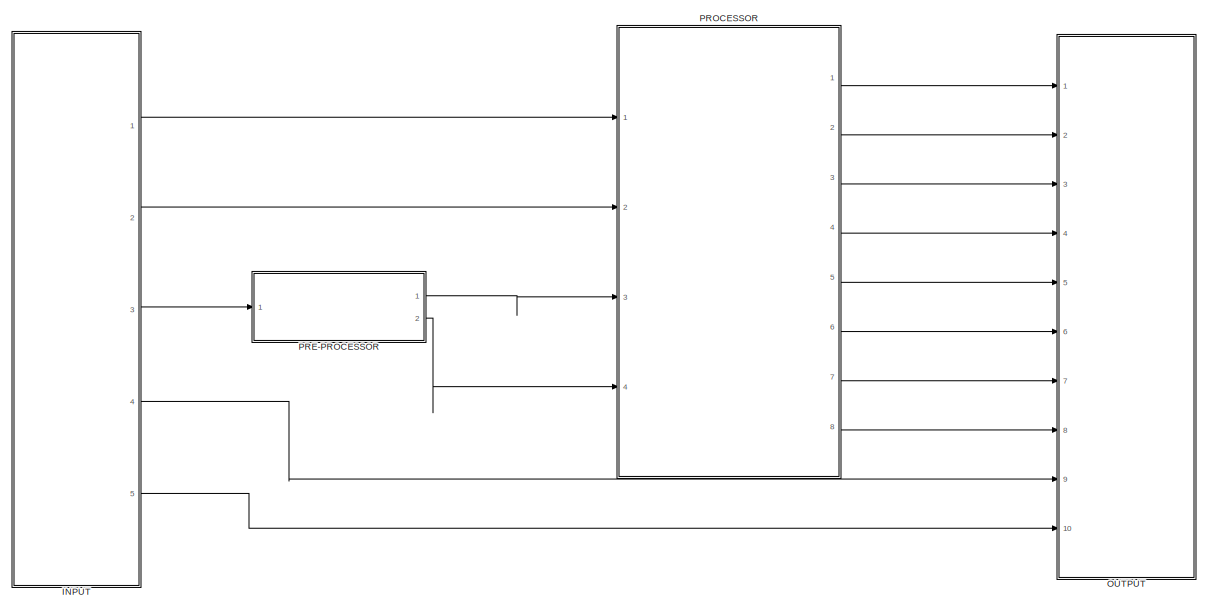
[diagram: root canvas - part 1/2, most of the canvas]
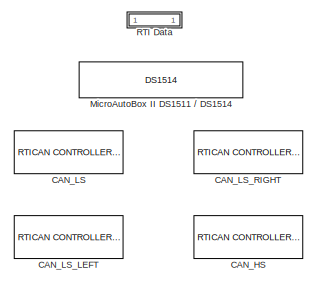
[diagram: root canvas - part 2/2, middle left region]
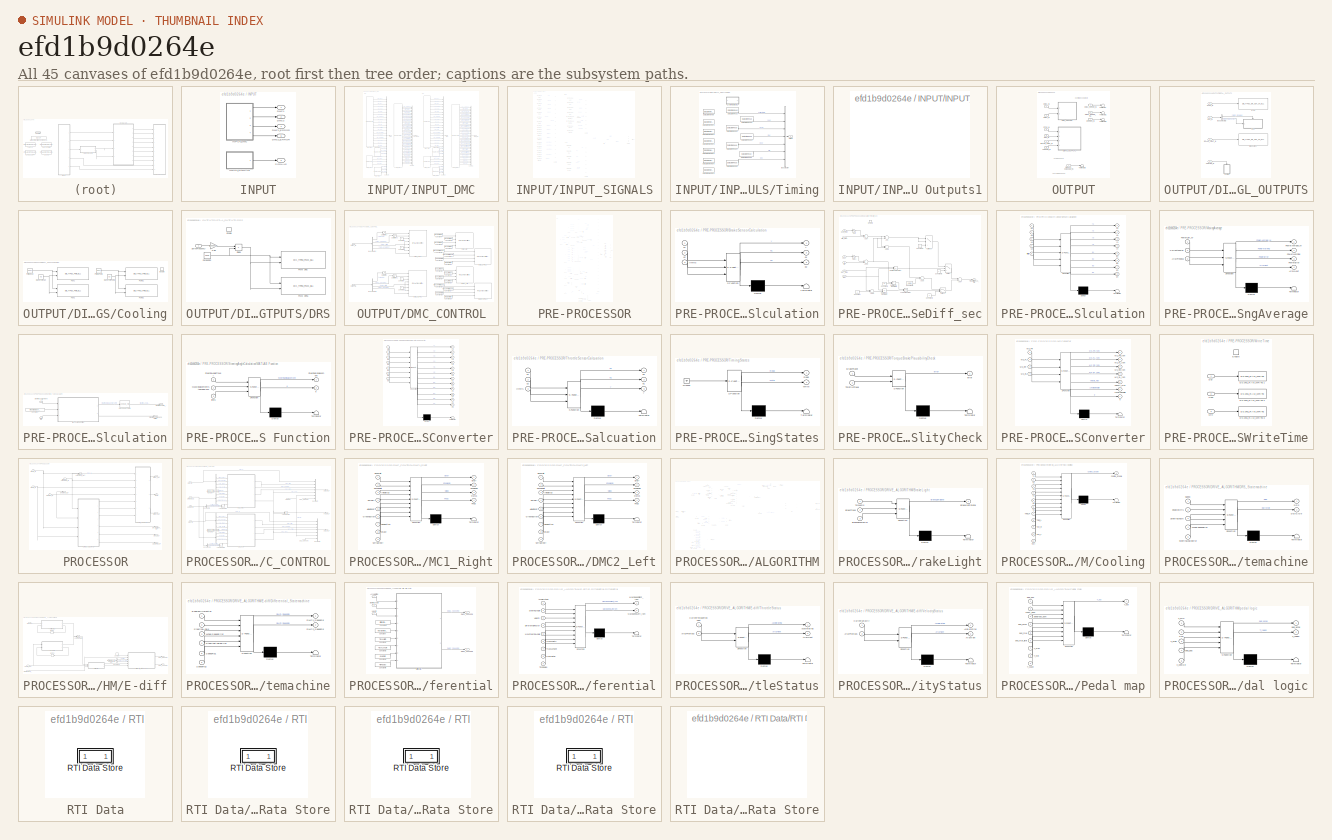
[diagram: thumbnail index - all 45 canvases of the model, root first then tree order]
MODEL slx_efd1b9d0264e
KIND model
CONFIG AbsTol = auto
CONFIG FixedStep = 0.001
CONFIG MaxStep = auto
CONFIG MinStep = auto
CONFIG PostLoadFcn = , if any(exist('dsrtsu_mdlpostloadfcn', 'file') == [2, 3, 6]), try dsrtsu_mdlpostloadfcn('Execute', bdroot); catch fprintf('Error in PostLoadFcn (dsrtsu_mdlpostloadfcn) for model "%s":\n %s\n', bdroot, lasterr); end, end, \n
CONFIG PreLoadFcn = LoadVar
CONFIG RelTol = 1e-3
CONFIG SampleTimeConstraint = Unconstrained
CONFIG Solver = ode1
CONFIG SolverMode = Auto
CONFIG SolverName = ode1
CONFIG StartTime = 0.0
CONFIG StopTime = Inf
BLOCK [Reference] CAN_HS  REF=rtican/RTICAN
CONTROLLER SETUP 
  AcceptanceMask = []
  ArbitrationField = []
  AttributesFormatString = Group Id: RTICAN4\n
  BoardNo = []
  BoardTypeNo = []
  ChannelNo = []
  DSProperties = struct('RTI',struct('Version',uint32(12),'BlockType',struct('isSLSource',uint8(0),'isSLSink',uint8(0),'isHWSource',uint8(0),'isHWSink',uint8(0),'isSetup',uint8(1),'isInline',uint8(1),'isNonInline',uint8(0),'isInterrupt',uint8(0),'isChannelwise',uint8(0)),'IOBoardType','RTICAN','UnitType','NON_MESSAGE','Identifier','MASTER','DialogType','ML','BlockSet','RTICAN','SlaveProcessor','CAN'))  <repeated x4 — deduplicated; at blocks: CAN_HS, CAN_LS, CAN_LS_LEFT, CAN_LS_RIGHT>
  DialogFcn = []
  MS_Struct = []
  Parameters = []
  Ports = []
  RTIBlockInterface = struct('InputPortsWidth',int32(0),'InputPortsActive',0,'OutputPortsWidth',int32(0),'OutputPortsActive',0,'DialogFcn','rtican_master_setup_gui','BlockDisplay',{{['CAN CONTROLLER\n SETUP'],'center'}},'IconTransparency','on','InitLevel',3,'IWork',{{{'',uint32(2)}}},'BlockName',struct('Token',{{'CAN_TYPE','_SETUP_M','_C'}},'BlockParam',{{'BoardTypeNo','BoardNo','ChannelNo'}}),'ParameterTunableNames',{...<+4ch>  <repeated x4 — deduplicated; at blocks: CAN_HS, CAN_LS, CAN_LS_LEFT, CAN_LS_RIGHT>
  RTIBlockParaDefault = struct('BoardTypeNo',4302,'BoardNo',1,'ChannelNo',1,'AcceptanceMask',0,'ArbitrationField',0,'Parameters',struct('Config',struct('Baudrate',500,'SampleMode',1,'UsedParamSet',1,'validSettings',1,'isBTRvalues',0,'Advanced',struct('Frequency',16000000,'BTR0',64,'BTR1',28,'Settings',struct('SMPL',0,'BRP',0,'NBT',16,'TSEG1',12,'TSEG2',1,'SJW',1,'SP',87))),'configType',1,'Options',struct('DataFileSelecte...<+2612ch>  <repeated x4 — deduplicated; at blocks: CAN_HS, CAN_LS, CAN_LS_LEFT, CAN_LS_RIGHT>
  RTIBlockParameters = struct('BoardTypeNo',{{1,'OFF',[]}},'BoardNo',{{2,'ON',[1 16]}},'ChannelNo',{{2,'ON',[1 2]}},'AcceptanceMask',{{0,'OFF',[]}},'ArbitrationField',{{0,'OFF',[]}},'Parameters',{{struct('Config',struct('Baudrate',1000,'SampleMode',1,'UsedParamSet',1,'validSettings',1,'isBTRvalues',0,'Advanced',struct('Baudrate',{500,500,500},'Frequency',{24000000,36000000,64000000},'Settings',{struct('SMPL',0,'BRP',0,'...<+3228ch>
  RTISFcnParameters = struct('SFcnRTICANSettings','struct','SFcnRTICCPSettings','struct','SFcnRTIXCPSettings','struct','AcceptanceMask','int32','ArbitrationField','int32','TLCFileName','char')
  Reserved1 = []
  Reserved2 = []
  Reserved3 = []
  Reserved4 = []
  Revision = []
  SFcnRTICANSettings = []
  SourceBlock = rtican/RTICAN\nCONTROLLER SETUP
  SourceType = RTI
  UnitName = []
  UnitValues = []
BLOCK [Reference] CAN_LS  REF=rtican/RTICAN
CONTROLLER SETUP 
  AcceptanceMask = []
  ArbitrationField = []
  AttributesFormatString = Group Id: RTICAN1\n
  BoardNo = []
  BoardTypeNo = []
  ChannelNo = []
  DialogFcn = []
  MS_Struct = []
  Parameters = []
  Ports = []
  RTIBlockParameters = struct('BoardTypeNo',{{1,'OFF',[]}},'BoardNo',{{1,'ON',[1 16]}},'ChannelNo',{{1,'ON',[1 2]}},'AcceptanceMask',{{0,'OFF',[]}},'ArbitrationField',{{0,'OFF',[]}},'Parameters',{{struct('Config',struct('Baudrate',500,'SampleMode',1,'UsedParamSet',1,'validSettings',1,'isBTRvalues',0,'Advanced',struct('Baudrate',{500,500,500},'Frequency',{24000000,36000000,64000000},'Settings',{struct('SMPL',0,'BRP',0,'N...<+3226ch>
  RTISFcnParameters = struct('SFcnRTICANSettings','struct','SFcnRTICCPSettings','struct','SFcnRTIXCPSettings','struct','AcceptanceMask','int32','ArbitrationField','int32','TLCFileName','char')
  Reserved1 = []
  Reserved2 = []
  Reserved3 = []
  Reserved4 = []
  Revision = []
  SFcnRTICANSettings = []
  SourceBlock = rtican/RTICAN\nCONTROLLER SETUP
  SourceType = RTI
  UnitName = []
  UnitValues = []
BLOCK [Reference] CAN_LS_LEFT  REF=rtican/RTICAN
CONTROLLER SETUP 
  AcceptanceMask = []
  ArbitrationField = []
  AttributesFormatString = Group Id: RTICAN3\n
  BoardNo = []
  BoardTypeNo = []
  ChannelNo = []
  DialogFcn = []
  MS_Struct = []
  Parameters = []
  Ports = []
  RTIBlockParameters = struct('BoardTypeNo',{{1,'OFF',[]}},'BoardNo',{{2,'ON',[1 16]}},'ChannelNo',{{1,'ON',[1 2]}},'AcceptanceMask',{{0,'OFF',[]}},'ArbitrationField',{{0,'OFF',[]}},'Parameters',{{struct('Config',struct('Baudrate',500,'SampleMode',1,'UsedParamSet',1,'validSettings',1,'isBTRvalues',0,'Advanced',struct('Baudrate',{500,500,500},'Frequency',{24000000,36000000,64000000},'Settings',{struct('SMPL',0,'BRP',0,'N...<+3226ch>
  RTISFcnParameters = struct('SFcnRTICANSettings','struct','SFcnRTICCPSettings','struct','SFcnRTIXCPSettings','struct','AcceptanceMask','int32','ArbitrationField','int32','TLCFileName','char')
  Reserved1 = []
  Reserved2 = []
  Reserved3 = []
  Reserved4 = []
  Revision = []
  SFcnRTICANSettings = []
  SourceBlock = rtican/RTICAN\nCONTROLLER SETUP
  SourceType = RTI
  UnitName = []
  UnitValues = []
BLOCK [Reference] CAN_LS_RIGHT  REF=rtican/RTICAN
CONTROLLER SETUP 
  AcceptanceMask = []
  ArbitrationField = []
  AttributesFormatString = Group Id: RTICAN2\n
  BoardNo = []
  BoardTypeNo = []
  ChannelNo = []
  DialogFcn = []
  MS_Struct = []
  Parameters = []
  Ports = []
  RTIBlockParameters = struct('BoardTypeNo',{{1,'OFF',[]}},'BoardNo',{{1,'ON',[1 16]}},'ChannelNo',{{2,'ON',[1 2]}},'AcceptanceMask',{{0,'OFF',[]}},'ArbitrationField',{{0,'OFF',[]}},'Parameters',{{struct('Config',struct('Baudrate',500,'SampleMode',1,'UsedParamSet',1,'validSettings',1,'isBTRvalues',0,'Advanced',struct('Baudrate',{500,500,500},'Frequency',{24000000,36000000,64000000},'Settings',{struct('SMPL',0,'BRP',0,'N...<+3226ch>
  RTISFcnParameters = struct('SFcnRTICANSettings','struct','SFcnRTICCPSettings','struct','SFcnRTIXCPSettings','struct','AcceptanceMask','int32','ArbitrationField','int32','TLCFileName','char')
  Reserved1 = []
  Reserved2 = []
  Reserved3 = []
  Reserved4 = []
  Revision = []
  SFcnRTICANSettings = []
  SourceBlock = rtican/RTICAN\nCONTROLLER SETUP
  SourceType = RTI
  UnitName = []
  UnitValues = []
BLOCK [SubSystem] INPUT
  Ports = [0, 5]
  RequestExecContextInheritance = off
BLOCK [Outport] INPUT/DMC1
  IconDisplay = Port number
BLOCK [Outport] INPUT/DMC1_ERROR
  IconDisplay = Port number
  Port = 4
BLOCK [Outport] INPUT/DMC2
  IconDisplay = Port number
  Port = 2
BLOCK [Outport] INPUT/DMC2_ERROR
  IconDisplay = Port number
  Port = 5
BLOCK [SubSystem] INPUT/INPUT_DMC
  Ports = [0, 4]
  RequestExecContextInheritance = off
BLOCK [BusCreator] INPUT/INPUT_DMC/Bus Creator
  DisplayOption = bar
  Inputs = 38
  Ports = [38, 1]
BLOCK [BusCreator] INPUT/INPUT_DMC/Bus Creator1
  DisplayOption = bar
  Inputs = 38
  Ports = [38, 1]
BLOCK [BusCreator] INPUT/INPUT_DMC/Bus Creator2
  DisplayOption = bar
  Inputs = 29
  Ports = [29, 1]
BLOCK [BusCreator] INPUT/INPUT_DMC/Bus Creator4
  DisplayOption = bar
  Inputs = 29
  Ports = [29, 1]
BLOCK [Outport] INPUT/INPUT_DMC/DMC1
  IconDisplay = Port number
BLOCK [Outport] INPUT/INPUT_DMC/DMC1_ERROR
  IconDisplay = Port number
  Port = 3
BLOCK [Outport] INPUT/INPUT_DMC/DMC2
  IconDisplay = Port number
  Port = 2
BLOCK [Reference] INPUT/INPUT_DMC/DMC2_ACTV  REF=rtican/RTICAN
Receive (RX) 
  AttributesFormatString = Group Id: RTICAN3\n
  BoardNo = []
  BoardTypeNo = []
  ChannelNo = []
  DSProperties = struct('RTI',struct('Version',uint32(5),'BlockType',struct('isSLSource',uint8(1),'isSLSink',uint8(1),'isHWSource',uint8(0),'isHWSink',uint8(0),'isSetup',uint8(0),'isInline',uint8(1),'isNonInline',uint8(0),'isInterrupt',uint8(0),'isChannelwise',uint8(0)),'IOBoardType','RTICAN','UnitType','MESSAGE','Identifier','RX','DialogType','MSVC','BlockSet','RTICAN','SlaveProcessor','CAN'))  <repeated x15 — deduplicated; at blocks: DMC2_ACTV, DMC2_ERR1, DMC2_TEMP, DMC2_TRQS, DMC2_TRQS2, DMC_ACTV, DMC_ERR, DMC_TEMP, DMC_TRQS1, DMC_TRQS2, EM_A, EM_V1, EM_W, YRS_CTRL, YRS_CTRL2>
  DialogFcn = []
  Msg_Struct = []
  Parameters = []
  Ports = [0, 4]
  RTIBlockInterface = struct('OutputPortsWidth',int32([1 1 1 1]),'OutputPortsActive',[1 1 1 1],'OutputPortsName',{{'DMC_MechPwr','DMC_AcCurrAct','DMC_DcCurrAct','DMC_DcVltAct'}},'OutputPortsDataType',{{'SS_DOUBLE','SS_DOUBLE','SS_DOUBLE','SS_DOUBLE'}},'OutputPortsLabel',{{'DMC_MechPwr','DMC_AcCurrAct','DMC_DcCurrAct','DMC_DcVltAct'}},'OutputPortsLabelMode','ON','InputPortsWidth',int32(0),'InputPortsActive',0,'DialogFcn...<+244ch>
  RTIBlockParaDefault = struct('BoardTypeNo',4302,'BoardNo',1,'ChannelNo',1,'Parameters',struct('DataFileSupport',struct('DataFileSelectedMaster',0,'DataFileSelectedLocal',0,'DataFileName','','DataFileDate','','SelectedFile',['<no file selected>']),'Options',struct('StatusSelected',1,'TimeSelected',1,'DeltaTimeSelected',1,'BytePortSelected',0,'MessageLengthSelected',0,'TriggerPort',struct('Selected',0,'TriggerType','risi...<+1681ch>  <repeated x15 — deduplicated; at blocks: DMC2_ACTV, DMC2_ERR1, DMC2_TEMP, DMC2_TRQS, DMC2_TRQS2, DMC_ACTV, DMC_ERR, DMC_TEMP, DMC_TRQS1, DMC_TRQS2, EM_A, EM_V1, EM_W, YRS_CTRL, YRS_CTRL2>
  RTIBlockParameters = struct('BoardTypeNo',{{1,'OFF',[]}},'BoardNo',{{2,'ON',[1 16]}},'ChannelNo',{{1,'ON',[1 2]}},'Parameters',{{struct('DataFileSupport',struct('DataFileSelectedMaster',1,'DataFileSelectedLocal',0,'DataFileName','<path>|','DataFileDate',{{{['14-dec-2011 16:00:26']}}},'SelectedFile',['<no file selected>']),'Options...<+2543ch>
  RTISFcnParameters = struct('SFcnRTICANMessage','struct','TLCFileName','char')
  Reserved1 = []
  Reserved2 = []
  Reserved3 = []
  Reserved4 = []
  Revision = []
  SfcnMessage = []
  SourceBlock = rtican/RTICAN\nReceive (RX)
  SourceType = RTI
  UnitName = []
  UnitValues = []
BLOCK [Outport] INPUT/INPUT_DMC/DMC2_ERR
  IconDisplay = Port number
  Port = 4
BLOCK [Reference] INPUT/INPUT_DMC/DMC2_ERR1  REF=rtican/RTICAN
Receive (RX) 
  AttributesFormatString = Group Id: RTICAN3\n
  BoardNo = []
  BoardTypeNo = []
  ChannelNo = []
  DialogFcn = []
  Msg_Struct = []
  Parameters = []
  Ports = [0, 38]
  RTIBlockInterface = struct('OutputPortsWidth',int32([1 1 1 1 1 1 1 1 1 1 1 1 1 1 1 1 1 1 1 1 1 1 1 1 1 1 1 1 1 1 1 1 1 1 1 1 1 1]),'OutputPortsActive',[1 1 1 1 1 1 1 1 1 1 1 1 1 1 1 1 1 1 1 1 1 1 1 1 1 1 1 1 1 1 1 1 1 1 1 1 1 1],'OutputPortsName',{{'DMC_I_SystemCheck','DMC_I_ExtAw2','DMC_I_ExtAw1','DMC_I_OscLim_Active','DMC_W_DriverSD','DMC_W_PowerMismatch','DMC_W_SpeedSensor','DMC_W_HvUndervoltage','DMC_W_ModMaxLim'...<+2083ch>
  RTIBlockParameters = struct('BoardTypeNo',{{1,'OFF',[]}},'BoardNo',{{2,'ON',[1 16]}},'ChannelNo',{{1,'ON',[1 2]}},'Parameters',{{struct('DataFileSupport',struct('DataFileSelectedMaster',1,'DataFileSelectedLocal',0,'DataFileName','<path>|','DataFileDate',{{{['14-dec-2011 16:00:26']}}},'SelectedFile',['<no file selected>']),'Options...<+9154ch>
  RTISFcnParameters = struct('SFcnRTICANMessage','struct','TLCFileName','char')
  Reserved1 = []
  Reserved2 = []
  Reserved3 = []
  Reserved4 = []
  Revision = []
  SfcnMessage = []
  SourceBlock = rtican/RTICAN\nReceive (RX)
  SourceType = RTI
  UnitName = []
  UnitValues = []
BLOCK [Reference] INPUT/INPUT_DMC/DMC2_TEMP  REF=rtican/RTICAN
Receive (RX) 
  AttributesFormatString = Group Id: RTICAN3\n
  BoardNo = []
  BoardTypeNo = []
  ChannelNo = []
  DialogFcn = []
  Msg_Struct = []
  Parameters = []
  Ports = [0, 3]
  RTIBlockInterface = struct('OutputPortsWidth',int32([1 1 1]),'OutputPortsActive',[1 1 1],'OutputPortsName',{{'DMC_TempSys','DMC_TempMot','DMC_TempInv'}},'OutputPortsDataType',{{'SS_DOUBLE','SS_DOUBLE','SS_DOUBLE'}},'OutputPortsLabel',{{'DMC_TempSys','DMC_TempMot','DMC_TempInv'}},'OutputPortsLabelMode','ON','InputPortsWidth',int32(0),'InputPortsActive',0,'DialogFcn','rtican_message_interface_gui','BlockDisplay',{{'','...<+190ch>
  RTIBlockParameters = struct('BoardTypeNo',{{1,'OFF',[]}},'BoardNo',{{2,'ON',[1 16]}},'ChannelNo',{{1,'ON',[1 2]}},'Parameters',{{struct('DataFileSupport',struct('DataFileSelectedMaster',1,'DataFileSelectedLocal',0,'DataFileName','<path>|','DataFileDate',{{{['14-dec-2011 16:00:26']}}},'SelectedFile',['<no file selected>']),'Options...<+2324ch>
  RTISFcnParameters = struct('SFcnRTICANMessage','struct','TLCFileName','char')
  Reserved1 = []
  Reserved2 = []
  Reserved3 = []
  Reserved4 = []
  Revision = []
  SfcnMessage = []
  SourceBlock = rtican/RTICAN\nReceive (RX)
  SourceType = RTI
  UnitName = []
  UnitValues = []
BLOCK [Reference] INPUT/INPUT_DMC/DMC2_TRQS  REF=rtican/RTICAN
Receive (RX) 
  AttributesFormatString = Group Id: RTICAN3\n
  BoardNo = []
  BoardTypeNo = []
  ChannelNo = []
  DialogFcn = []
  Msg_Struct = []
  Parameters = []
  Ports = [0, 19]
  RTIBlockInterface = struct('OutputPortsWidth',int32([1 1 1 1 1 1 1 1 1 1 1 1 1 1 1 1 1 1 1]),'OutputPortsActive',[1 1 1 1 1 1 1 1 1 1 1 1 1 1 1 1 1 1 1],'OutputPortsName',{{'DMC_SpdAct','DMC_TrqAct','DMC_TrqAvl','DMC_ModelLim','DMC_PowLim','DMC_TrqLim','DMC_IacLim','DMC_TempDmcLim','DMC_SpdLim','DMC_VLim','DMC_CLim','DMC_TrqLimitation','DMC_GenErr','DMC_SensorWarning','DMC_SlewrateLim','DMC_TempMotorLim','DMC_Running...<+901ch>
  RTIBlockParameters = struct('BoardTypeNo',{{1,'OFF',[]}},'BoardNo',{{2,'ON',[1 16]}},'ChannelNo',{{1,'ON',[1 2]}},'Parameters',{{struct('DataFileSupport',struct('DataFileSelectedMaster',1,'DataFileSelectedLocal',0,'DataFileName','<path>|','DataFileDate',{{{['14-dec-2011 16:00:26']}}},'SelectedFile',['<no file selected>']),'Options...<+4969ch>
  RTISFcnParameters = struct('SFcnRTICANMessage','struct','TLCFileName','char')
  Reserved1 = []
  Reserved2 = []
  Reserved3 = []
  Reserved4 = []
  Revision = []
  SfcnMessage = []
  SourceBlock = rtican/RTICAN\nReceive (RX)
  SourceType = RTI
  UnitName = []
  UnitValues = []
BLOCK [Reference] INPUT/INPUT_DMC/DMC2_TRQS2  REF=rtican/RTICAN
Receive (RX) 
  AttributesFormatString = Group Id: RTICAN1\n
  BoardNo = []
  BoardTypeNo = []
  ChannelNo = []
  DialogFcn = []
  Msg_Struct = []
  Parameters = []
  Ports = [0, 3]
  RTIBlockInterface = struct('OutputPortsWidth',int32([1 1 1]),'OutputPortsActive',[1 1 1],'OutputPortsName',{{'DMC_ActiveLimit','DMC_TrqMin','DMC_TrqMax'}},'OutputPortsDataType',{{'SS_DOUBLE','SS_DOUBLE','SS_DOUBLE'}},'OutputPortsLabel',{{'DMC_ActiveLimit','DMC_TrqMin','DMC_TrqMax'}},'OutputPortsLabelMode','ON','InputPortsWidth',int32(0),'InputPortsActive',0,'DialogFcn','rtican_message_interface_gui','BlockDisplay',{{...<+194ch>
  RTIBlockParameters = struct('BoardTypeNo',{{1,'OFF',[]}},'BoardNo',{{1,'ON',[1 16]}},'ChannelNo',{{1,'ON',[1 2]}},'Parameters',{{struct('DataFileSupport',struct('DataFileSelectedMaster',1,'DataFileSelectedLocal',0,'DataFileName','<path>|','DataFileDate',{{{['14-dec-2011 16:00:26']}}},'SelectedFile',['<no file selected>']),'Options...<+2343ch>
  RTISFcnParameters = struct('SFcnRTICANMessage','struct','TLCFileName','char')
  Reserved1 = []
  Reserved2 = []
  Reserved3 = []
  Reserved4 = []
  Revision = []
  SfcnMessage = []
  SourceBlock = rtican/RTICAN\nReceive (RX)
  SourceType = RTI
  UnitName = []
  UnitValues = []
BLOCK [Reference] INPUT/INPUT_DMC/DMC_ACTV  REF=rtican/RTICAN
Receive (RX) 
  AttributesFormatString = Group Id: RTICAN2\n
  BoardNo = []
  BoardTypeNo = []
  ChannelNo = []
  DialogFcn = []
  Msg_Struct = []
  Parameters = []
  Ports = [0, 4]
  RTIBlockInterface = struct('OutputPortsWidth',int32([1 1 1 1]),'OutputPortsActive',[1 1 1 1],'OutputPortsName',{{'DMC_MechPwr','DMC_AcCurrAct','DMC_DcCurrAct','DMC_DcVltAct'}},'OutputPortsDataType',{{'SS_DOUBLE','SS_DOUBLE','SS_DOUBLE','SS_DOUBLE'}},'OutputPortsLabel',{{'DMC_MechPwr','DMC_AcCurrAct','DMC_DcCurrAct','DMC_DcVltAct'}},'OutputPortsLabelMode','ON','InputPortsWidth',int32(0),'InputPortsActive',0,'DialogFcn...<+243ch>
  RTIBlockParameters = struct('BoardTypeNo',{{1,'OFF',[]}},'BoardNo',{{1,'ON',[1 16]}},'ChannelNo',{{2,'ON',[1 2]}},'Parameters',{{struct('DataFileSupport',struct('DataFileSelectedMaster',1,'DataFileSelectedLocal',1,'DataFileName','<path>|','DataFileDate',{{{['14-dec-2011 16:00:26']}}},'SelectedFile','..\brusa_02-01-02_rev02-2\docum...<+2582ch>
  RTISFcnParameters = struct('SFcnRTICANMessage','struct','TLCFileName','char')
  Reserved1 = []
  Reserved2 = []
  Reserved3 = []
  Reserved4 = []
  Revision = []
  SfcnMessage = []
  SourceBlock = rtican/RTICAN\nReceive (RX)
  SourceType = RTI
  UnitName = []
  UnitValues = []
BLOCK [Reference] INPUT/INPUT_DMC/DMC_ERR  REF=rtican/RTICAN
Receive (RX) 
  AttributesFormatString = Group Id: RTICAN2\n
  BoardNo = []
  BoardTypeNo = []
  ChannelNo = []
  DialogFcn = []
  Msg_Struct = []
  Parameters = []
  Ports = [0, 38]
  RTIBlockInterface = struct('OutputPortsWidth',int32([1 1 1 1 1 1 1 1 1 1 1 1 1 1 1 1 1 1 1 1 1 1 1 1 1 1 1 1 1 1 1 1 1 1 1 1 1 1]),'OutputPortsActive',[1 1 1 1 1 1 1 1 1 1 1 1 1 1 1 1 1 1 1 1 1 1 1 1 1 1 1 1 1 1 1 1 1 1 1 1 1 1],'OutputPortsName',{{'DMC_I_SystemCheck','DMC_I_ExtAw2','DMC_I_ExtAw1','DMC_I_OscLim_Active','DMC_W_DriverSD','DMC_W_PowerMismatch','DMC_W_SpeedSensor','DMC_W_HvUndervoltage','DMC_W_ModMaxLim'...<+2082ch>
  RTIBlockParameters = struct('BoardTypeNo',{{1,'OFF',[]}},'BoardNo',{{1,'ON',[1 16]}},'ChannelNo',{{2,'ON',[1 2]}},'Parameters',{{struct('DataFileSupport',struct('DataFileSelectedMaster',1,'DataFileSelectedLocal',1,'DataFileName','<path>|','DataFileDate',{{{['14-dec-2011 16:00:26']}}},'SelectedFile','..\brusa_02-01-02_rev02-2\docum...<+9193ch>
  RTISFcnParameters = struct('SFcnRTICANMessage','struct','TLCFileName','char')
  Reserved1 = []
  Reserved2 = []
  Reserved3 = []
  Reserved4 = []
  Revision = []
  SfcnMessage = []
  SourceBlock = rtican/RTICAN\nReceive (RX)
  SourceType = RTI
  UnitName = []
  UnitValues = []
BLOCK [Reference] INPUT/INPUT_DMC/DMC_TEMP  REF=rtican/RTICAN
Receive (RX) 
  AttributesFormatString = Group Id: RTICAN2\n
  BoardNo = []
  BoardTypeNo = []
  ChannelNo = []
  DialogFcn = []
  Msg_Struct = []
  Parameters = []
  Ports = [0, 3]
  RTIBlockInterface = struct('OutputPortsWidth',int32([1 1 1]),'OutputPortsActive',[1 1 1],'OutputPortsName',{{'DMC_TempSys','DMC_TempMot','DMC_TempInv'}},'OutputPortsDataType',{{'SS_DOUBLE','SS_DOUBLE','SS_DOUBLE'}},'OutputPortsLabel',{{'DMC_TempSys','DMC_TempMot','DMC_TempInv'}},'OutputPortsLabelMode','ON','InputPortsWidth',int32(0),'InputPortsActive',0,'DialogFcn','rtican_message_interface_gui','BlockDisplay',{{'','...<+189ch>
  RTIBlockParameters = struct('BoardTypeNo',{{1,'OFF',[]}},'BoardNo',{{1,'ON',[1 16]}},'ChannelNo',{{2,'ON',[1 2]}},'Parameters',{{struct('DataFileSupport',struct('DataFileSelectedMaster',1,'DataFileSelectedLocal',1,'DataFileName','<path>|','DataFileDate',{{{['14-dec-2011 16:00:26']}}},'SelectedFile','..\brusa_02-01-02_rev02-2\docum...<+2363ch>
  RTISFcnParameters = struct('SFcnRTICANMessage','struct','TLCFileName','char')
  Reserved1 = []
  Reserved2 = []
  Reserved3 = []
  Reserved4 = []
  Revision = []
  SfcnMessage = []
  SourceBlock = rtican/RTICAN\nReceive (RX)
  SourceType = RTI
  UnitName = []
  UnitValues = []
BLOCK [Reference] INPUT/INPUT_DMC/DMC_TRQS1  REF=rtican/RTICAN
Receive (RX) 
  AttributesFormatString = Group Id: RTICAN2\n
  BoardNo = []
  BoardTypeNo = []
  ChannelNo = []
  DialogFcn = []
  Msg_Struct = []
  Parameters = []
  Ports = [0, 19]
  RTIBlockInterface = struct('OutputPortsWidth',int32([1 1 1 1 1 1 1 1 1 1 1 1 1 1 1 1 1 1 1]),'OutputPortsActive',[1 1 1 1 1 1 1 1 1 1 1 1 1 1 1 1 1 1 1],'OutputPortsName',{{'DMC_SpdAct','DMC_TrqAct','DMC_TrqAvl','DMC_ModelLim','DMC_PowLim','DMC_TrqLim','DMC_IacLim','DMC_TempDmcLim','DMC_SpdLim','DMC_VLim','DMC_CLim','DMC_TrqLimitation','DMC_GenErr','DMC_SensorWarning','DMC_SlewrateLim','DMC_TempMotorLim','DMC_Running...<+900ch>
  RTIBlockParameters = struct('BoardTypeNo',{{1,'OFF',[]}},'BoardNo',{{1,'ON',[1 16]}},'ChannelNo',{{2,'ON',[1 2]}},'Parameters',{{struct('DataFileSupport',struct('DataFileSelectedMaster',1,'DataFileSelectedLocal',1,'DataFileName','<path>|','DataFileDate',{{{['14-dec-2011 16:00:26']}}},'SelectedFile','..\brusa_02-01-02_rev02-2\docum...<+5008ch>
  RTISFcnParameters = struct('SFcnRTICANMessage','struct','TLCFileName','char')
  Reserved1 = []
  Reserved2 = []
  Reserved3 = []
  Reserved4 = []
  Revision = []
  SfcnMessage = []
  SourceBlock = rtican/RTICAN\nReceive (RX)
  SourceType = RTI
  UnitName = []
  UnitValues = []
BLOCK [Reference] INPUT/INPUT_DMC/DMC_TRQS2  REF=rtican/RTICAN
Receive (RX) 
  AttributesFormatString = Group Id: RTICAN2\n
  BoardNo = []
  BoardTypeNo = []
  ChannelNo = []
  DialogFcn = []
  Msg_Struct = []
  Parameters = []
  Ports = [0, 3]
  RTIBlockInterface = struct('OutputPortsWidth',int32([1 1 1]),'OutputPortsActive',[1 1 1],'OutputPortsName',{{'DMC_ActiveLimit','DMC_TrqMin','DMC_TrqMax'}},'OutputPortsDataType',{{'SS_DOUBLE','SS_DOUBLE','SS_DOUBLE'}},'OutputPortsLabel',{{'DMC_ActiveLimit','DMC_TrqMin','DMC_TrqMax'}},'OutputPortsLabelMode','ON','InputPortsWidth',int32(0),'InputPortsActive',0,'DialogFcn','rtican_message_interface_gui','BlockDisplay',{{...<+194ch>
  RTIBlockParameters = struct('BoardTypeNo',{{1,'OFF',[]}},'BoardNo',{{1,'ON',[1 16]}},'ChannelNo',{{2,'ON',[1 2]}},'Parameters',{{struct('DataFileSupport',struct('DataFileSelectedMaster',1,'DataFileSelectedLocal',1,'DataFileName','<path>|','DataFileDate',{{{['14-dec-2011 16:00:26']}}},'SelectedFile','..\brusa_02-01-02_rev02-2\docum...<+2382ch>
  RTISFcnParameters = struct('SFcnRTICANMessage','struct','TLCFileName','char')
  Reserved1 = []
  Reserved2 = []
  Reserved3 = []
  Reserved4 = []
  Revision = []
  SfcnMessage = []
  SourceBlock = rtican/RTICAN\nReceive (RX)
  SourceType = RTI
  UnitName = []
  UnitValues = []
BLOCK [SubSystem] INPUT/INPUT_SIGNALS
  Ports = [0, 1]
  RequestExecContextInheritance = off
BLOCK [Reference] INPUT/INPUT_SIGNALS/BrakeSensor1  REF=rti1401lib_adc_type4/ADC_TYPE4_BL1
  DSProperties = struct('RTI',struct('Version',uint32(2),'BlockType',struct('isSLSource',uint8(1),'isSLSink',uint8(1),'isHWSource',uint8(0),'isHWSink',uint8(1),'isSetup',uint8(0),'isInline',uint8(1),'isNonInline',uint8(0),'isInterrupt',uint8(0),'isChannelwise',uint8(1)),'IOBoardType',{{'DS1401','STD','ADCT4'}},'UnitType','ADC','Identifier','ADC','DialogType','ML','BlockSet','NONE','SlaveProcessor','NONE'))  <repeated x16 — deduplicated; at blocks: BrakeSensor1, BrakeSensor2, LinearSensor1, LinearSensor2, LinearSensor3, LinearSensor4, SteeringAngle, TSensor1, TSensor2, TSensor3, TSensor4, TSensor5, TSensor6, ThrottleSensor1, ThrottleSensor2, VSense>
  Ports = [0, 1]
  RTIBlockInterface = struct('InputPortsActive',0,'InputPortsWidth',int32(1),'InputPortsDataType',{{'SS_BOOLEAN'}},'InputPortsName',{{'Continue'}},'OutputPortsActive',[1 0],'OutputPortsWidth',int32([1 1]),'OutputPortsDataType',{{'SS_DOUBLE','SS_UINT8'}},'OutputPortsName',{{'ADC','Status'}},'DialogFcn','rti1401stdadct4adcgui','SampleTime',{{-1}},'InitLevel',3,'IconTransparency','on','BlockDisplay',{{['ADC TP4\nModule: 1...<+74ch>  <repeated x9 — deduplicated; at blocks: BrakeSensor1, BrakeSensor2, LinearSensor1, LinearSensor2, LinearSensor3, LinearSensor4, SteeringAngle, ThrottleSensor1, ThrottleSensor2>
  RTIBlockParaDefault = struct('ADCSWStartDisable',0,'ModuleNo',1,'ChannelNo',1,'ConversionMode',1,'SampleMode',1,'TriggerSource',1,'EdgePolarity',1,'ConversionTriggerSource',2,'ConversionEdgePolarity',1,'ConversionPeriod',1e-06,'ConversionPeriodCheck',0,'BurstTriggerSource',1,'BurstEdgePolarity',1,'BurstSize',10,'BurstSizeCheck',0,'DataSetOffset',0,'DataSetOffsetCheck',0,'DataSetLength',1,'DataSetLengthCheck',0,'ReadMod...<+113ch>  <repeated x16 — deduplicated; at blocks: BrakeSensor1, BrakeSensor2, LinearSensor1, LinearSensor2, LinearSensor3, LinearSensor4, SteeringAngle, TSensor1, TSensor2, TSensor3, TSensor4, TSensor5, TSensor6, ThrottleSensor1, ThrottleSensor2, VSense>
  RTIBlockParameters = struct('ADCSWStartDisable',{{0,'OFF',[0 1]}},'ModuleNo',{{1,'OFF',[1 16]}},'ChannelNo',{{1,'OFF',[1 16]}},'ConversionMode',{{1,'OFF',[1 2]}},'SampleMode',{{1,'OFF',[1 2]}},'TriggerSource',{{1,'OFF',[1 5]}},'EdgePolarity',{{1,'OFF',[1 2]}},'ConversionTriggerSource',{{2,'OFF',[1 6]}},'ConversionEdgePolarity',{{1,'OFF',[1 2]}},'ConversionPeriod',{{'1e-06','OFF',[]}},'ConversionPeriodCheck',{{0,'OFF',...<+498ch>
  RTISFcnParameters = struct('ADCSWStartDisable','int32','ModuleNo','int32','ChannelNo','int16','ConversionMode','int16','SampleMode','int16','TriggerSource','int16','EdgePolarity','int16','ConversionTriggerSource','int16','ConversionEdgePolarity','int16','ConversionPeriod','double','BurstTriggerSource','int16','BurstEdgePolarity','int16','BurstSize','int16','DataSetOffset','int16','DataSetLength','int16','ReadMode','i...<+99ch>  <repeated x16 — deduplicated; at blocks: BrakeSensor1, BrakeSensor2, LinearSensor1, LinearSensor2, LinearSensor3, LinearSensor4, SteeringAngle, TSensor1, TSensor2, TSensor3, TSensor4, TSensor5, TSensor6, ThrottleSensor1, ThrottleSensor2, VSense>
  SourceBlock = rti1401lib_adc_type4/ADC_TYPE4_BL1
  SourceType = RTI
BLOCK [Reference] INPUT/INPUT_SIGNALS/BrakeSensor2  REF=rti1401lib_adc_type4/ADC_TYPE4_BL1
  Ports = [0, 1]
  RTIBlockParameters = struct('ADCSWStartDisable',{{0,'OFF',[0 1]}},'ModuleNo',{{1,'OFF',[1 16]}},'ChannelNo',{{2,'OFF',[1 16]}},'ConversionMode',{{1,'OFF',[1 2]}},'SampleMode',{{1,'OFF',[1 2]}},'TriggerSource',{{1,'OFF',[1 5]}},'EdgePolarity',{{1,'OFF',[1 2]}},'ConversionTriggerSource',{{2,'OFF',[1 6]}},'ConversionEdgePolarity',{{1,'OFF',[1 2]}},'ConversionPeriod',{{'1e-06','OFF',[]}},'ConversionPeriodCheck',{{0,'OFF',...<+498ch>
  SourceBlock = rti1401lib_adc_type4/ADC_TYPE4_BL1
  SourceType = RTI
BLOCK [BusCreator] INPUT/INPUT_SIGNALS/Bus Creator
  DisplayOption = bar
  Ports = [4, 1]
BLOCK [BusCreator] INPUT/INPUT_SIGNALS/Bus Creator1
  DisplayOption = bar
  Inputs = 8
  Ports = [8, 1]
BLOCK [BusCreator] INPUT/INPUT_SIGNALS/Bus Creator2
  DisplayOption = bar
  Inputs = 16
  Ports = [16, 1]
BLOCK [BusCreator] INPUT/INPUT_SIGNALS/Bus Creator4
  DisplayOption = bar
  Inputs = 7
  Ports = [7, 1]
BLOCK [Reference] INPUT/INPUT_SIGNALS/EM_A  REF=rtican/RTICAN
Receive (RX) 
  AttributesFormatString = Group Id: RTICAN4\n
  BoardNo = []
  BoardTypeNo = []
  ChannelNo = []
  DialogFcn = []
  Msg_Struct = []
  Parameters = []
  Ports = [0, 1]
  RTIBlockInterface = struct('OutputPortsWidth',int32(1),'OutputPortsActive',1,'OutputPortsName',{{'EM_A'}},'OutputPortsDataType',{{'SS_DOUBLE'}},'OutputPortsLabel',{{'EM_A'}},'OutputPortsLabelMode','ON','InputPortsWidth',int32(0),'InputPortsActive',0,'DialogFcn','rtican_message_interface_gui','BlockDisplay',{{'','center'}},'IconTransparency','on','ParameterTunableNames',{{}},'InitLevel',3,'BlockName',struct('Token',{{...<+79ch>
  RTIBlockParameters = struct('BoardTypeNo',{{1,'OFF',[]}},'BoardNo',{{2,'ON',[1 16]}},'ChannelNo',{{2,'ON',[1 2]}},'Parameters',{{struct('DataFileSupport',struct('DataFileSelectedMaster',1,'DataFileSelectedLocal',0,'DataFileName','<path>|','DataFileDate','','SelectedFile',['<no file selected>']),'Options',struct('StatusSelected',0,...<+1832ch>
  RTISFcnParameters = struct('SFcnRTICANMessage','struct','TLCFileName','char')
  Reserved1 = []
  Reserved2 = []
  Reserved3 = []
  Reserved4 = []
  Revision = []
  SfcnMessage = []
  SourceBlock = rtican/RTICAN\nReceive (RX)
  SourceType = RTI
  UnitName = []
  UnitValues = []
BLOCK [Reference] INPUT/INPUT_SIGNALS/EM_V1  REF=rtican/RTICAN
Receive (RX) 
  AttributesFormatString = Group Id: RTICAN4\n
  BoardNo = []
  BoardTypeNo = []
  ChannelNo = []
  DialogFcn = []
  Msg_Struct = []
  Parameters = []
  Ports = [0, 1]
  RTIBlockInterface = struct('OutputPortsWidth',int32(1),'OutputPortsActive',1,'OutputPortsName',{{'EM_V'}},'OutputPortsDataType',{{'SS_DOUBLE'}},'OutputPortsLabel',{{'EM_V'}},'OutputPortsLabelMode','ON','InputPortsWidth',int32(0),'InputPortsActive',0,'DialogFcn','rtican_message_interface_gui','BlockDisplay',{{'','center'}},'IconTransparency','on','ParameterTunableNames',{{}},'InitLevel',3,'BlockName',struct('Token',{{...<+80ch>
  RTIBlockParameters = struct('BoardTypeNo',{{1,'OFF',[]}},'BoardNo',{{2,'ON',[1 16]}},'ChannelNo',{{2,'ON',[1 2]}},'Parameters',{{struct('DataFileSupport',struct('DataFileSelectedMaster',1,'DataFileSelectedLocal',0,'DataFileName','<path>|','DataFileDate','','SelectedFile',['<no file selected>']),'Options',struct('StatusSelected',0,...<+1833ch>
  RTISFcnParameters = struct('SFcnRTICANMessage','struct','TLCFileName','char')
  Reserved1 = []
  Reserved2 = []
  Reserved3 = []
  Reserved4 = []
  Revision = []
  SfcnMessage = []
  SourceBlock = rtican/RTICAN\nReceive (RX)
  SourceType = RTI
  UnitName = []
  UnitValues = []
BLOCK [Reference] INPUT/INPUT_SIGNALS/EM_W  REF=rtican/RTICAN
Receive (RX) 
  AttributesFormatString = Group Id: RTICAN4\n
  BoardNo = []
  BoardTypeNo = []
  ChannelNo = []
  DialogFcn = []
  Msg_Struct = []
  Parameters = []
  Ports = [0, 1]
  RTIBlockInterface = struct('OutputPortsWidth',int32(1),'OutputPortsActive',1,'OutputPortsName',{{'EM_W'}},'OutputPortsDataType',{{'SS_DOUBLE'}},'OutputPortsLabel',{{'EM_W'}},'OutputPortsLabelMode','ON','InputPortsWidth',int32(0),'InputPortsActive',0,'DialogFcn','rtican_message_interface_gui','BlockDisplay',{{'','center'}},'IconTransparency','on','ParameterTunableNames',{{}},'InitLevel',3,'BlockName',struct('Token',{{...<+79ch>
  RTIBlockParameters = struct('BoardTypeNo',{{1,'OFF',[]}},'BoardNo',{{2,'ON',[1 16]}},'ChannelNo',{{2,'ON',[1 2]}},'Parameters',{{struct('DataFileSupport',struct('DataFileSelectedMaster',1,'DataFileSelectedLocal',0,'DataFileName','<path>|','DataFileDate','','SelectedFile',['<no file selected>']),'Options',struct('StatusSelected',0,...<+1823ch>
  RTISFcnParameters = struct('SFcnRTICANMessage','struct','TLCFileName','char')
  Reserved1 = []
  Reserved2 = []
  Reserved3 = []
  Reserved4 = []
  Revision = []
  SfcnMessage = []
  SourceBlock = rtican/RTICAN\nReceive (RX)
  SourceType = RTI
  UnitName = []
  UnitValues = []
BLOCK [Reference] INPUT/INPUT_SIGNALS/FlowSensor1  REF=rti1401lib_dio_type3/DIO_TYPE3_F2D_BL1
  DSProperties = struct('RTI',struct('Version',uint32(2),'BlockType',struct('isSLSource',uint8(1),'isSLSink',uint8(0),'isHWSource',uint8(1),'isHWSink',uint8(0),'isSetup',uint8(0),'isInline',uint8(1),'isNonInline',uint8(0),'isInterrupt',uint8(0),'isChannelwise',uint8(1)),'IOBoardType',{{'DS1401','STD','DIOT3'}},'UnitType','PWM','Identifier','F2D','DialogType','ML','BlockSet','NONE','SlaveProcessor','NONE'))  <repeated x6 — deduplicated; at blocks: FlowSensor1, FlowSensor2, Hall_FL, Hall_FR, Hall_RL, Hall_RR>
  Ports = [0, 1]
  RTIBlockInterface = struct('OutputPortsWidth',int32(1),'OutputPortsActive',1,'OutputPortsName',{{'Frequency'}},'BlockDisplay',{{['DIO TP3 F2D\nModule: 1\nPort: 3\nChannel: 7'],'center'}},'IconTransparency','on','InitLevel',3,'DialogFcn','rti1401stddiot3f2dgui','BlockName',struct('Token',{{'DIO_TYPE3_F2D_BL1'}}))
  RTIBlockParaDefault = struct('ModuleNo',1,'PortNo',1,'ChannelNo',1,'FrequencyRange',1,'TLCFileName','rti1401dio_t3_f2d','EnableInterrupt',0,'TriggerEdgeType',1)
  RTIBlockParameters = struct('ModuleNo',{{1,'ON',[1 16]}},'PortNo',{{3,'OFF',[1 3]}},'ChannelNo',{{7,'ON',[1 8]}},'FrequencyRange',{{11,'OFF',[1 16]}},'TLCFileName',{{'rti1401dio_t3_f2d','OFF',[]}},'EnableInterrupt',{{0,'OFF',[0 1]}},'TriggerEdgeType',{{1,'OFF',[1 3]}})
  RTISFcnParameters = struct('ModuleNo','int32','PortNo','int16','ChannelNo','int16','FrequencyRange','int16','TLCFileName','char','EnableInterrupt','int16','TriggerEdgeType','int32')
  SourceBlock = rti1401lib_dio_type3/DIO_TYPE3_F2D_BL1
  SourceType = RTI
BLOCK [Reference] INPUT/INPUT_SIGNALS/FlowSensor2  REF=rti1401lib_dio_type3/DIO_TYPE3_F2D_BL1
  Ports = [0, 1]
  RTIBlockInterface = struct('OutputPortsWidth',int32(1),'OutputPortsActive',1,'OutputPortsName',{{'Frequency'}},'BlockDisplay',{{['DIO TP3 F2D\nModule: 1\nPort: 3\nChannel: 8'],'center'}},'IconTransparency','on','InitLevel',3,'DialogFcn','rti1401stddiot3f2dgui','BlockName',struct('Token',{{'DIO_TYPE3_F2D_BL1'}}))
  RTIBlockParaDefault = struct('ModuleNo',1,'PortNo',1,'ChannelNo',1,'FrequencyRange',1,'TLCFileName','rti1401dio_t3_f2d','EnableInterrupt',0,'TriggerEdgeType',1)
  RTIBlockParameters = struct('ModuleNo',{{1,'ON',[1 16]}},'PortNo',{{3,'OFF',[1 3]}},'ChannelNo',{{8,'ON',[1 8]}},'FrequencyRange',{{11,'OFF',[1 16]}},'TLCFileName',{{'rti1401dio_t3_f2d','OFF',[]}},'EnableInterrupt',{{0,'OFF',[0 1]}},'TriggerEdgeType',{{1,'OFF',[1 3]}})
  RTISFcnParameters = struct('ModuleNo','int32','PortNo','int16','ChannelNo','int16','FrequencyRange','int16','TLCFileName','char','EnableInterrupt','int16','TriggerEdgeType','int32')
  SourceBlock = rti1401lib_dio_type3/DIO_TYPE3_F2D_BL1
  SourceType = RTI
BLOCK [Reference] INPUT/INPUT_SIGNALS/GreenButton_Inv  REF=rti1401lib_dio_type3/DIO_TYPE3_BIT_IN_CH_BL1
  DSProperties = struct('RTI',struct('Version',uint32(2),'BlockType',struct('isSLSource',uint8(1),'isSLSink',uint8(0),'isHWSource',uint8(1),'isHWSink',uint8(0),'isSetup',uint8(0),'isInline',uint8(1),'isNonInline',uint8(0),'isInterrupt',uint8(0),'isChannelwise',uint8(1)),'IOBoardType',{{'DS1401','STD','DIOT3'}},'UnitType','BIT','Identifier','BITINCH','DialogType','ML','BlockSet','NONE','SlaveProcessor','NONE'))
  Ports = [0, 1]
  RTIBlockInterface = struct('OutputPortsWidth',int32(1),'OutputPortsDataType',{{'SS_BOOLEAN'}},'OutputPortsActive',1,'OutputPortsName',{{'Out'}},'BlockDisplay',{{['DIO TP3 BIT IN\n Channelwise\nModule: 1\nPort: 1\nChannel: 1'],'center'}},'IconTransparency','on','InitLevel',3,'DialogFcn','rti1401stddiot3bitinchgui','BlockName',struct('Token',{{'DIO_TYPE3_BIT_IN_CH_BL1'}}))
  RTIBlockParaDefault = struct('ModuleNo',1,'PortNo',1,'ChannelNo',1,'TLCFileName','rti1401dio_t3_bit_in_ch','EnableInterrupt',0,'TriggerEdgeType',1)
  RTIBlockParameters = struct('ModuleNo',{{1,'OFF',[1 16]}},'PortNo',{{1,'OFF',[1 3]}},'ChannelNo',{{1,'OFF',[1 16]}},'TLCFileName',{{'rti1401dio_t3_bit_in_ch','OFF',[]}},'EnableInterrupt',{{0,'OFF',[0 1]}},'TriggerEdgeType',{{1,'OFF',[1 3]}})
  RTISFcnParameters = struct('ModuleNo','int32','PortNo','int16','ChannelNo','int16','TLCFileName','char','EnableInterrupt','int16','TriggerEdgeType','int32')
  SourceBlock = rti1401lib_dio_type3/DIO_TYPE3_BIT_IN_CH_BL1
  SourceType = RTI
BLOCK [Reference] INPUT/INPUT_SIGNALS/Hall_FL  REF=rti1401lib_dio_type3/DIO_TYPE3_F2D_BL1
  Ports = [0, 1]
  RTIBlockInterface = struct('OutputPortsWidth',int32(1),'OutputPortsActive',1,'OutputPortsName',{{'Frequency'}},'BlockDisplay',{{['DIO TP3 F2D\nModule: 1\nPort: 2\nChannel: 8'],'center'}},'IconTransparency','on','InitLevel',3,'DialogFcn','rti1401stddiot3f2dgui','BlockName',struct('Token',{{'DIO_TYPE3_F2D_BL1'}}))
  RTIBlockParaDefault = struct('ModuleNo',1,'PortNo',1,'ChannelNo',1,'FrequencyRange',1,'TLCFileName','rti1401dio_t3_f2d','EnableInterrupt',0,'TriggerEdgeType',1)
  RTIBlockParameters = struct('ModuleNo',{{1,'ON',[1 16]}},'PortNo',{{2,'OFF',[1 3]}},'ChannelNo',{{8,'ON',[1 16]}},'FrequencyRange',{{1,'OFF',[1 16]}},'TLCFileName',{{'rti1401dio_t3_f2d','OFF',[]}},'EnableInterrupt',{{0,'OFF',[0 1]}},'TriggerEdgeType',{{1,'OFF',[1 3]}})
  RTISFcnParameters = struct('ModuleNo','int32','PortNo','int16','ChannelNo','int16','FrequencyRange','int16','TLCFileName','char','EnableInterrupt','int16','TriggerEdgeType','int32')
  SourceBlock = rti1401lib_dio_type3/DIO_TYPE3_F2D_BL1
  SourceType = RTI
BLOCK [Reference] INPUT/INPUT_SIGNALS/Hall_FR  REF=rti1401lib_dio_type3/DIO_TYPE3_F2D_BL1
  Ports = [0, 1]
  RTIBlockInterface = struct('OutputPortsWidth',int32(1),'OutputPortsActive',1,'OutputPortsName',{{'Frequency'}},'BlockDisplay',{{['DIO TP3 F2D\nModule: 1\nPort: 2\nChannel: 7'],'center'}},'IconTransparency','on','InitLevel',3,'DialogFcn','rti1401stddiot3f2dgui','BlockName',struct('Token',{{'DIO_TYPE3_F2D_BL1'}}))
  RTIBlockParaDefault = struct('ModuleNo',1,'PortNo',1,'ChannelNo',1,'FrequencyRange',1,'TLCFileName','rti1401dio_t3_f2d','EnableInterrupt',0,'TriggerEdgeType',1)
  RTIBlockParameters = struct('ModuleNo',{{1,'ON',[1 16]}},'PortNo',{{2,'OFF',[1 3]}},'ChannelNo',{{7,'ON',[1 16]}},'FrequencyRange',{{1,'OFF',[1 16]}},'TLCFileName',{{'rti1401dio_t3_f2d','OFF',[]}},'EnableInterrupt',{{0,'OFF',[0 1]}},'TriggerEdgeType',{{1,'OFF',[1 3]}})
  RTISFcnParameters = struct('ModuleNo','int32','PortNo','int16','ChannelNo','int16','FrequencyRange','int16','TLCFileName','char','EnableInterrupt','int16','TriggerEdgeType','int32')
  SourceBlock = rti1401lib_dio_type3/DIO_TYPE3_F2D_BL1
  SourceType = RTI
BLOCK [Reference] INPUT/INPUT_SIGNALS/Hall_RL  REF=rti1401lib_dio_type3/DIO_TYPE3_F2D_BL1
  Ports = [0, 1]
  RTIBlockInterface = struct('OutputPortsWidth',int32(1),'OutputPortsActive',1,'OutputPortsName',{{'Frequency'}},'BlockDisplay',{{['DIO TP3 F2D\nModule: 1\nPort: 2\nChannel: 16'],'center'}},'IconTransparency','on','InitLevel',3,'DialogFcn','rti1401stddiot3f2dgui','BlockName',struct('Token',{{'DIO_TYPE3_F2D_BL1'}}))
  RTIBlockParaDefault = struct('ModuleNo',1,'PortNo',1,'ChannelNo',1,'FrequencyRange',1,'TLCFileName','rti1401dio_t3_f2d','EnableInterrupt',0,'TriggerEdgeType',1)
  RTIBlockParameters = struct('ModuleNo',{{1,'ON',[1 16]}},'PortNo',{{2,'OFF',[1 3]}},'ChannelNo',{{16,'ON',[1 16]}},'FrequencyRange',{{1,'OFF',[1 16]}},'TLCFileName',{{'rti1401dio_t3_f2d','OFF',[]}},'EnableInterrupt',{{0,'OFF',[0 1]}},'TriggerEdgeType',{{1,'OFF',[1 3]}})
  RTISFcnParameters = struct('ModuleNo','int32','PortNo','int16','ChannelNo','int16','FrequencyRange','int16','TLCFileName','char','EnableInterrupt','int16','TriggerEdgeType','int32')
  SourceBlock = rti1401lib_dio_type3/DIO_TYPE3_F2D_BL1
  SourceType = RTI
BLOCK [Reference] INPUT/INPUT_SIGNALS/Hall_RR  REF=rti1401lib_dio_type3/DIO_TYPE3_F2D_BL1
  Ports = [0, 1]
  RTIBlockInterface = struct('OutputPortsWidth',int32(1),'OutputPortsActive',1,'OutputPortsName',{{'Frequency'}},'BlockDisplay',{{['DIO TP3 F2D\nModule: 1\nPort: 2\nChannel: 15'],'center'}},'IconTransparency','on','InitLevel',3,'DialogFcn','rti1401stddiot3f2dgui','BlockName',struct('Token',{{'DIO_TYPE3_F2D_BL1'}}))
  RTIBlockParaDefault = struct('ModuleNo',1,'PortNo',1,'ChannelNo',1,'FrequencyRange',1,'TLCFileName','rti1401dio_t3_f2d','EnableInterrupt',0,'TriggerEdgeType',1)
  RTIBlockParameters = struct('ModuleNo',{{1,'ON',[1 16]}},'PortNo',{{2,'OFF',[1 3]}},'ChannelNo',{{15,'ON',[1 16]}},'FrequencyRange',{{1,'OFF',[1 16]}},'TLCFileName',{{'rti1401dio_t3_f2d','OFF',[]}},'EnableInterrupt',{{0,'OFF',[0 1]}},'TriggerEdgeType',{{1,'OFF',[1 3]}})
  RTISFcnParameters = struct('ModuleNo','int32','PortNo','int16','ChannelNo','int16','FrequencyRange','int16','TLCFileName','char','EnableInterrupt','int16','TriggerEdgeType','int32')
  SourceBlock = rti1401lib_dio_type3/DIO_TYPE3_F2D_BL1
  SourceType = RTI
BLOCK [Reference] INPUT/INPUT_SIGNALS/LinearSensor1  REF=rti1401lib_adc_type4/ADC_TYPE4_BL1
  Ports = [0, 1]
  RTIBlockParameters = struct('ADCSWStartDisable',{{0,'OFF',[0 1]}},'ModuleNo',{{1,'OFF',[1 16]}},'ChannelNo',{{5,'OFF',[1 16]}},'ConversionMode',{{1,'OFF',[1 2]}},'SampleMode',{{1,'OFF',[1 2]}},'TriggerSource',{{1,'OFF',[1 5]}},'EdgePolarity',{{1,'OFF',[1 2]}},'ConversionTriggerSource',{{2,'OFF',[1 6]}},'ConversionEdgePolarity',{{1,'OFF',[1 2]}},'ConversionPeriod',{{'1e-06','OFF',[]}},'ConversionPeriodCheck',{{0,'OFF',...<+498ch>
  SourceBlock = rti1401lib_adc_type4/ADC_TYPE4_BL1
  SourceType = RTI
BLOCK [Reference] INPUT/INPUT_SIGNALS/LinearSensor2  REF=rti1401lib_adc_type4/ADC_TYPE4_BL1
  Ports = [0, 1]
  RTIBlockParameters = struct('ADCSWStartDisable',{{0,'OFF',[0 1]}},'ModuleNo',{{1,'OFF',[1 16]}},'ChannelNo',{{6,'OFF',[1 16]}},'ConversionMode',{{1,'OFF',[1 2]}},'SampleMode',{{1,'OFF',[1 2]}},'TriggerSource',{{1,'OFF',[1 5]}},'EdgePolarity',{{1,'OFF',[1 2]}},'ConversionTriggerSource',{{2,'OFF',[1 6]}},'ConversionEdgePolarity',{{1,'OFF',[1 2]}},'ConversionPeriod',{{'1e-06','OFF',[]}},'ConversionPeriodCheck',{{0,'OFF',...<+498ch>
  SourceBlock = rti1401lib_adc_type4/ADC_TYPE4_BL1
  SourceType = RTI
BLOCK [Reference] INPUT/INPUT_SIGNALS/LinearSensor3  REF=rti1401lib_adc_type4/ADC_TYPE4_BL1
  Ports = [0, 1]
  RTIBlockParameters = struct('ADCSWStartDisable',{{0,'OFF',[0 1]}},'ModuleNo',{{1,'OFF',[1 16]}},'ChannelNo',{{7,'OFF',[1 16]}},'ConversionMode',{{1,'OFF',[1 2]}},'SampleMode',{{1,'OFF',[1 2]}},'TriggerSource',{{1,'OFF',[1 5]}},'EdgePolarity',{{1,'OFF',[1 2]}},'ConversionTriggerSource',{{2,'OFF',[1 6]}},'ConversionEdgePolarity',{{1,'OFF',[1 2]}},'ConversionPeriod',{{'1e-06','OFF',[]}},'ConversionPeriodCheck',{{0,'OFF',...<+498ch>
  SourceBlock = rti1401lib_adc_type4/ADC_TYPE4_BL1
  SourceType = RTI
BLOCK [Reference] INPUT/INPUT_SIGNALS/LinearSensor4  REF=rti1401lib_adc_type4/ADC_TYPE4_BL1
  Ports = [0, 1]
  RTIBlockParameters = struct('ADCSWStartDisable',{{0,'OFF',[0 1]}},'ModuleNo',{{1,'OFF',[1 16]}},'ChannelNo',{{8,'OFF',[1 16]}},'ConversionMode',{{1,'OFF',[1 2]}},'SampleMode',{{1,'OFF',[1 2]}},'TriggerSource',{{1,'OFF',[1 5]}},'EdgePolarity',{{1,'OFF',[1 2]}},'ConversionTriggerSource',{{2,'OFF',[1 6]}},'ConversionEdgePolarity',{{1,'OFF',[1 2]}},'ConversionPeriod',{{'1e-06','OFF',[]}},'ConversionPeriodCheck',{{0,'OFF',...<+498ch>
  SourceBlock = rti1401lib_adc_type4/ADC_TYPE4_BL1
  SourceType = RTI
BLOCK [Logic] INPUT/INPUT_SIGNALS/Logical Operator
  AllPortsSameDT = off
  Operator = NOT
  OutDataTypeStr = boolean
  Ports = [1, 1]
BLOCK [Logic] INPUT/INPUT_SIGNALS/Logical Operator1
  AllPortsSameDT = off
  Operator = NOT
  OutDataTypeStr = boolean
  Ports = [1, 1]
BLOCK [Reference] INPUT/INPUT_SIGNALS/RedButton_Inv  REF=rti1401lib_dio_type3/DIO_TYPE3_BIT_IN_CH_BL1
  DSProperties = struct('RTI',struct('Version',uint32(2),'BlockType',struct('isSLSource',uint8(1),'isSLSink',uint8(0),'isHWSource',uint8(1),'isHWSink',uint8(0),'isSetup',uint8(0),'isInline',uint8(1),'isNonInline',uint8(0),'isInterrupt',uint8(0),'isChannelwise',uint8(1)),'IOBoardType',{{'DS1401','STD','DIOT3'}},'UnitType','BIT','Identifier','BITINCH','DialogType','ML','BlockSet','NONE','SlaveProcessor','NONE'))
  Ports = [0, 1]
  RTIBlockInterface = struct('OutputPortsWidth',int32(1),'OutputPortsDataType',{{'SS_BOOLEAN'}},'OutputPortsActive',1,'OutputPortsName',{{'Out'}},'BlockDisplay',{{['DIO TP3 BIT IN\n Channelwise\nModule: 1\nPort: 1\nChannel: 2'],'center'}},'IconTransparency','on','InitLevel',3,'DialogFcn','rti1401stddiot3bitinchgui','BlockName',struct('Token',{{'DIO_TYPE3_BIT_IN_CH_BL1'}}))
  RTIBlockParaDefault = struct('ModuleNo',1,'PortNo',1,'ChannelNo',1,'TLCFileName','rti1401dio_t3_bit_in_ch','EnableInterrupt',0,'TriggerEdgeType',1)
  RTIBlockParameters = struct('ModuleNo',{{1,'OFF',[1 16]}},'PortNo',{{1,'OFF',[1 3]}},'ChannelNo',{{2,'OFF',[1 16]}},'TLCFileName',{{'rti1401dio_t3_bit_in_ch','OFF',[]}},'EnableInterrupt',{{0,'OFF',[0 1]}},'TriggerEdgeType',{{1,'OFF',[1 3]}})
  RTISFcnParameters = struct('ModuleNo','int32','PortNo','int16','ChannelNo','int16','TLCFileName','char','EnableInterrupt','int16','TriggerEdgeType','int32')
  SourceBlock = rti1401lib_dio_type3/DIO_TYPE3_BIT_IN_CH_BL1
  SourceType = RTI
BLOCK [Outport] INPUT/INPUT_SIGNALS/SIGNALS
  IconDisplay = Port number
BLOCK [Reference] INPUT/INPUT_SIGNALS/SteeringAngle  REF=rti1401lib_adc_type4/ADC_TYPE4_BL1
  Ports = [0, 1]
  RTIBlockParameters = struct('ADCSWStartDisable',{{0,'OFF',[0 1]}},'ModuleNo',{{1,'OFF',[1 16]}},'ChannelNo',{{9,'OFF',[1 16]}},'ConversionMode',{{1,'OFF',[1 2]}},'SampleMode',{{1,'OFF',[1 2]}},'TriggerSource',{{1,'OFF',[1 5]}},'EdgePolarity',{{1,'OFF',[1 2]}},'ConversionTriggerSource',{{2,'OFF',[1 6]}},'ConversionEdgePolarity',{{1,'OFF',[1 2]}},'ConversionPeriod',{{'1e-06','OFF',[]}},'ConversionPeriodCheck',{{0,'OFF',...<+498ch>
  SourceBlock = rti1401lib_adc_type4/ADC_TYPE4_BL1
  SourceType = RTI
BLOCK [Reference] INPUT/INPUT_SIGNALS/TSensor1  REF=rti1401lib_adc_type4/ADC_TYPE4_BL1
  Ports = [0, 1]
  RTIBlockInterface = struct('InputPortsActive',0,'InputPortsWidth',int32(1),'InputPortsDataType',{{'SS_BOOLEAN'}},'InputPortsName',{{'Continue'}},'OutputPortsActive',[1 0],'OutputPortsWidth',int32([1 1]),'OutputPortsDataType',{{'SS_DOUBLE','SS_UINT8'}},'OutputPortsName',{{'ADC','Status'}},'DialogFcn','rti1401stdadct4adcgui','SampleTime',{{-1}},'InitLevel',3,'IconTransparency','on','BlockDisplay',{{['ADC TP4\nModule: 1...<+75ch>  <repeated x7 — deduplicated; at blocks: TSensor1, TSensor2, TSensor3, TSensor4, TSensor5, TSensor6, VSense>
  RTIBlockParameters = struct('ADCSWStartDisable',{{0,'OFF',[0 1]}},'ModuleNo',{{1,'OFF',[1 16]}},'ChannelNo',{{10,'OFF',[1 16]}},'ConversionMode',{{1,'OFF',[1 2]}},'SampleMode',{{1,'OFF',[1 2]}},'TriggerSource',{{1,'OFF',[1 5]}},'EdgePolarity',{{1,'OFF',[1 2]}},'ConversionTriggerSource',{{2,'OFF',[1 6]}},'ConversionEdgePolarity',{{1,'OFF',[1 2]}},'ConversionPeriod',{{'1e-06','OFF',[]}},'ConversionPeriodCheck',{{0,'OFF'...<+499ch>
  SourceBlock = rti1401lib_adc_type4/ADC_TYPE4_BL1
  SourceType = RTI
BLOCK [Reference] INPUT/INPUT_SIGNALS/TSensor2  REF=rti1401lib_adc_type4/ADC_TYPE4_BL1
  Ports = [0, 1]
  RTIBlockParameters = struct('ADCSWStartDisable',{{0,'OFF',[0 1]}},'ModuleNo',{{1,'OFF',[1 16]}},'ChannelNo',{{11,'OFF',[1 16]}},'ConversionMode',{{1,'OFF',[1 2]}},'SampleMode',{{1,'OFF',[1 2]}},'TriggerSource',{{1,'OFF',[1 5]}},'EdgePolarity',{{1,'OFF',[1 2]}},'ConversionTriggerSource',{{2,'OFF',[1 6]}},'ConversionEdgePolarity',{{1,'OFF',[1 2]}},'ConversionPeriod',{{'1e-06','OFF',[]}},'ConversionPeriodCheck',{{0,'OFF'...<+499ch>
  SourceBlock = rti1401lib_adc_type4/ADC_TYPE4_BL1
  SourceType = RTI
BLOCK [Reference] INPUT/INPUT_SIGNALS/TSensor3  REF=rti1401lib_adc_type4/ADC_TYPE4_BL1
  Ports = [0, 1]
  RTIBlockParameters = struct('ADCSWStartDisable',{{0,'OFF',[0 1]}},'ModuleNo',{{1,'OFF',[1 16]}},'ChannelNo',{{12,'OFF',[1 16]}},'ConversionMode',{{1,'OFF',[1 2]}},'SampleMode',{{1,'OFF',[1 2]}},'TriggerSource',{{1,'OFF',[1 5]}},'EdgePolarity',{{1,'OFF',[1 2]}},'ConversionTriggerSource',{{2,'OFF',[1 6]}},'ConversionEdgePolarity',{{1,'OFF',[1 2]}},'ConversionPeriod',{{'1e-06','OFF',[]}},'ConversionPeriodCheck',{{0,'OFF'...<+499ch>
  SourceBlock = rti1401lib_adc_type4/ADC_TYPE4_BL1
  SourceType = RTI
BLOCK [Reference] INPUT/INPUT_SIGNALS/TSensor4  REF=rti1401lib_adc_type4/ADC_TYPE4_BL1
  Ports = [0, 1]
  RTIBlockParameters = struct('ADCSWStartDisable',{{0,'OFF',[0 1]}},'ModuleNo',{{1,'OFF',[1 16]}},'ChannelNo',{{13,'OFF',[1 16]}},'ConversionMode',{{1,'OFF',[1 2]}},'SampleMode',{{1,'OFF',[1 2]}},'TriggerSource',{{1,'OFF',[1 5]}},'EdgePolarity',{{1,'OFF',[1 2]}},'ConversionTriggerSource',{{2,'OFF',[1 6]}},'ConversionEdgePolarity',{{1,'OFF',[1 2]}},'ConversionPeriod',{{'1e-06','OFF',[]}},'ConversionPeriodCheck',{{0,'OFF'...<+499ch>
  SourceBlock = rti1401lib_adc_type4/ADC_TYPE4_BL1
  SourceType = RTI
BLOCK [Reference] INPUT/INPUT_SIGNALS/TSensor5  REF=rti1401lib_adc_type4/ADC_TYPE4_BL1
  Ports = [0, 1]
  RTIBlockParameters = struct('ADCSWStartDisable',{{0,'OFF',[0 1]}},'ModuleNo',{{1,'OFF',[1 16]}},'ChannelNo',{{14,'OFF',[1 16]}},'ConversionMode',{{1,'OFF',[1 2]}},'SampleMode',{{1,'OFF',[1 2]}},'TriggerSource',{{1,'OFF',[1 5]}},'EdgePolarity',{{1,'OFF',[1 2]}},'ConversionTriggerSource',{{2,'OFF',[1 6]}},'ConversionEdgePolarity',{{1,'OFF',[1 2]}},'ConversionPeriod',{{'1e-06','OFF',[]}},'ConversionPeriodCheck',{{0,'OFF'...<+499ch>
  SourceBlock = rti1401lib_adc_type4/ADC_TYPE4_BL1
  SourceType = RTI
BLOCK [Reference] INPUT/INPUT_SIGNALS/TSensor6  REF=rti1401lib_adc_type4/ADC_TYPE4_BL1
  Ports = [0, 1]
  RTIBlockParameters = struct('ADCSWStartDisable',{{0,'OFF',[0 1]}},'ModuleNo',{{1,'OFF',[1 16]}},'ChannelNo',{{15,'OFF',[1 16]}},'ConversionMode',{{1,'OFF',[1 2]}},'SampleMode',{{1,'OFF',[1 2]}},'TriggerSource',{{1,'OFF',[1 5]}},'EdgePolarity',{{1,'OFF',[1 2]}},'ConversionTriggerSource',{{2,'OFF',[1 6]}},'ConversionEdgePolarity',{{1,'OFF',[1 2]}},'ConversionPeriod',{{'1e-06','OFF',[]}},'ConversionPeriodCheck',{{0,'OFF'...<+499ch>
  SourceBlock = rti1401lib_adc_type4/ADC_TYPE4_BL1
  SourceType = RTI
BLOCK [Reference] INPUT/INPUT_SIGNALS/ThrottleSensor1  REF=rti1401lib_adc_type4/ADC_TYPE4_BL1
  Ports = [0, 1]
  RTIBlockParameters = struct('ADCSWStartDisable',{{0,'OFF',[0 1]}},'ModuleNo',{{1,'OFF',[1 16]}},'ChannelNo',{{3,'OFF',[1 16]}},'ConversionMode',{{1,'OFF',[1 2]}},'SampleMode',{{1,'OFF',[1 2]}},'TriggerSource',{{1,'OFF',[1 5]}},'EdgePolarity',{{1,'OFF',[1 2]}},'ConversionTriggerSource',{{2,'OFF',[1 6]}},'ConversionEdgePolarity',{{1,'OFF',[1 2]}},'ConversionPeriod',{{'1e-06','OFF',[]}},'ConversionPeriodCheck',{{0,'OFF',...<+498ch>
  SourceBlock = rti1401lib_adc_type4/ADC_TYPE4_BL1
  SourceType = RTI
BLOCK [Reference] INPUT/INPUT_SIGNALS/ThrottleSensor2  REF=rti1401lib_adc_type4/ADC_TYPE4_BL1
  Ports = [0, 1]
  RTIBlockParameters = struct('ADCSWStartDisable',{{0,'OFF',[0 1]}},'ModuleNo',{{1,'OFF',[1 16]}},'ChannelNo',{{4,'OFF',[1 16]}},'ConversionMode',{{1,'OFF',[1 2]}},'SampleMode',{{1,'OFF',[1 2]}},'TriggerSource',{{1,'OFF',[1 5]}},'EdgePolarity',{{1,'OFF',[1 2]}},'ConversionTriggerSource',{{2,'OFF',[1 6]}},'ConversionEdgePolarity',{{1,'OFF',[1 2]}},'ConversionPeriod',{{'1e-06','OFF',[]}},'ConversionPeriodCheck',{{0,'OFF',...<+498ch>
  SourceBlock = rti1401lib_adc_type4/ADC_TYPE4_BL1
  SourceType = RTI
BLOCK [SubSystem] INPUT/INPUT_SIGNALS/Timing
  Ports = [0, 1]
  RequestExecContextInheritance = off
BLOCK [BusCreator] INPUT/INPUT_SIGNALS/Timing/Bus Creator
  DisplayOption = bar
  Inputs = 7
  Ports = [7, 1]
BLOCK [DataStoreMemory] INPUT/INPUT_SIGNALS/Timing/Data Store Memory
  DataStoreName = CurrentTime
  RTWStateStorageClass = ExportedGlobal
  ReadBeforeWriteMsg = warning
  WriteAfterReadMsg = warning
  WriteAfterWriteMsg = warning
BLOCK [DataStoreMemory] INPUT/INPUT_SIGNALS/Timing/Data Store Memory1
  DataStoreName = Year
  RTWStateStorageClass = ExportedGlobal
  ReadBeforeWriteMsg = warning
  WriteAfterReadMsg = warning
  WriteAfterWriteMsg = warning
BLOCK [DataStoreMemory] INPUT/INPUT_SIGNALS/Timing/Data Store Memory2
  DataStoreName = Month
  RTWStateStorageClass = ExportedGlobal
  ReadBeforeWriteMsg = warning
  WriteAfterReadMsg = warning
  WriteAfterWriteMsg = warning
BLOCK [DataStoreMemory] INPUT/INPUT_SIGNALS/Timing/Data Store Memory3
  DataStoreName = Day
  RTWStateStorageClass = ExportedGlobal
  ReadBeforeWriteMsg = warning
  WriteAfterReadMsg = warning
  WriteAfterWriteMsg = warning
BLOCK [DataStoreMemory] INPUT/INPUT_SIGNALS/Timing/Data Store Memory4
  DataStoreName = Hour
  RTWStateStorageClass = ExportedGlobal
  ReadBeforeWriteMsg = warning
  WriteAfterReadMsg = warning
  WriteAfterWriteMsg = warning
BLOCK [DataStoreMemory] INPUT/INPUT_SIGNALS/Timing/Data Store Memory5
  DataStoreName = Min
  RTWStateStorageClass = ExportedGlobal
  ReadBeforeWriteMsg = warning
  WriteAfterReadMsg = warning
  WriteAfterWriteMsg = warning
BLOCK [DataStoreMemory] INPUT/INPUT_SIGNALS/Timing/Data Store Memory6
  DataStoreName = Sec
  RTWStateStorageClass = ExportedGlobal
  ReadBeforeWriteMsg = warning
  WriteAfterReadMsg = warning
  WriteAfterWriteMsg = warning
BLOCK [DataStoreRead] INPUT/INPUT_SIGNALS/Timing/Data Store Read
  DataStoreName = CurrentTime
  Ports = [0, 1]
BLOCK [DataStoreRead] INPUT/INPUT_SIGNALS/Timing/Data Store Read1
  DataStoreName = Year
  Ports = [0, 1]
BLOCK [DataStoreRead] INPUT/INPUT_SIGNALS/Timing/Data Store Read2
  DataStoreName = Month
  Ports = [0, 1]
BLOCK [DataStoreRead] INPUT/INPUT_SIGNALS/Timing/Data Store Read3
  DataStoreName = Day
  Ports = [0, 1]
BLOCK [DataStoreRead] INPUT/INPUT_SIGNALS/Timing/Data Store Read4
  DataStoreName = Hour
  Ports = [0, 1]
BLOCK [DataStoreRead] INPUT/INPUT_SIGNALS/Timing/Data Store Read5
  DataStoreName = Min
  Ports = [0, 1]
BLOCK [DataStoreRead] INPUT/INPUT_SIGNALS/Timing/Data Store Read6
  DataStoreName = Sec
  Ports = [0, 1]
BLOCK [SubSystem] INPUT/INPUT_SIGNALS/Timing/System Outputs1
  CopyFcn = cccopyfcn(gcb)
  OpenFcn = ccopenfcn('System Outputs Function')
  Ports = []
  RequestExecContextInheritance = off
BLOCK [Outport] INPUT/INPUT_SIGNALS/Timing/Timing
  IconDisplay = Port number
BLOCK [Reference] INPUT/INPUT_SIGNALS/VSense  REF=rti1401lib_adc_type4/ADC_TYPE4_BL1
  Ports = [0, 1]
  RTIBlockParameters = struct('ADCSWStartDisable',{{0,'OFF',[0 1]}},'ModuleNo',{{1,'OFF',[1 16]}},'ChannelNo',{{16,'OFF',[1 16]}},'ConversionMode',{{1,'OFF',[1 2]}},'SampleMode',{{1,'OFF',[1 2]}},'TriggerSource',{{1,'OFF',[1 5]}},'EdgePolarity',{{1,'OFF',[1 2]}},'ConversionTriggerSource',{{2,'OFF',[1 6]}},'ConversionEdgePolarity',{{1,'OFF',[1 2]}},'ConversionPeriod',{{'1e-06','OFF',[]}},'ConversionPeriodCheck',{{0,'OFF'...<+499ch>
  SourceBlock = rti1401lib_adc_type4/ADC_TYPE4_BL1
  SourceType = RTI
BLOCK [Reference] INPUT/INPUT_SIGNALS/YRS_CTRL  REF=rtican/RTICAN
Receive (RX) 
  AttributesFormatString = Group Id: RTICAN4\n
  BoardNo = []
  BoardTypeNo = []
  ChannelNo = []
  DialogFcn = []
  Msg_Struct = []
  Parameters = []
  Ports = [0, 2]
  RTIBlockInterface = struct('OutputPortsWidth',int32([1 1]),'OutputPortsActive',[1 1],'OutputPortsName',{{'YRS_YR','YRS_ACCY'}},'OutputPortsDataType',{{'SS_DOUBLE','SS_DOUBLE'}},'OutputPortsLabel',{{'YRS_YR','YRS_ACCY'}},'OutputPortsLabelMode','ON','InputPortsWidth',int32(0),'InputPortsActive',0,'DialogFcn','rtican_message_interface_gui','BlockDisplay',{{'','center'}},'IconTransparency','on','ParameterTunableNames',{{...<+129ch>
  RTIBlockParameters = struct('BoardTypeNo',{{1,'OFF',[]}},'BoardNo',{{2,'ON',[1 16]}},'ChannelNo',{{2,'ON',[1 2]}},'Parameters',{{struct('DataFileSupport',struct('DataFileSelectedMaster',1,'DataFileSelectedLocal',0,'DataFileName','<path>|','DataFileDate','','SelectedFile',['<no file selected>']),'Options',struct('StatusSelected',0,...<+2044ch>
  RTISFcnParameters = struct('SFcnRTICANMessage','struct','TLCFileName','char')
  Reserved1 = []
  Reserved2 = []
  Reserved3 = []
  Reserved4 = []
  Revision = []
  SfcnMessage = []
  SourceBlock = rtican/RTICAN\nReceive (RX)
  SourceType = RTI
  UnitName = []
  UnitValues = []
BLOCK [Reference] INPUT/INPUT_SIGNALS/YRS_CTRL2  REF=rtican/RTICAN
Receive (RX) 
  AttributesFormatString = Group Id: RTICAN4\n
  BoardNo = []
  BoardTypeNo = []
  ChannelNo = []
  DialogFcn = []
  Msg_Struct = []
  Parameters = []
  Ports = [0, 2]
  RTIBlockInterface = struct('OutputPortsWidth',int32([1 1]),'OutputPortsActive',[1 1],'OutputPortsName',{{'YRS_YRANG','YRS_ACCX'}},'OutputPortsDataType',{{'SS_DOUBLE','SS_DOUBLE'}},'OutputPortsLabel',{{'YRS_YRANG','YRS_ACCX'}},'OutputPortsLabelMode','ON','InputPortsWidth',int32(0),'InputPortsActive',0,'DialogFcn','rtican_message_interface_gui','BlockDisplay',{{'','center'}},'IconTransparency','on','ParameterTunableNam...<+136ch>
  RTIBlockParameters = struct('BoardTypeNo',{{1,'OFF',[]}},'BoardNo',{{2,'ON',[1 16]}},'ChannelNo',{{2,'ON',[1 2]}},'Parameters',{{struct('DataFileSupport',struct('DataFileSelectedMaster',1,'DataFileSelectedLocal',0,'DataFileName','<path>|','DataFileDate','','SelectedFile',['<no file selected>']),'Options',struct('StatusSelected',0,...<+2054ch>
  RTISFcnParameters = struct('SFcnRTICANMessage','struct','TLCFileName','char')
  Reserved1 = []
  Reserved2 = []
  Reserved3 = []
  Reserved4 = []
  Revision = []
  SfcnMessage = []
  SourceBlock = rtican/RTICAN\nReceive (RX)
  SourceType = RTI
  UnitName = []
  UnitValues = []
BLOCK [Outport] INPUT/SIGNALS
  IconDisplay = Port number
  Port = 3
BLOCK [Reference] MicroAutoBox II DS1511 // DS1514  REF=rtilib1401/MicroAutoBox II DS1511 // DS1514
  FunctionWithSeparateData = off
  GeneratePreprocessorConditionals = off
  Ports = []
  ShowPortLabels = FromPortIcon
  SourceBlock = rtilib1401/MicroAutoBox II DS1511 // DS1514
  SourceType = DSBUTTON
  SystemSampleTime = -1
BLOCK [SubSystem] OUTPUT
  Ports = [10]
  RequestExecContextInheritance = off
BLOCK [Inport] OUTPUT/BRAKE_LIGHT_IN
  IconDisplay = Port number
  Port = 7
BLOCK [Inport] OUTPUT/COOLING_IN
  IconDisplay = Port number
  Port = 8
BLOCK [SubSystem] OUTPUT/DIGTIAL_OUTPUTS
  Ports = [4]
  RequestExecContextInheritance = off
BLOCK [Inport] OUTPUT/DIGTIAL_OUTPUTS/BRAKE_LIGHT_IN
  IconDisplay = Port number
  Port = 3
BLOCK [Reference] OUTPUT/DIGTIAL_OUTPUTS/BrakeLight  REF=rti1401lib_dio_type3/DIO_TYPE3_BIT_OUT_CH_BL1
  DSProperties = struct('RTI',struct('Version',uint32(2),'BlockType',struct('isSLSource',uint8(0),'isSLSink',uint8(1),'isHWSource',uint8(0),'isHWSink',uint8(1),'isSetup',uint8(0),'isInline',uint8(1),'isNonInline',uint8(0),'isInterrupt',uint8(0),'isChannelwise',uint8(1)),'IOBoardType',{{'DS1401','STD','DIOT3'}},'UnitType','BIT','Identifier','BITOUTCH','DialogType','ML','BlockSet','NONE','SlaveProcessor','NONE'))
  Ports = [1]
  RTIBlockInterface = struct('InputPortsWidth',int32(1),'InputPortsActive',1,'InputPortsDataType',{{'SS_BOOLEAN'}},'InputPortsName',{{'In'}},'BlockDisplay',{{['DIO TP3 BIT OUT\n Channelwise\nModule: 1\nPort: 1\nChannel: 2'],'center'}},'IconTransparency','on','InitLevel',3,'DialogFcn','rti1401stddiot3bitoutchgui','BlockName',struct('Token',{{'DIO_TYPE3_BIT_OUT_CH_BL1'}}))
  RTIBlockParaDefault = struct('ModuleNo',1,'PortNo',1,'ChannelNo',1,'OutputStateInit',0,'TerminationMode',0,'OutputStateTermValidate',0,'OutputStateTerm',0,'SupplyRailsCh',[1 1],'TLCFileName','rti1401dio_t3_bit_out_ch','EnableInterrupt',0,'TriggerEdgeType',1)
  RTIBlockParameters = struct('ModuleNo',{{1,'OFF',[1 16]}},'PortNo',{{1,'OFF',[1 3]}},'ChannelNo',{{2,'OFF',[1 16]}},'OutputStateInit',{{0,'OFF',[0 1]}},'TerminationMode',{{0,'OFF',[0 1]}},'OutputStateTermValidate',{{0,'OFF',[0 1]}},'OutputStateTerm',{{0,'OFF',[0 1]}},'SupplyRailsCh',{{[1 1],'OFF',[0 1 0 1]}},'TLCFileName',{{'rti1401dio_t3_bit_out_ch','OFF',[]}},'EnableInterrupt',{{0,'OFF',[0 1]}},'TriggerEdgeType',{{1...<+15ch>
  RTISFcnParameters = struct('ModuleNo','int32','PortNo','int16','ChannelNo','int16','SupplyRailsCh','int16','OutputStateInit','int16','TerminationMode','int16','OutputStateTermValidate','int16','OutputStateTerm','int16','TLCFileName','char','EnableInterrupt','int16','TriggerEdgeType','int32')
  SourceBlock = rti1401lib_dio_type3/DIO_TYPE3_BIT_OUT_CH_BL1
  SourceType = RTI
BLOCK [BusSelector] OUTPUT/DIGTIAL_OUTPUTS/Bus Selector2
  OutputSignals = DRS_Enable,DRS_DutyCycle
  Ports = [1, 2]
BLOCK [Inport] OUTPUT/DIGTIAL_OUTPUTS/COOLING_IN
  IconDisplay = Port number
  Port = 4
BLOCK [SubSystem] OUTPUT/DIGTIAL_OUTPUTS/Cooling
  Ports = [0, 0, 1]
  RequestExecContextInheritance = off
BLOCK [Constant] OUTPUT/DIGTIAL_OUTPUTS/Cooling/DutyCycleFan
  Value = 0.9
BLOCK [Constant] OUTPUT/DIGTIAL_OUTPUTS/Cooling/DutyCyclePomp
  Value = 0.9
BLOCK [EnablePort] OUTPUT/DIGTIAL_OUTPUTS/Cooling/Enable
  Ports = []
BLOCK [Reference] OUTPUT/DIGTIAL_OUTPUTS/Cooling/Fan1  REF=rti1401lib_dio_type3/DIO_TYPE3_PWM_BL1
  DSProperties = struct('RTI',struct('Version',uint32(2),'BlockType',struct('isSLSource',uint8(0),'isSLSink',uint8(1),'isHWSource',uint8(0),'isHWSink',uint8(1),'isSetup',uint8(0),'isInline',uint8(1),'isNonInline',uint8(0),'isInterrupt',uint8(0),'isChannelwise',uint8(1)),'IOBoardType',{{'DS1401','STD','DIOT3'}},'UnitType','PWM','Identifier','PWM','DialogType','ML','BlockSet','NONE','SlaveProcessor','NONE'))  <repeated x6 — deduplicated; at blocks: Fan1, Fan2, Pump1, Pump2, PWM DRS, PWM DRS1>
  Ports = [2]
  RTIBlockInterface = struct('InputPortsWidth',int32([1 1]),'InputPortsActive',[1 1],'InputPortsName',{{'Period',['Duty Cycle']}},'BlockDisplay',{{['DIO TP3 PWM\nModule: 1\nPort: 1\nChannel: 3'],'center'}},'IconTransparency','on','InitLevel',3,'DialogFcn','rti1401stddiot3pwmgui','BlockName',struct('Token',{{'DIO_TYPE3_PWM_BL1'}}))
  RTIBlockParaDefault = struct('ModuleNo',1,'PortNo',1,'ChannelNo',1,'SupplyRailsCh',[1 1],'UpdateMode',1,'PeriodRange',7,'DutyCycleInit',0,'PeriodInit',5e-05,'TerminationMode',0,'OutputTermValidate',0,'OutputTermBuildCheck',0,'DutyCycleTerm',0,'PeriodTerm',5e-05,'TLCFileName','rti1401dio_t3_pwm','EnableInterrupt',0,'TriggerEdgeType',1)  <repeated x6 — deduplicated; at blocks: Fan1, Fan2, Pump1, Pump2, PWM DRS, PWM DRS1>
  RTIBlockParameters = struct('ModuleNo',{{1,'OFF',[1 16]}},'PortNo',{{1,'OFF',[1 3]}},'ChannelNo',{{3,'OFF',[1 16]}},'SupplyRailsCh',{{[1 1],'OFF',[0 1 0 1]}},'UpdateMode',{{1,'ON',[1 2]}},'PeriodRange',{{7,'OFF',[1 16]}},'DutyCycleInit',{{'0','OFF',[0 1]}},'PeriodInit',{{'5e-05','OFF',[]}},'TerminationMode',{{0,'OFF',[0 1]}},'OutputTermValidate',{{0,'OFF',[0 1]}},'OutputTermBuildCheck',{{0,'OFF',[]}},'DutyCycleTerm',{...<+172ch>
  RTISFcnParameters = struct('ModuleNo','int32','PortNo','int16','ChannelNo','int16','SupplyRailsCh','int16','UpdateMode','int16','PeriodRange','int16','DutyCycleInit','double','PeriodInit','double','TerminationMode','int16','OutputTermValidate','int16','DutyCycleTerm','double','PeriodTerm','double','TLCFileName','char','EnableInterrupt','int16','TriggerEdgeType','int32')  <repeated x6 — deduplicated; at blocks: Fan1, Fan2, Pump1, Pump2, PWM DRS, PWM DRS1>
  SourceBlock = rti1401lib_dio_type3/DIO_TYPE3_PWM_BL1
  SourceType = RTI
BLOCK [Reference] OUTPUT/DIGTIAL_OUTPUTS/Cooling/Fan2  REF=rti1401lib_dio_type3/DIO_TYPE3_PWM_BL1
  Ports = [2]
  RTIBlockInterface = struct('InputPortsWidth',int32([1 1]),'InputPortsActive',[1 1],'InputPortsName',{{'Period',['Duty Cycle']}},'BlockDisplay',{{['DIO TP3 PWM\nModule: 1\nPort: 1\nChannel: 4'],'center'}},'IconTransparency','on','InitLevel',3,'DialogFcn','rti1401stddiot3pwmgui','BlockName',struct('Token',{{'DIO_TYPE3_PWM_BL1'}}))
  RTIBlockParameters = struct('ModuleNo',{{1,'OFF',[1 16]}},'PortNo',{{1,'OFF',[1 3]}},'ChannelNo',{{4,'OFF',[1 16]}},'SupplyRailsCh',{{[1 1],'OFF',[0 1 0 1]}},'UpdateMode',{{1,'ON',[1 2]}},'PeriodRange',{{7,'OFF',[1 16]}},'DutyCycleInit',{{'0','OFF',[0 1]}},'PeriodInit',{{'5e-05','OFF',[]}},'TerminationMode',{{0,'OFF',[0 1]}},'OutputTermValidate',{{0,'OFF',[0 1]}},'OutputTermBuildCheck',{{0,'OFF',[]}},'DutyCycleTerm',{...<+172ch>
  SourceBlock = rti1401lib_dio_type3/DIO_TYPE3_PWM_BL1
  SourceType = RTI
BLOCK [Constant] OUTPUT/DIGTIAL_OUTPUTS/Cooling/PeriodFan
  Value = 0.001
BLOCK [Constant] OUTPUT/DIGTIAL_OUTPUTS/Cooling/PeriodPomp
  Value = 0.001
BLOCK [Reference] OUTPUT/DIGTIAL_OUTPUTS/Cooling/Pump1  REF=rti1401lib_dio_type3/DIO_TYPE3_PWM_BL1
  Ports = [2]
  RTIBlockInterface = struct('InputPortsWidth',int32([1 1]),'InputPortsActive',[1 1],'InputPortsName',{{'Period',['Duty Cycle']}},'BlockDisplay',{{['DIO TP3 PWM\nModule: 1\nPort: 1\nChannel: 5'],'center'}},'IconTransparency','on','InitLevel',3,'DialogFcn','rti1401stddiot3pwmgui','BlockName',struct('Token',{{'DIO_TYPE3_PWM_BL1'}}))
  RTIBlockParameters = struct('ModuleNo',{{1,'OFF',[1 16]}},'PortNo',{{1,'OFF',[1 3]}},'ChannelNo',{{5,'OFF',[1 16]}},'SupplyRailsCh',{{[1 1],'OFF',[0 1 0 1]}},'UpdateMode',{{1,'ON',[1 2]}},'PeriodRange',{{7,'OFF',[1 16]}},'DutyCycleInit',{{'0','OFF',[0 1]}},'PeriodInit',{{'5e-05','OFF',[]}},'TerminationMode',{{0,'OFF',[0 1]}},'OutputTermValidate',{{0,'OFF',[0 1]}},'OutputTermBuildCheck',{{0,'OFF',[]}},'DutyCycleTerm',{...<+172ch>
  SourceBlock = rti1401lib_dio_type3/DIO_TYPE3_PWM_BL1
  SourceType = RTI
BLOCK [Reference] OUTPUT/DIGTIAL_OUTPUTS/Cooling/Pump2  REF=rti1401lib_dio_type3/DIO_TYPE3_PWM_BL1
  Ports = [2]
  RTIBlockInterface = struct('InputPortsWidth',int32([1 1]),'InputPortsActive',[1 1],'InputPortsName',{{'Period',['Duty Cycle']}},'BlockDisplay',{{['DIO TP3 PWM\nModule: 1\nPort: 1\nChannel: 6'],'center'}},'IconTransparency','on','InitLevel',3,'DialogFcn','rti1401stddiot3pwmgui','BlockName',struct('Token',{{'DIO_TYPE3_PWM_BL1'}}))
  RTIBlockParameters = struct('ModuleNo',{{1,'OFF',[1 16]}},'PortNo',{{1,'OFF',[1 3]}},'ChannelNo',{{6,'OFF',[1 16]}},'SupplyRailsCh',{{[1 1],'OFF',[0 1 0 1]}},'UpdateMode',{{1,'ON',[1 2]}},'PeriodRange',{{7,'OFF',[1 16]}},'DutyCycleInit',{{'0','OFF',[0 1]}},'PeriodInit',{{'5e-05','OFF',[]}},'TerminationMode',{{0,'OFF',[0 1]}},'OutputTermValidate',{{0,'OFF',[0 1]}},'OutputTermBuildCheck',{{0,'OFF',[]}},'DutyCycleTerm',{...<+172ch>
  SourceBlock = rti1401lib_dio_type3/DIO_TYPE3_PWM_BL1
  SourceType = RTI
BLOCK [SubSystem] OUTPUT/DIGTIAL_OUTPUTS/DRS
  Ports = [1, 0, 1]
  RequestExecContextInheritance = off
BLOCK [Product] OUTPUT/DIGTIAL_OUTPUTS/DRS/Divide
  InputSameDT = off
  Inputs = */
  OutDataTypeStr = Inherit: Inherit via internal rule
  Ports = [2, 1]
  RndMeth = Floor
  SaturateOnIntegerOverflow = off
BLOCK [EnablePort] OUTPUT/DIGTIAL_OUTPUTS/DRS/Enable
  Ports = []
BLOCK [Gain] OUTPUT/DIGTIAL_OUTPUTS/DRS/Gain
  Gain = 0.000001
  OutDataTypeStr = Inherit: Inherit via internal rule
  ParamDataTypeStr = Inherit: Inherit via internal rule
  SaturateOnIntegerOverflow = off
BLOCK [Reference] OUTPUT/DIGTIAL_OUTPUTS/DRS/PWM DRS  REF=rti1401lib_dio_type3/DIO_TYPE3_PWM_BL1
  Ports = [2]
  RTIBlockInterface = struct('InputPortsWidth',int32([1 1]),'InputPortsActive',[1 1],'InputPortsName',{{'Period',['Duty Cycle']}},'BlockDisplay',{{['DIO TP3 PWM\nModule: 1\nPort: 1\nChannel: 7'],'center'}},'IconTransparency','on','InitLevel',3,'DialogFcn','rti1401stddiot3pwmgui','BlockName',struct('Token',{{'DIO_TYPE3_PWM_BL1'}}))
  RTIBlockParameters = struct('ModuleNo',{{1,'OFF',[1 16]}},'PortNo',{{1,'OFF',[1 3]}},'ChannelNo',{{7,'OFF',[1 16]}},'SupplyRailsCh',{{[1 1],'OFF',[0 1 0 1]}},'UpdateMode',{{1,'ON',[1 2]}},'PeriodRange',{{7,'OFF',[1 16]}},'DutyCycleInit',{{'0','OFF',[0 1]}},'PeriodInit',{{'5e-05','OFF',[]}},'TerminationMode',{{0,'OFF',[0 1]}},'OutputTermValidate',{{0,'OFF',[0 1]}},'OutputTermBuildCheck',{{0,'OFF',[]}},'DutyCycleTerm',{...<+172ch>
  SourceBlock = rti1401lib_dio_type3/DIO_TYPE3_PWM_BL1
  SourceType = RTI
BLOCK [Reference] OUTPUT/DIGTIAL_OUTPUTS/DRS/PWM DRS1  REF=rti1401lib_dio_type3/DIO_TYPE3_PWM_BL1
  Ports = [2]
  RTIBlockInterface = struct('InputPortsWidth',int32([1 1]),'InputPortsActive',[1 1],'InputPortsName',{{'Period',['Duty Cycle']}},'BlockDisplay',{{['DIO TP3 PWM\nModule: 1\nPort: 1\nChannel: 8'],'center'}},'IconTransparency','on','InitLevel',3,'DialogFcn','rti1401stddiot3pwmgui','BlockName',struct('Token',{{'DIO_TYPE3_PWM_BL1'}}))
  RTIBlockParameters = struct('ModuleNo',{{1,'OFF',[1 16]}},'PortNo',{{1,'OFF',[1 3]}},'ChannelNo',{{8,'OFF',[1 16]}},'SupplyRailsCh',{{[1 1],'OFF',[0 1 0 1]}},'UpdateMode',{{1,'ON',[1 2]}},'PeriodRange',{{7,'OFF',[1 16]}},'DutyCycleInit',{{'0','OFF',[0 1]}},'PeriodInit',{{'5e-05','OFF',[]}},'TerminationMode',{{0,'OFF',[0 1]}},'OutputTermValidate',{{0,'OFF',[0 1]}},'OutputTermBuildCheck',{{0,'OFF',[]}},'DutyCycleTerm',{...<+172ch>
  SourceBlock = rti1401lib_dio_type3/DIO_TYPE3_PWM_BL1
  SourceType = RTI
BLOCK [Constant] OUTPUT/DIGTIAL_OUTPUTS/DRS/PeriodDRS
  Value = 0.008
BLOCK [Inport] OUTPUT/DIGTIAL_OUTPUTS/DRS/ServoFrequency
  IconDisplay = Port number
BLOCK [Inport] OUTPUT/DIGTIAL_OUTPUTS/DRS_IN
  IconDisplay = Port number
  Port = 2
BLOCK [Reference] OUTPUT/DIGTIAL_OUTPUTS/RTDS  REF=rti1401lib_dio_type3/DIO_TYPE3_BIT_OUT_CH_BL1
  DSProperties = struct('RTI',struct('Version',uint32(2),'BlockType',struct('isSLSource',uint8(0),'isSLSink',uint8(1),'isHWSource',uint8(0),'isHWSink',uint8(1),'isSetup',uint8(0),'isInline',uint8(1),'isNonInline',uint8(0),'isInterrupt',uint8(0),'isChannelwise',uint8(1)),'IOBoardType',{{'DS1401','STD','DIOT3'}},'UnitType','BIT','Identifier','BITOUTCH','DialogType','ML','BlockSet','NONE','SlaveProcessor','NONE'))
  Ports = [1]
  RTIBlockInterface = struct('InputPortsWidth',int32(1),'InputPortsActive',1,'InputPortsDataType',{{'SS_BOOLEAN'}},'InputPortsName',{{'In'}},'BlockDisplay',{{['DIO TP3 BIT OUT\n Channelwise\nModule: 1\nPort: 1\nChannel: 1'],'center'}},'IconTransparency','on','InitLevel',3,'DialogFcn','rti1401stddiot3bitoutchgui','BlockName',struct('Token',{{'DIO_TYPE3_BIT_OUT_CH_BL1'}}))
  RTIBlockParaDefault = struct('ModuleNo',1,'PortNo',1,'ChannelNo',1,'OutputStateInit',0,'TerminationMode',0,'OutputStateTermValidate',0,'OutputStateTerm',0,'SupplyRailsCh',[1 1],'TLCFileName','rti1401dio_t3_bit_out_ch','EnableInterrupt',0,'TriggerEdgeType',1)
  RTIBlockParameters = struct('ModuleNo',{{1,'OFF',[1 16]}},'PortNo',{{1,'OFF',[1 3]}},'ChannelNo',{{1,'OFF',[1 16]}},'OutputStateInit',{{0,'OFF',[0 1]}},'TerminationMode',{{0,'OFF',[0 1]}},'OutputStateTermValidate',{{0,'OFF',[0 1]}},'OutputStateTerm',{{0,'OFF',[0 1]}},'SupplyRailsCh',{{[1 1],'OFF',[0 1 0 1]}},'TLCFileName',{{'rti1401dio_t3_bit_out_ch','OFF',[]}},'EnableInterrupt',{{0,'OFF',[0 1]}},'TriggerEdgeType',{{1...<+15ch>
  RTISFcnParameters = struct('ModuleNo','int32','PortNo','int16','ChannelNo','int16','SupplyRailsCh','int16','OutputStateInit','int16','TerminationMode','int16','OutputStateTermValidate','int16','OutputStateTerm','int16','TLCFileName','char','EnableInterrupt','int16','TriggerEdgeType','int32')
  SourceBlock = rti1401lib_dio_type3/DIO_TYPE3_BIT_OUT_CH_BL1
  SourceType = RTI
BLOCK [Inport] OUTPUT/DIGTIAL_OUTPUTS/RTDS_IN
  IconDisplay = Port number
BLOCK [Inport] OUTPUT/DMC1_ERROR_IN
  IconDisplay = Port number
  Port = 9
BLOCK [Inport] OUTPUT/DMC1_IN
  IconDisplay = Port number
BLOCK [Inport] OUTPUT/DMC2_ERROR_IN1
  IconDisplay = Port number
  Port = 10
BLOCK [Inport] OUTPUT/DMC2_IN
  IconDisplay = Port number
  Port = 2
BLOCK [SubSystem] OUTPUT/DMC_CONTROL
  Ports = [2]
  RequestExecContextInheritance = off
BLOCK [BusSelector] OUTPUT/DMC_CONTROL/Bus Selector
  OutputSignals = TorqueRq,DMC1_SpeedRq,DMC1_ClrErr,DMC1_EnableRq
  Ports = [1, 4]
BLOCK [BusSelector] OUTPUT/DMC_CONTROL/Bus Selector1
  OutputSignals = TorqueRq,DMC2_SpeedRq,DMC2_ClrErr,DMC2_EnableRq
  Ports = [1, 4]
BLOCK [Constant] OUTPUT/DMC_CONTROL/Constant
BLOCK [Constant] OUTPUT/DMC_CONTROL/Constant1
  Value = 0
BLOCK [Constant] OUTPUT/DMC_CONTROL/Constant10
  Value = SpdSlewrate
BLOCK [Constant] OUTPUT/DMC_CONTROL/Constant11
  Value = TrqSlewrate
BLOCK [Constant] OUTPUT/DMC_CONTROL/Constant12
  Value = DcCLimGen
BLOCK [Constant] OUTPUT/DMC_CONTROL/Constant13
  Value = DcCLimMot
BLOCK [Constant] OUTPUT/DMC_CONTROL/Constant14
  Value = DcVLimGen
BLOCK [Constant] OUTPUT/DMC_CONTROL/Constant15
  Value = DcVLimMot
BLOCK [Constant] OUTPUT/DMC_CONTROL/Constant16
  Value = MechPwrMaxGen
BLOCK [Constant] OUTPUT/DMC_CONTROL/Constant17
  Value = MechPwrMaxMot
BLOCK [Constant] OUTPUT/DMC_CONTROL/Constant18
  Value = SpdSlewrate
BLOCK [Constant] OUTPUT/DMC_CONTROL/Constant19
  Value = TrqSlewrate
BLOCK [Constant] OUTPUT/DMC_CONTROL/Constant2
BLOCK [Constant] OUTPUT/DMC_CONTROL/Constant3
  Value = 0
BLOCK [Constant] OUTPUT/DMC_CONTROL/Constant4
  Value = DcCLimGen
BLOCK [Constant] OUTPUT/DMC_CONTROL/Constant5
  Value = DcCLimMot
BLOCK [Constant] OUTPUT/DMC_CONTROL/Constant6
  Value = DcVLimGen
BLOCK [Constant] OUTPUT/DMC_CONTROL/Constant7
  Value = DcVLimMot
BLOCK [Constant] OUTPUT/DMC_CONTROL/Constant8
  Value = MechPwrMaxGen
BLOCK [Constant] OUTPUT/DMC_CONTROL/Constant9
  Value = MechPwrMaxMot
BLOCK [Inport] OUTPUT/DMC_CONTROL/DMC1_IN
  IconDisplay = Port number
BLOCK [Reference] OUTPUT/DMC_CONTROL/DMC2_CTRL  REF=rtican/RTICAN
Transmit (TX) 
  AttributesFormatString = Group Id: RTICAN3\n
  BoardNo = []
  BoardTypeNo = []
  ChannelNo = []
  DSProperties = struct('RTI',struct('Version',uint32(5),'BlockType',struct('isSLSource',uint8(1),'isSLSink',uint8(1),'isHWSource',uint8(0),'isHWSink',uint8(0),'isSetup',uint8(0),'isInline',uint8(1),'isNonInline',uint8(0),'isInterrupt',uint8(0),'isChannelwise',uint8(0)),'IOBoardType','RTICAN','UnitType','MESSAGE','Identifier','TX','DialogType','MSVC','BlockSet','RTICAN','SlaveProcessor','CAN'))  <repeated x6 — deduplicated; at blocks: DMC2_CTRL, DMC2_CTRL2, DMC2_LIM, DMC_CTRL, DMC_CTRL2, DMC_LIM>
  DialogFcn = []
  Msg_Struct = []
  Parameters = []
  Ports = [8]
  RTIBlockInterface = struct('InputPortsWidth',int32([1 1 1 1 1 1 1 1]),'InputPortsActive',[1 1 1 1 1 1 1 1],'InputPortsName',{{'DMC_TrqRq','DMC_SpdRq','DMC_PosTrqSpd','DMC_NegTrqSpd','DMC_ClrError','DMC_OscLimEnableRq','DMC_ModeRq','DMC_EnableRq'}},'InputPortsDataType',{{'SS_DOUBLE','SS_DOUBLE','SS_DOUBLE','SS_DOUBLE','SS_DOUBLE','SS_DOUBLE','SS_DOUBLE','SS_DOUBLE'}},'OutputPortsWidth',int32(0),'OutputPortsActive',0,'...<+250ch>
  RTIBlockParaDefault = struct('BoardTypeNo',4302,'BoardNo',1,'ChannelNo',1,'Parameters',struct('DataFileSupport',struct('DataFileSelectedMaster',0,'DataFileSelectedLocal',0,'DataFileName','','DataFileDate','','SelectedFile',['<no file selected>']),'Options',struct('StatusSelected',1,'TimeSelected',1,'DeltaTimeSelected',1,'DelayTimeSelected',1,'DelayTimeTXCommandSelected',0,'EncodeSetUnusedBitsToOne',0,'EnableMsgLoopback...<+2557ch>  <repeated x6 — deduplicated; at blocks: DMC2_CTRL, DMC2_CTRL2, DMC2_LIM, DMC_CTRL, DMC_CTRL2, DMC_LIM>
  RTIBlockParameters = struct('BoardTypeNo',{{1,'OFF',[]}},'BoardNo',{{2,'ON',[1 16]}},'ChannelNo',{{1,'ON',[1 2]}},'Parameters',{{struct('DataFileSupport',struct('DataFileSelectedMaster',1,'DataFileSelectedLocal',0,'DataFileName','<path>|','DataFileDate',{{{['14-dec-2011 16:00:26']}}},'SelectedFile',['<no file selected>']),'Options...<+4713ch>
  RTISFcnParameters = struct('SFcnRTICANMessage','struct','TLCFileName','char')
  Reserved1 = []
  Reserved2 = []
  Reserved3 = []
  Reserved4 = []
  Revision = []
  SfcnMessage = []
  SourceBlock = rtican/RTICAN\nTransmit (TX)
  SourceType = RTI
  UnitName = []
  UnitValues = []
BLOCK [Reference] OUTPUT/DMC_CONTROL/DMC2_CTRL2  REF=rtican/RTICAN
Transmit (TX) 
  AttributesFormatString = Group Id: RTICAN3\n
  BoardNo = []
  BoardTypeNo = []
  ChannelNo = []
  DialogFcn = []
  Msg_Struct = []
  Parameters = []
  Ports = [4]
  RTIBlockInterface = struct('InputPortsWidth',int32([1 1 1 1]),'InputPortsActive',[1 1 1 1],'InputPortsName',{{'DMC_MechPwrMaxGen','DMC_MechPwrMaxMot','DMC_SpdSlewrate','DMC_TrqSlewrate'}},'InputPortsDataType',{{'SS_DOUBLE','SS_DOUBLE','SS_DOUBLE','SS_DOUBLE'}},'OutputPortsWidth',int32(0),'OutputPortsActive',0,'OutputPortsName',{{''}},'DialogFcn','rtican_message_interface_gui','BlockDisplay',{{'','center'}},'IconTrans...<+143ch>
  RTIBlockParameters = struct('BoardTypeNo',{{1,'OFF',[]}},'BoardNo',{{2,'ON',[1 16]}},'ChannelNo',{{1,'ON',[1 2]}},'Parameters',{{struct('DataFileSupport',struct('DataFileSelectedMaster',1,'DataFileSelectedLocal',0,'DataFileName','<path>|','DataFileDate',{{{['14-dec-2011 16:00:26']}}},'SelectedFile',['<no file selected>']),'Options...<+3557ch>
  RTISFcnParameters = struct('SFcnRTICANMessage','struct','TLCFileName','char')
  Reserved1 = []
  Reserved2 = []
  Reserved3 = []
  Reserved4 = []
  Revision = []
  SfcnMessage = []
  SourceBlock = rtican/RTICAN\nTransmit (TX)
  SourceType = RTI
  UnitName = []
  UnitValues = []
BLOCK [Inport] OUTPUT/DMC_CONTROL/DMC2_IN
  IconDisplay = Port number
  Port = 2
BLOCK [Reference] OUTPUT/DMC_CONTROL/DMC2_LIM  REF=rtican/RTICAN
Transmit (TX) 
  AttributesFormatString = Group Id: RTICAN3\n
  BoardNo = []
  BoardTypeNo = []
  ChannelNo = []
  DialogFcn = []
  Msg_Struct = []
  Parameters = []
  Ports = [4]
  RTIBlockInterface = struct('InputPortsWidth',int32([1 1 1 1]),'InputPortsActive',[1 1 1 1],'InputPortsName',{{'DMC_DcCLimGen','DMC_DcCLimMot','DMC_DcVLimGen','DMC_DcVLimMot'}},'InputPortsDataType',{{'SS_DOUBLE','SS_DOUBLE','SS_DOUBLE','SS_DOUBLE'}},'OutputPortsWidth',int32(0),'OutputPortsActive',0,'OutputPortsName',{{''}},'DialogFcn','rtican_message_interface_gui','BlockDisplay',{{'','center'}},'IconTransparency','on...<+128ch>
  RTIBlockParameters = struct('BoardTypeNo',{{1,'OFF',[]}},'BoardNo',{{2,'ON',[1 16]}},'ChannelNo',{{1,'ON',[1 2]}},'Parameters',{{struct('DataFileSupport',struct('DataFileSelectedMaster',1,'DataFileSelectedLocal',0,'DataFileName','<path>|','DataFileDate',{{{['14-dec-2011 16:00:26']}}},'SelectedFile',['<no file selected>']),'Options...<+3333ch>
  RTISFcnParameters = struct('SFcnRTICANMessage','struct','TLCFileName','char')
  Reserved1 = []
  Reserved2 = []
  Reserved3 = []
  Reserved4 = []
  Revision = []
  SfcnMessage = []
  SourceBlock = rtican/RTICAN\nTransmit (TX)
  SourceType = RTI
  UnitName = []
  UnitValues = []
BLOCK [Reference] OUTPUT/DMC_CONTROL/DMC_CTRL  REF=rtican/RTICAN
Transmit (TX) 
  AttributesFormatString = Group Id: RTICAN2\n
  BoardNo = []
  BoardTypeNo = []
  ChannelNo = []
  DialogFcn = []
  Msg_Struct = []
  Parameters = []
  Ports = [8]
  RTIBlockInterface = struct('InputPortsWidth',int32([1 1 1 1 1 1 1 1]),'InputPortsActive',[1 1 1 1 1 1 1 1],'InputPortsName',{{'DMC_TrqRq','DMC_SpdRq','DMC_PosTrqSpd','DMC_NegTrqSpd','DMC_ClrError','DMC_OscLimEnableRq','DMC_ModeRq','DMC_EnableRq'}},'InputPortsDataType',{{'SS_DOUBLE','SS_DOUBLE','SS_DOUBLE','SS_DOUBLE','SS_DOUBLE','SS_DOUBLE','SS_DOUBLE','SS_DOUBLE'}},'OutputPortsWidth',int32(0),'OutputPortsActive',0,'...<+250ch>
  RTIBlockParameters = struct('BoardTypeNo',{{1,'OFF',[]}},'BoardNo',{{1,'ON',[1 16]}},'ChannelNo',{{2,'ON',[1 2]}},'Parameters',{{struct('DataFileSupport',struct('DataFileSelectedMaster',1,'DataFileSelectedLocal',1,'DataFileName','<path>|','DataFileDate',{{{['14-dec-2011 16:00:26']}}},'SelectedFile','..\brusa_02-01-02_rev02-2\docum...<+4749ch>
  RTISFcnParameters = struct('SFcnRTICANMessage','struct','TLCFileName','char')
  Reserved1 = []
  Reserved2 = []
  Reserved3 = []
  Reserved4 = []
  Revision = []
  SfcnMessage = []
  SourceBlock = rtican/RTICAN\nTransmit (TX)
  SourceType = RTI
  UnitName = []
  UnitValues = []
BLOCK [Reference] OUTPUT/DMC_CONTROL/DMC_CTRL2  REF=rtican/RTICAN
Transmit (TX) 
  AttributesFormatString = Group Id: RTICAN2\n
  BoardNo = []
  BoardTypeNo = []
  ChannelNo = []
  DialogFcn = []
  Msg_Struct = []
  Parameters = []
  Ports = [4]
  RTIBlockInterface = struct('InputPortsWidth',int32([1 1 1 1]),'InputPortsActive',[1 1 1 1],'InputPortsName',{{'DMC_MechPwrMaxGen','DMC_MechPwrMaxMot','DMC_SpdSlewrate','DMC_TrqSlewrate'}},'InputPortsDataType',{{'SS_DOUBLE','SS_DOUBLE','SS_DOUBLE','SS_DOUBLE'}},'OutputPortsWidth',int32(0),'OutputPortsActive',0,'OutputPortsName',{{''}},'DialogFcn','rtican_message_interface_gui','BlockDisplay',{{'','center'}},'IconTrans...<+143ch>
  RTIBlockParameters = struct('BoardTypeNo',{{1,'OFF',[]}},'BoardNo',{{1,'ON',[1 16]}},'ChannelNo',{{2,'ON',[1 2]}},'Parameters',{{struct('DataFileSupport',struct('DataFileSelectedMaster',1,'DataFileSelectedLocal',1,'DataFileName','<path>|','DataFileDate',{{{['14-dec-2011 16:00:26']}}},'SelectedFile','..\brusa_02-01-02_rev02-2\docum...<+3598ch>
  RTISFcnParameters = struct('SFcnRTICANMessage','struct','TLCFileName','char')
  Reserved1 = []
  Reserved2 = []
  Reserved3 = []
  Reserved4 = []
  Revision = []
  SfcnMessage = []
  SourceBlock = rtican/RTICAN\nTransmit (TX)
  SourceType = RTI
  UnitName = []
  UnitValues = []
BLOCK [Reference] OUTPUT/DMC_CONTROL/DMC_LIM  REF=rtican/RTICAN
Transmit (TX) 
  AttributesFormatString = Group Id: RTICAN2\n
  BoardNo = []
  BoardTypeNo = []
  ChannelNo = []
  DialogFcn = []
  Msg_Struct = []
  Parameters = []
  Ports = [4]
  RTIBlockInterface = struct('InputPortsWidth',int32([1 1 1 1]),'InputPortsActive',[1 1 1 1],'InputPortsName',{{'DMC_DcCLimGen','DMC_DcCLimMot','DMC_DcVLimGen','DMC_DcVLimMot'}},'InputPortsDataType',{{'SS_DOUBLE','SS_DOUBLE','SS_DOUBLE','SS_DOUBLE'}},'OutputPortsWidth',int32(0),'OutputPortsActive',0,'OutputPortsName',{{''}},'DialogFcn','rtican_message_interface_gui','BlockDisplay',{{'','center'}},'IconTransparency','on...<+128ch>
  RTIBlockParameters = struct('BoardTypeNo',{{1,'OFF',[]}},'BoardNo',{{1,'ON',[1 16]}},'ChannelNo',{{2,'ON',[1 2]}},'Parameters',{{struct('DataFileSupport',struct('DataFileSelectedMaster',1,'DataFileSelectedLocal',1,'DataFileName','<path>|','DataFileDate',{{{['14-dec-2011 16:00:26']}}},'SelectedFile','..\brusa_02-01-02_rev02-2\docum...<+3374ch>
  RTISFcnParameters = struct('SFcnRTICANMessage','struct','TLCFileName','char')
  Reserved1 = []
  Reserved2 = []
  Reserved3 = []
  Reserved4 = []
  Revision = []
  SfcnMessage = []
  SourceBlock = rtican/RTICAN\nTransmit (TX)
  SourceType = RTI
  UnitName = []
  UnitValues = []
BLOCK [Saturate] OUTPUT/DMC_CONTROL/Saturation
  InputPortMap = u0
  LowerLimit = -39
  Ports = [1, 1]
  UpperLimit = 39
BLOCK [Saturate] OUTPUT/DMC_CONTROL/Saturation1
  InputPortMap = u0
  LowerLimit = 0
  Ports = [1, 1]
  UpperLimit = 14000
BLOCK [Saturate] OUTPUT/DMC_CONTROL/Saturation2
  InputPortMap = u0
  LowerLimit = -39
  Ports = [1, 1]
  UpperLimit = 39
BLOCK [Saturate] OUTPUT/DMC_CONTROL/Saturation3
  InputPortMap = u0
  LowerLimit = 0
  Ports = [1, 1]
  UpperLimit = 14000
BLOCK [Inport] OUTPUT/DRS_IN
  IconDisplay = Port number
  Port = 6
BLOCK [Inport] OUTPUT/ERRORS_IN
  IconDisplay = Port number
  Port = 4
BLOCK [Inport] OUTPUT/RTDS_IN
  IconDisplay = Port number
  Port = 5
BLOCK [Inport] OUTPUT/SIGNALS_CHECKED_IN
  IconDisplay = Port number
  Port = 3
BLOCK [Terminator] OUTPUT/Terminator
BLOCK [Terminator] OUTPUT/Terminator1
BLOCK [Terminator] OUTPUT/Terminator2
BLOCK [Terminator] OUTPUT/Terminator3
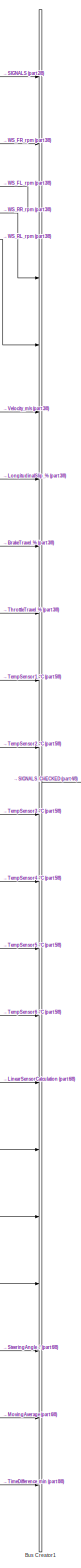
[diagram: PRE-PROCESSOR - part 1/8, right side, full height]
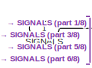
[diagram: PRE-PROCESSOR - part 2/8, top left region]
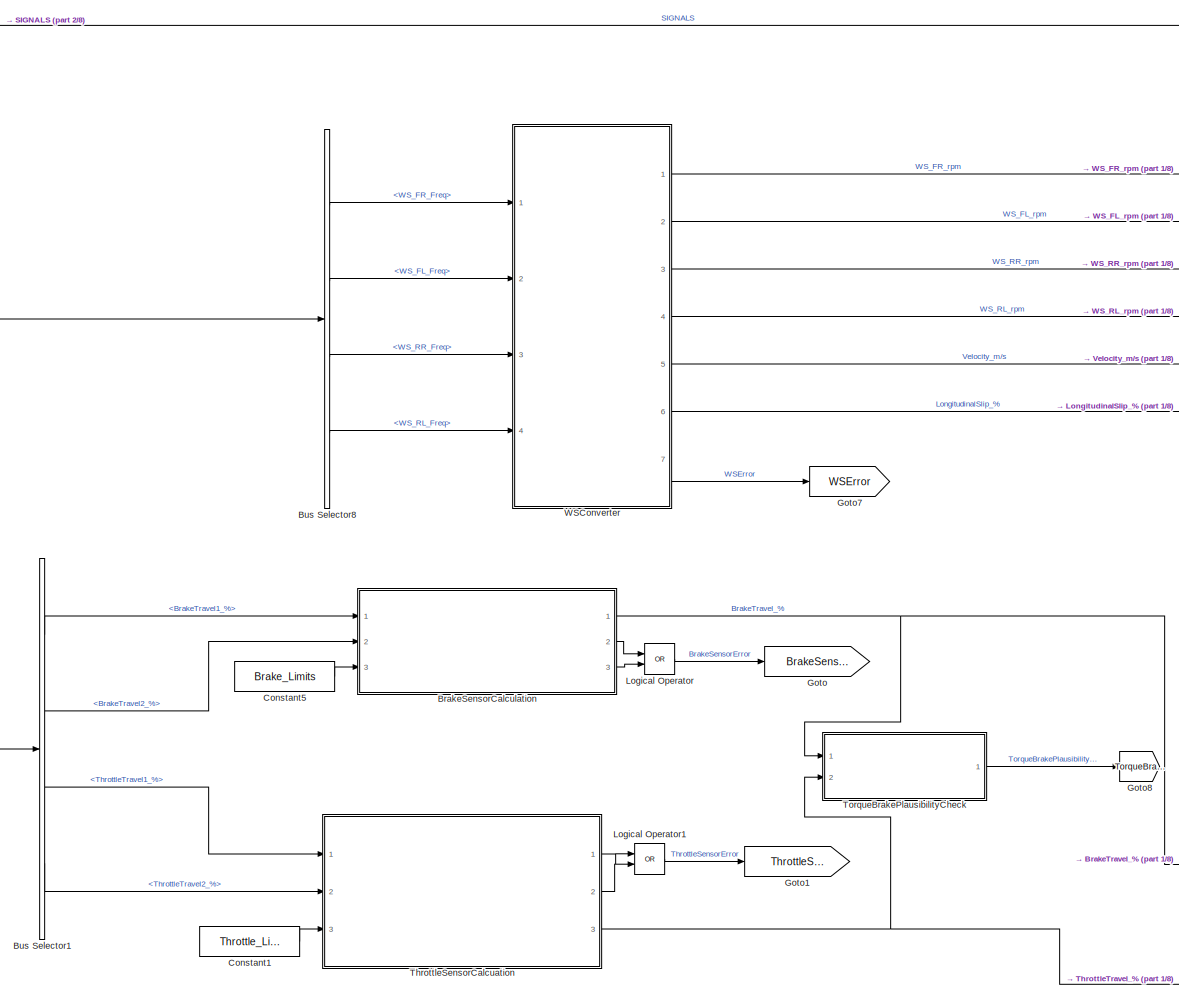
[diagram: PRE-PROCESSOR - part 3/8, top center region]
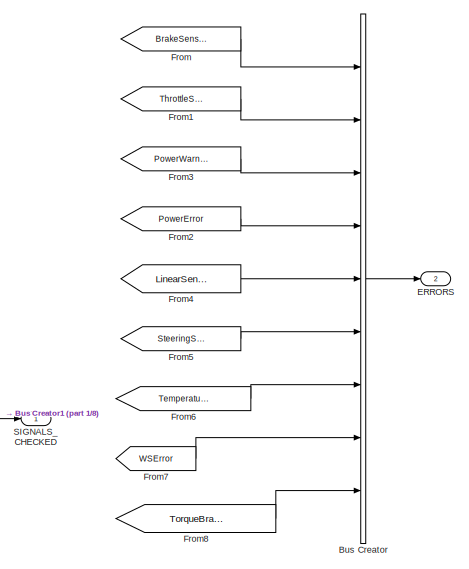
[diagram: PRE-PROCESSOR - part 4/8, middle right region]
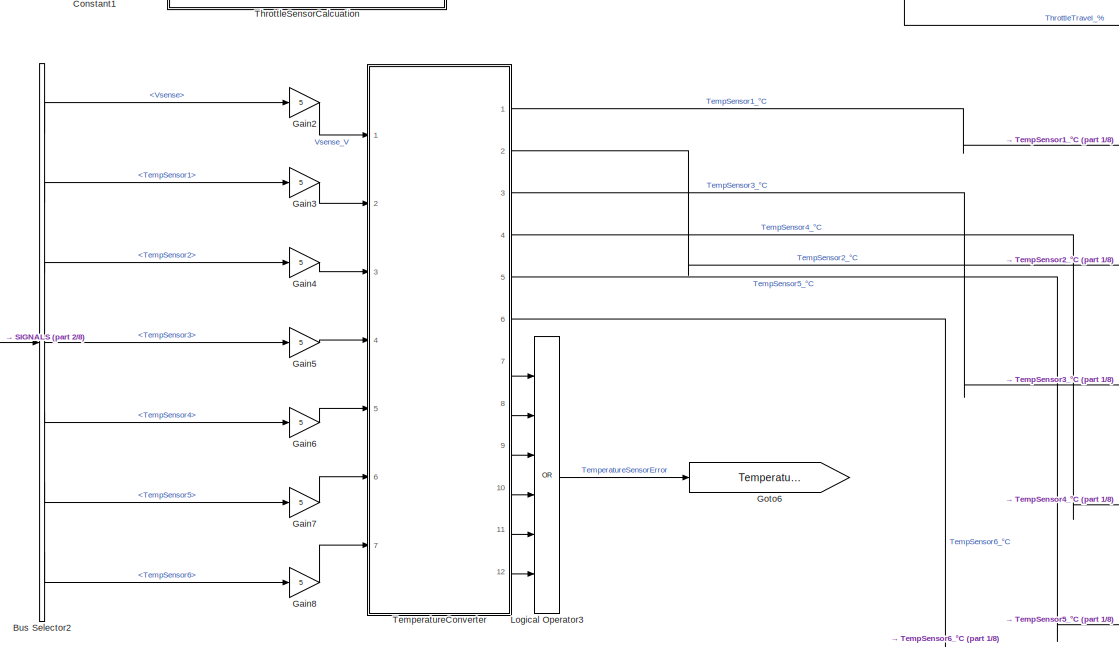
[diagram: PRE-PROCESSOR - part 5/8, central region]
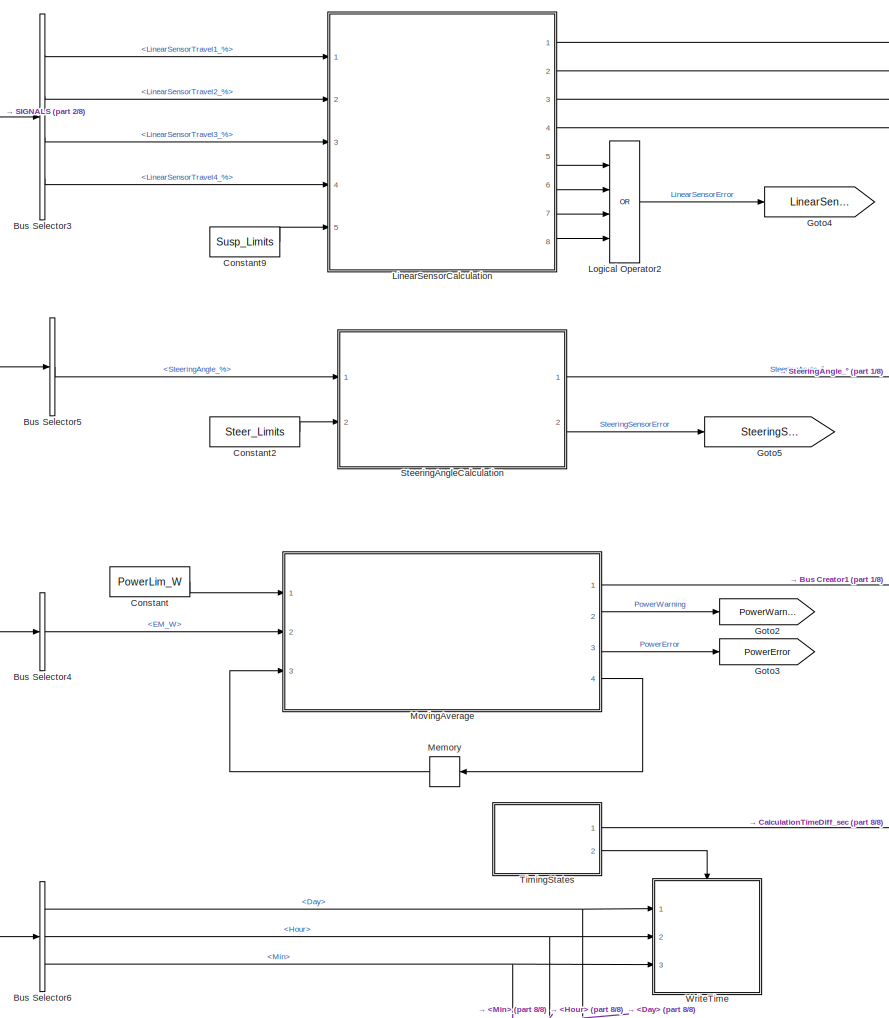
[diagram: PRE-PROCESSOR - part 6/8, bottom center region]
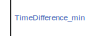
[diagram: PRE-PROCESSOR - part 7/8, bottom right region]
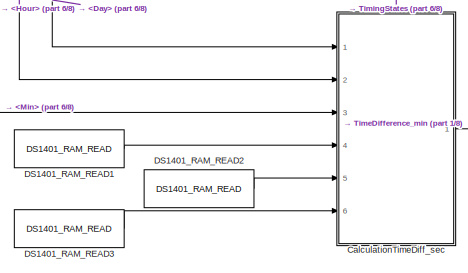
[diagram: PRE-PROCESSOR - part 8/8, bottom center region]
BLOCK [SubSystem] PRE-PROCESSOR
  Ports = [1, 2]
  RequestExecContextInheritance = off
BLOCK [SubSystem] PRE-PROCESSOR/BrakeSensorCalculation
  ErrorFcn = Stateflow.Translate.translate
  PermitHierarchicalResolution = ExplicitOnly
  Ports = [3, 3]
  RequestExecContextInheritance = off
  SFBlockType = MATLAB Function
  TreatAsAtomicUnit = on
BLOCK [Demux] PRE-PROCESSOR/BrakeSensorCalculation/ Demux 
  Outputs = 1
  Ports = [1, 1]
BLOCK [S-Function] PRE-PROCESSOR/BrakeSensorCalculation/ SFunction 
  EnableBusSupport = on
  FunctionName = sf_sfun
  PortCounts = [3 4]
  Ports = [3, 4]
  Tag = Stateflow S-Function StateMachine_v3 10
BLOCK [Terminator] PRE-PROCESSOR/BrakeSensorCalculation/ Terminator 
BLOCK [Outport] PRE-PROCESSOR/BrakeSensorCalculation/e1
  IconDisplay = Port number
  Port = 2
BLOCK [Outport] PRE-PROCESSOR/BrakeSensorCalculation/e2
  IconDisplay = Port number
  Port = 3
BLOCK [Inport] PRE-PROCESSOR/BrakeSensorCalculation/limits
  IconDisplay = Port number
  Port = 3
BLOCK [Inport] PRE-PROCESSOR/BrakeSensorCalculation/u1
  IconDisplay = Port number
BLOCK [Inport] PRE-PROCESSOR/BrakeSensorCalculation/u2
  IconDisplay = Port number
  Port = 2
BLOCK [Outport] PRE-PROCESSOR/BrakeSensorCalculation/y
  IconDisplay = Port number
BLOCK [BusCreator] PRE-PROCESSOR/Bus Creator
  DisplayOption = bar
  Inputs = 9
  Ports = [9, 1]
BLOCK [BusCreator] PRE-PROCESSOR/Bus Creator1
  DisplayOption = bar
  Inputs = 22
  Ports = [22, 1]
BLOCK [BusSelector] PRE-PROCESSOR/Bus Selector1
  OutputSignals = AnalogInputs.BrakeTravel1_%,AnalogInputs.BrakeTravel2_%,AnalogInputs.ThrottleTravel1_%,AnalogInputs.ThrottleTravel2_%
  Ports = [1, 4]
BLOCK [BusSelector] PRE-PROCESSOR/Bus Selector2
  OutputSignals = AnalogInputs.Vsense,AnalogInputs.TempSensor1,AnalogInputs.TempSensor2,AnalogInputs.TempSensor3,AnalogInputs.TempSensor4,AnalogInputs.TempSensor5,AnalogInputs.TempSensor6
  Ports = [1, 7]
BLOCK [BusSelector] PRE-PROCESSOR/Bus Selector3
  OutputSignals = AnalogInputs.LinearSensorTravel1_%,AnalogInputs.LinearSensorTravel2_%,AnalogInputs.LinearSensorTravel3_%,AnalogInputs.LinearSensorTravel4_%
  Ports = [1, 4]
BLOCK [BusSelector] PRE-PROCESSOR/Bus Selector4
  OutputSignals = CANInputs.EM_W
  Ports = [1, 1]
BLOCK [BusSelector] PRE-PROCESSOR/Bus Selector5
  OutputSignals = AnalogInputs.SteeringAngle_%
  Ports = [1, 1]
BLOCK [BusSelector] PRE-PROCESSOR/Bus Selector6
  OutputSignals = TimingInputs.Day,TimingInputs.Hour,TimingInputs.Min
  Ports = [1, 3]
BLOCK [BusSelector] PRE-PROCESSOR/Bus Selector8
  OutputSignals = DigitalInputs.WS_FR_Freq,DigitalInputs.WS_FL_Freq,DigitalInputs.WS_RR_Freq,DigitalInputs.WS_RL_Freq
  Ports = [1, 4]
BLOCK [SubSystem] PRE-PROCESSOR/CalculationTimeDiff_sec
  Ports = [6, 1, 1]
  RequestExecContextInheritance = off
  TreatAsAtomicUnit = on
BLOCK [Sum] PRE-PROCESSOR/CalculationTimeDiff_sec/Add
  InputSameDT = off
  Inputs = -+
  OutDataTypeStr = Inherit: Inherit via internal rule
  Ports = [2, 1]
  SaturateOnIntegerOverflow = off
BLOCK [Sum] PRE-PROCESSOR/CalculationTimeDiff_sec/Add3
  InputSameDT = off
  OutDataTypeStr = Inherit: Inherit via internal rule
  Ports = [2, 1]
  SaturateOnIntegerOverflow = off
BLOCK [Sum] PRE-PROCESSOR/CalculationTimeDiff_sec/Add4
  InputSameDT = off
  OutDataTypeStr = Inherit: Inherit via internal rule
  Ports = [2, 1]
  SaturateOnIntegerOverflow = off
BLOCK [Sum] PRE-PROCESSOR/CalculationTimeDiff_sec/Add5
  InputSameDT = off
  Inputs = -+
  OutDataTypeStr = Inherit: Inherit via internal rule
  Ports = [2, 1]
  SaturateOnIntegerOverflow = off
BLOCK [Sum] PRE-PROCESSOR/CalculationTimeDiff_sec/Add6
  InputSameDT = off
  Inputs = +-
  OutDataTypeStr = Inherit: Inherit via internal rule
  Ports = [2, 1]
  SaturateOnIntegerOverflow = off
BLOCK [Sum] PRE-PROCESSOR/CalculationTimeDiff_sec/Add7
  InputSameDT = off
  OutDataTypeStr = Inherit: Inherit via internal rule
  Ports = [2, 1]
  SaturateOnIntegerOverflow = off
BLOCK [Sum] PRE-PROCESSOR/CalculationTimeDiff_sec/Add8
  InputSameDT = off
  OutDataTypeStr = Inherit: Inherit via internal rule
  Ports = [2, 1]
  SaturateOnIntegerOverflow = off
BLOCK [Constant] PRE-PROCESSOR/CalculationTimeDiff_sec/Constant
BLOCK [Constant] PRE-PROCESSOR/CalculationTimeDiff_sec/Constant1
BLOCK [Constant] PRE-PROCESSOR/CalculationTimeDiff_sec/Constant2
  Value = 0
BLOCK [Constant] PRE-PROCESSOR/CalculationTimeDiff_sec/Constant3
  Value = 12*60
BLOCK [Constant] PRE-PROCESSOR/CalculationTimeDiff_sec/Constant4
  Value = 60
BLOCK [Constant] PRE-PROCESSOR/CalculationTimeDiff_sec/Constant5
  Value = 0
BLOCK [Inport] PRE-PROCESSOR/CalculationTimeDiff_sec/Day
  IconDisplay = Port number
BLOCK [Inport] PRE-PROCESSOR/CalculationTimeDiff_sec/Day_prev
  IconDisplay = Port number
  Port = 4
BLOCK [EnablePort] PRE-PROCESSOR/CalculationTimeDiff_sec/Enable
  Ports = []
BLOCK [Gain] PRE-PROCESSOR/CalculationTimeDiff_sec/Gain
  Gain = 60
  OutDataTypeStr = Inherit: Inherit via internal rule
  ParamDataTypeStr = Inherit: Inherit via internal rule
  SaturateOnIntegerOverflow = off
BLOCK [Gain] PRE-PROCESSOR/CalculationTimeDiff_sec/Gain1
  Gain = 60
  OutDataTypeStr = Inherit: Inherit via internal rule
  ParamDataTypeStr = Inherit: Inherit via internal rule
  SaturateOnIntegerOverflow = off
BLOCK [Inport] PRE-PROCESSOR/CalculationTimeDiff_sec/Hour
  IconDisplay = Port number
  Port = 2
BLOCK [Inport] PRE-PROCESSOR/CalculationTimeDiff_sec/Hour_prev
  IconDisplay = Port number
  Port = 5
BLOCK [Logic] PRE-PROCESSOR/CalculationTimeDiff_sec/Logical Operator
  AllPortsSameDT = off
  OutDataTypeStr = boolean
  Ports = [2, 1]
BLOCK [Inport] PRE-PROCESSOR/CalculationTimeDiff_sec/Min
  IconDisplay = Port number
  Port = 3
BLOCK [Inport] PRE-PROCESSOR/CalculationTimeDiff_sec/Min_prev
  IconDisplay = Port number
  Port = 6
BLOCK [RelationalOperator] PRE-PROCESSOR/CalculationTimeDiff_sec/Relational Operator
  InputSameDT = off
  Operator = ==
  OutDataTypeStr = boolean
  Ports = [2, 1]
BLOCK [RelationalOperator] PRE-PROCESSOR/CalculationTimeDiff_sec/Relational Operator1
  InputSameDT = off
  Operator = ==
  OutDataTypeStr = boolean
  Ports = [2, 1]
BLOCK [RelationalOperator] PRE-PROCESSOR/CalculationTimeDiff_sec/Relational Operator2
  InputSameDT = off
  Operator = <
  OutDataTypeStr = boolean
  Ports = [2, 1]
BLOCK [Switch] PRE-PROCESSOR/CalculationTimeDiff_sec/Switch
  Criteria = u2 > Threshold
  InputSameDT = off
  SaturateOnIntegerOverflow = off
BLOCK [Switch] PRE-PROCESSOR/CalculationTimeDiff_sec/Switch1
  Criteria = u2 > Threshold
  InputSameDT = off
  SaturateOnIntegerOverflow = off
BLOCK [Switch] PRE-PROCESSOR/CalculationTimeDiff_sec/Switch2
  Criteria = u2 > Threshold
  InputSameDT = off
  SaturateOnIntegerOverflow = off
BLOCK [Outport] PRE-PROCESSOR/CalculationTimeDiff_sec/TimeDifference_min
  IconDisplay = Port number
BLOCK [Constant] PRE-PROCESSOR/Constant
  Value = PowerLim_W
BLOCK [Constant] PRE-PROCESSOR/Constant1
  Value = Throttle_Limits
BLOCK [Constant] PRE-PROCESSOR/Constant2
  Value = Steer_Limits
BLOCK [Constant] PRE-PROCESSOR/Constant5
  Value = Brake_Limits
BLOCK [Constant] PRE-PROCESSOR/Constant9
  Value = Susp_Limits
BLOCK [Reference] PRE-PROCESSOR/DS1401_RAM_READ1  REF=rti1401lib_I_base/DS1401_RAM_READ
  Address = 0
  DSProperties = struct('RTI',struct('Version',uint32(1),'BlockType',struct('isSLSource',uint8(1),'isSLSink',uint8(0),'isHWSource',uint8(0),'isHWSink',uint8(1),'isSetup',uint8(0),'isInline',uint8(1),'isNonInline',uint8(1),'isInterrupt',uint8(0),'isChannelwise',uint8(0)),'IOBoardType',{{'DS1401','BASE'}},'UnitType','RAM','Identifier','RAMREAD','DialogType','SL','BlockSet','NONE','SlaveProcessor','NONE'))  <repeated x3 — deduplicated; at blocks: DS1401_RAM_READ1, DS1401_RAM_READ2, DS1401_RAM_READ3>
  DataType = Int8
  Ports = [0, 1]
  RTIBlockInterface = struct('OutputPortsActive',1,'BlockDisplay',{{['From\nnon-volatile RAM'],'center'}},'IconTransparency','off','InitLevel',1,'BlockName',struct('Token',{{'DS1401_RAM_READ'}}),'MaskDescription',['Provide read access from non-volatile Real-Time-Clock user RAM.'])  <repeated x3 — deduplicated; at blocks: DS1401_RAM_READ1, DS1401_RAM_READ2, DS1401_RAM_READ3>
  RTIBlockParaDefault = struct('DataType',8,'Address',0,'SampleTime',-1)
  RTIBlockParameters = struct('DataType',{{1,'ON',[1 8]}},'Address',{{0,'ON','DataType',[0 1 2 3 4 5 6 7 8 9 10 11 12 13 14 15;0 1 2 3 4 5 6 7 8 9 10 11 12 13 14 15;0 0 2 2 4 4 6 6 8 8 10 10 12 12 14 14;0 0 2 2 4 4 6 6 8 8 10 10 12 12 14 14;0 0 0 0 4 4 4 4 8 8 8 8 12 12 12 12;0 0 0 0 4 4 4 4 8 8 8 8 12 12 12 12;0 0 0 0 4 4 4 4 8 8 8 8 12 12 12 12;0 0 0 0 0 0 0 0 8 8 8 8 8 8 8 8]}},'SampleTime',{{-1,'OFF',[]}})
  RTISFcnParameters = struct('DataType','double','Address','double','SampleTime','double')
  Reserved1 = []
  Reserved2 = []
  Reserved3 = []
  Reserved4 = []
  SampleTime = -1
  SourceBlock = rti1401lib_I_base/DS1401_RAM_READ
  SourceType = RTI
BLOCK [Reference] PRE-PROCESSOR/DS1401_RAM_READ2  REF=rti1401lib_I_base/DS1401_RAM_READ
  Address = 1
  DataType = Int8
  Ports = [0, 1]
  RTIBlockParaDefault = struct('DataType',8,'Address',0,'SampleTime',-1)
  RTIBlockParameters = struct('DataType',{{1,'ON',[1 8]}},'Address',{{1,'ON','DataType',[0 1 2 3 4 5 6 7 8 9 10 11 12 13 14 15;0 1 2 3 4 5 6 7 8 9 10 11 12 13 14 15;0 0 2 2 4 4 6 6 8 8 10 10 12 12 14 14;0 0 2 2 4 4 6 6 8 8 10 10 12 12 14 14;0 0 0 0 4 4 4 4 8 8 8 8 12 12 12 12;0 0 0 0 4 4 4 4 8 8 8 8 12 12 12 12;0 0 0 0 4 4 4 4 8 8 8 8 12 12 12 12;0 0 0 0 0 0 0 0 8 8 8 8 8 8 8 8]}},'SampleTime',{{-1,'OFF',[]}})
  RTISFcnParameters = struct('DataType','double','Address','double','SampleTime','double')
  Reserved1 = []
  Reserved2 = []
  Reserved3 = []
  Reserved4 = []
  SampleTime = -1
  SourceBlock = rti1401lib_I_base/DS1401_RAM_READ
  SourceType = RTI
BLOCK [Reference] PRE-PROCESSOR/DS1401_RAM_READ3  REF=rti1401lib_I_base/DS1401_RAM_READ
  Address = 2
  DataType = Int8
  Ports = [0, 1]
  RTIBlockParaDefault = struct('DataType',8,'Address',0,'SampleTime',-1)
  RTIBlockParameters = struct('DataType',{{1,'ON',[1 8]}},'Address',{{2,'ON','DataType',[0 1 2 3 4 5 6 7 8 9 10 11 12 13 14 15;0 1 2 3 4 5 6 7 8 9 10 11 12 13 14 15;0 0 2 2 4 4 6 6 8 8 10 10 12 12 14 14;0 0 2 2 4 4 6 6 8 8 10 10 12 12 14 14;0 0 0 0 4 4 4 4 8 8 8 8 12 12 12 12;0 0 0 0 4 4 4 4 8 8 8 8 12 12 12 12;0 0 0 0 4 4 4 4 8 8 8 8 12 12 12 12;0 0 0 0 0 0 0 0 8 8 8 8 8 8 8 8]}},'SampleTime',{{-1,'OFF',[]}})
  RTISFcnParameters = struct('DataType','double','Address','double','SampleTime','double')
  Reserved1 = []
  Reserved2 = []
  Reserved3 = []
  Reserved4 = []
  SampleTime = -1
  SourceBlock = rti1401lib_I_base/DS1401_RAM_READ
  SourceType = RTI
BLOCK [Outport] PRE-PROCESSOR/ERRORS
  IconDisplay = Port number
  Port = 2
BLOCK [From] PRE-PROCESSOR/From
  GotoTag = BrakeSensorError
BLOCK [From] PRE-PROCESSOR/From1
  GotoTag = ThrottleSensorError
BLOCK [From] PRE-PROCESSOR/From2
  GotoTag = PowerError
BLOCK [From] PRE-PROCESSOR/From3
  GotoTag = PowerWarning
BLOCK [From] PRE-PROCESSOR/From4
  GotoTag = LinearSensorError
BLOCK [From] PRE-PROCESSOR/From5
  GotoTag = SteeringSensorError
BLOCK [From] PRE-PROCESSOR/From6
  GotoTag = TemperatureSensorError
BLOCK [From] PRE-PROCESSOR/From7
  GotoTag = WSError
BLOCK [From] PRE-PROCESSOR/From8
  GotoTag = TorqueBrakePlausibilityError
BLOCK [Gain] PRE-PROCESSOR/Gain2
  Gain = 5
  OutDataTypeStr = Inherit: Inherit via internal rule
  ParamDataTypeStr = Inherit: Inherit via internal rule
  SaturateOnIntegerOverflow = off
BLOCK [Gain] PRE-PROCESSOR/Gain3
  Gain = 5
  OutDataTypeStr = Inherit: Inherit via internal rule
  ParamDataTypeStr = Inherit: Inherit via internal rule
  SaturateOnIntegerOverflow = off
BLOCK [Gain] PRE-PROCESSOR/Gain4
  Gain = 5
  OutDataTypeStr = Inherit: Inherit via internal rule
  ParamDataTypeStr = Inherit: Inherit via internal rule
  SaturateOnIntegerOverflow = off
BLOCK [Gain] PRE-PROCESSOR/Gain5
  Gain = 5
  OutDataTypeStr = Inherit: Inherit via internal rule
  ParamDataTypeStr = Inherit: Inherit via internal rule
  SaturateOnIntegerOverflow = off
BLOCK [Gain] PRE-PROCESSOR/Gain6
  Gain = 5
  OutDataTypeStr = Inherit: Inherit via internal rule
  ParamDataTypeStr = Inherit: Inherit via internal rule
  SaturateOnIntegerOverflow = off
BLOCK [Gain] PRE-PROCESSOR/Gain7
  Gain = 5
  OutDataTypeStr = Inherit: Inherit via internal rule
  ParamDataTypeStr = Inherit: Inherit via internal rule
  SaturateOnIntegerOverflow = off
BLOCK [Gain] PRE-PROCESSOR/Gain8
  Gain = 5
  OutDataTypeStr = Inherit: Inherit via internal rule
  ParamDataTypeStr = Inherit: Inherit via internal rule
  SaturateOnIntegerOverflow = off
BLOCK [Goto] PRE-PROCESSOR/Goto
  GotoTag = BrakeSensorError
BLOCK [Goto] PRE-PROCESSOR/Goto1
  GotoTag = ThrottleSensorError
BLOCK [Goto] PRE-PROCESSOR/Goto2
  GotoTag = PowerWarning
BLOCK [Goto] PRE-PROCESSOR/Goto3
  GotoTag = PowerError
BLOCK [Goto] PRE-PROCESSOR/Goto4
  GotoTag = LinearSensorError
BLOCK [Goto] PRE-PROCESSOR/Goto5
  GotoTag = SteeringSensorError
BLOCK [Goto] PRE-PROCESSOR/Goto6
  GotoTag = TemperatureSensorError
BLOCK [Goto] PRE-PROCESSOR/Goto7
  GotoTag = WSError
BLOCK [Goto] PRE-PROCESSOR/Goto8
  GotoTag = TorqueBrakePlausibilityError
BLOCK [SubSystem] PRE-PROCESSOR/LinearSensorCalculation
  ErrorFcn = Stateflow.Translate.translate
  PermitHierarchicalResolution = ExplicitOnly
  Ports = [5, 8]
  RequestExecContextInheritance = off
  SFBlockType = MATLAB Function
  TreatAsAtomicUnit = on
BLOCK [Demux] PRE-PROCESSOR/LinearSensorCalculation/ Demux 
  Outputs = 1
  Ports = [1, 1]
BLOCK [S-Function] PRE-PROCESSOR/LinearSensorCalculation/ SFunction 
  EnableBusSupport = on
  FunctionName = sf_sfun
  PortCounts = [5 9]
  Ports = [5, 9]
  Tag = Stateflow S-Function StateMachine_v3 17
BLOCK [Terminator] PRE-PROCESSOR/LinearSensorCalculation/ Terminator 
BLOCK [Outport] PRE-PROCESSOR/LinearSensorCalculation/e1
  IconDisplay = Port number
  Port = 5
BLOCK [Outport] PRE-PROCESSOR/LinearSensorCalculation/e2
  IconDisplay = Port number
  Port = 6
BLOCK [Outport] PRE-PROCESSOR/LinearSensorCalculation/e3
  IconDisplay = Port number
  Port = 7
BLOCK [Outport] PRE-PROCESSOR/LinearSensorCalculation/e4
  IconDisplay = Port number
  Port = 8
BLOCK [Inport] PRE-PROCESSOR/LinearSensorCalculation/limits
  IconDisplay = Port number
  Port = 5
BLOCK [Inport] PRE-PROCESSOR/LinearSensorCalculation/u1
  IconDisplay = Port number
BLOCK [Inport] PRE-PROCESSOR/LinearSensorCalculation/u2
  IconDisplay = Port number
  Port = 2
BLOCK [Inport] PRE-PROCESSOR/LinearSensorCalculation/u3
  IconDisplay = Port number
  Port = 3
BLOCK [Inport] PRE-PROCESSOR/LinearSensorCalculation/u4
  IconDisplay = Port number
  Port = 4
BLOCK [Outport] PRE-PROCESSOR/LinearSensorCalculation/y1
  IconDisplay = Port number
BLOCK [Outport] PRE-PROCESSOR/LinearSensorCalculation/y2
  IconDisplay = Port number
  Port = 2
BLOCK [Outport] PRE-PROCESSOR/LinearSensorCalculation/y3
  IconDisplay = Port number
  Port = 3
BLOCK [Outport] PRE-PROCESSOR/LinearSensorCalculation/y4
  IconDisplay = Port number
  Port = 4
BLOCK [Logic] PRE-PROCESSOR/Logical Operator
  AllPortsSameDT = off
  Operator = OR
  OutDataTypeStr = boolean
  Ports = [2, 1]
BLOCK [Logic] PRE-PROCESSOR/Logical Operator1
  AllPortsSameDT = off
  Operator = OR
  OutDataTypeStr = boolean
  Ports = [2, 1]
BLOCK [Logic] PRE-PROCESSOR/Logical Operator2
  AllPortsSameDT = off
  Inputs = 4
  Operator = OR
  OutDataTypeStr = boolean
  Ports = [4, 1]
BLOCK [Logic] PRE-PROCESSOR/Logical Operator3
  AllPortsSameDT = off
  Inputs = 6
  Operator = OR
  OutDataTypeStr = boolean
  Ports = [6, 1]
BLOCK [Memory] PRE-PROCESSOR/Memory
  InheritSampleTime = on
  X0 = zeros(50,1)
BLOCK [SubSystem] PRE-PROCESSOR/MovingAverage
  ErrorFcn = Stateflow.Translate.translate
  PermitHierarchicalResolution = ExplicitOnly
  Ports = [3, 4]
  RequestExecContextInheritance = off
  SFBlockType = MATLAB Function
  TreatAsAtomicUnit = on
BLOCK [Demux] PRE-PROCESSOR/MovingAverage/ Demux 
  Outputs = 1
  Ports = [1, 1]
BLOCK [S-Function] PRE-PROCESSOR/MovingAverage/ SFunction 
  EnableBusSupport = on
  FunctionName = sf_sfun
  PortCounts = [3 5]
  Ports = [3, 5]
  Tag = Stateflow S-Function StateMachine_v3 13
BLOCK [Terminator] PRE-PROCESSOR/MovingAverage/ Terminator 
BLOCK [Outport] PRE-PROCESSOR/MovingAverage/ArrayNext
  IconDisplay = Port number
  Port = 4
BLOCK [Inport] PRE-PROCESSOR/MovingAverage/ArrayPrevious
  IconDisplay = Port number
  Port = 3
BLOCK [Inport] PRE-PROCESSOR/MovingAverage/CurrentPower
  IconDisplay = Port number
  Port = 2
BLOCK [Outport] PRE-PROCESSOR/MovingAverage/PowerAverage_W
  IconDisplay = Port number
BLOCK [Outport] PRE-PROCESSOR/MovingAverage/PowerError
  IconDisplay = Port number
  Port = 3
BLOCK [Inport] PRE-PROCESSOR/MovingAverage/PowerLim_W
  IconDisplay = Port number
BLOCK [Outport] PRE-PROCESSOR/MovingAverage/PowerWarning
  IconDisplay = Port number
  Port = 2
BLOCK [Inport] PRE-PROCESSOR/SIGNALS
  IconDisplay = Port number
BLOCK [Outport] PRE-PROCESSOR/SIGNALS_CHECKED
  IconDisplay = Port number
BLOCK [SubSystem] PRE-PROCESSOR/SteeringAngleCalculation
  Ports = [2, 2]
  RequestExecContextInheritance = off
BLOCK [Lookup_n-D] PRE-PROCESSOR/SteeringAngleCalculation/1-D Lookup Table
  BreakpointsForDimension1 = [-MaxDisplacementSteeringRack,-20.1,-19.12,-18.14,-17.15,-16.18,-15.2,-14.22,-13.25,-12.27,-11.3,-10.34,-9.38,-8.42,-7.46,-6.51,-5.56,-4.62,-3.69,-2.75,-1.83,-0.91,0,0.91,1.83,2.75,3.69,4.62,5.56,6.51,7.46,8.42,9.38,10.34,11.3,12.27,13.25,14.22,15.2,16.18,17.15,18.14,19.12,20.1,MaxDisplacementSteeringRack]
  InternalRulePriority = Speed
  NumberOfTableDimensions = 1
  Ports = [1, 1]
  RndMeth = Simplest
  Table = [-MaxSteeringAngle,-23.33,-22.06,-20.81,-19.59,-18.385,-17.205,-16.035,-14.855,-13.75,-12.63,-11.52,-10.425,-9.34,-8.265,-7.2,-6.145,-5.1,-4.065,-3.035,-2.015,-1.05,0,1.05,2.015,3.035,4.065,5.1,6.145,7.2,8.265,9.34,10.425,11.52,12.63,13.75,14.855,16.035,17.205,18.385,19.59,20.81,22.06,23.33,MaxSteeringAngle]
BLOCK [Constant] PRE-PROCESSOR/SteeringAngleCalculation/Constant
  Value = MaxDisplacementSteeringRack
BLOCK [SubSystem] PRE-PROCESSOR/SteeringAngleCalculation/MATLAB Function
  ErrorFcn = Stateflow.Translate.translate
  PermitHierarchicalResolution = ExplicitOnly
  Ports = [3, 2]
  RequestExecContextInheritance = off
  SFBlockType = MATLAB Function
  TreatAsAtomicUnit = on
BLOCK [Demux] PRE-PROCESSOR/SteeringAngleCalculation/MATLAB Function/ Demux 
  Outputs = 1
  Ports = [1, 1]
BLOCK [S-Function] PRE-PROCESSOR/SteeringAngleCalculation/MATLAB Function/ SFunction 
  EnableBusSupport = on
  FunctionName = sf_sfun
  PortCounts = [3 3]
  Ports = [3, 3]
  Tag = Stateflow S-Function StateMachine_v3 6
BLOCK [Terminator] PRE-PROCESSOR/SteeringAngleCalculation/MATLAB Function/ Terminator 
BLOCK [Inport] PRE-PROCESSOR/SteeringAngleCalculation/MATLAB Function/MaxDisplacementSteeringRack
  IconDisplay = Port number
  Port = 2
BLOCK [Inport] PRE-PROCESSOR/SteeringAngleCalculation/MATLAB Function/SteeringAngleTravel
  IconDisplay = Port number
BLOCK [Outport] PRE-PROCESSOR/SteeringAngleCalculation/MATLAB Function/SteeringDisplacement
  IconDisplay = Port number
BLOCK [Outport] PRE-PROCESSOR/SteeringAngleCalculation/MATLAB Function/e
  IconDisplay = Port number
  Port = 2
BLOCK [Inport] PRE-PROCESSOR/SteeringAngleCalculation/MATLAB Function/limits
  IconDisplay = Port number
  Port = 3
BLOCK [Outport] PRE-PROCESSOR/SteeringAngleCalculation/SteeringAngleSensorError
  IconDisplay = Port number
  Port = 2
BLOCK [Inport] PRE-PROCESSOR/SteeringAngleCalculation/SteeringAngleTravel_%
  IconDisplay = Port number
BLOCK [Outport] PRE-PROCESSOR/SteeringAngleCalculation/SteeringAngle_°
  IconDisplay = Port number
BLOCK [Inport] PRE-PROCESSOR/SteeringAngleCalculation/limits
  IconDisplay = Port number
  Port = 2
BLOCK [SubSystem] PRE-PROCESSOR/TemperatureConverter
  ErrorFcn = Stateflow.Translate.translate
  PermitHierarchicalResolution = ExplicitOnly
  Ports = [7, 12]
  RequestExecContextInheritance = off
  SFBlockType = MATLAB Function
  TreatAsAtomicUnit = on
BLOCK [Demux] PRE-PROCESSOR/TemperatureConverter/ Demux 
  Outputs = 1
  Ports = [1, 1]
BLOCK [S-Function] PRE-PROCESSOR/TemperatureConverter/ SFunction 
  EnableBusSupport = on
  FunctionName = sf_sfun
  PortCounts = [7 13]
  Ports = [7, 13]
  Tag = Stateflow S-Function StateMachine_v3 2
BLOCK [Terminator] PRE-PROCESSOR/TemperatureConverter/ Terminator 
BLOCK [Inport] PRE-PROCESSOR/TemperatureConverter/Vin
  IconDisplay = Port number
BLOCK [Outport] PRE-PROCESSOR/TemperatureConverter/e1
  IconDisplay = Port number
  Port = 7
BLOCK [Outport] PRE-PROCESSOR/TemperatureConverter/e2
  IconDisplay = Port number
  Port = 8
BLOCK [Outport] PRE-PROCESSOR/TemperatureConverter/e3
  IconDisplay = Port number
  Port = 9
BLOCK [Outport] PRE-PROCESSOR/TemperatureConverter/e4
  IconDisplay = Port number
  Port = 10
BLOCK [Outport] PRE-PROCESSOR/TemperatureConverter/e5
  IconDisplay = Port number
  Port = 11
BLOCK [Outport] PRE-PROCESSOR/TemperatureConverter/e6
  IconDisplay = Port number
  Port = 12
BLOCK [Inport] PRE-PROCESSOR/TemperatureConverter/u1
  IconDisplay = Port number
  Port = 2
BLOCK [Inport] PRE-PROCESSOR/TemperatureConverter/u2
  IconDisplay = Port number
  Port = 3
BLOCK [Inport] PRE-PROCESSOR/TemperatureConverter/u3
  IconDisplay = Port number
  Port = 4
BLOCK [Inport] PRE-PROCESSOR/TemperatureConverter/u4
  IconDisplay = Port number
  Port = 5
BLOCK [Inport] PRE-PROCESSOR/TemperatureConverter/u5
  IconDisplay = Port number
  Port = 6
BLOCK [Inport] PRE-PROCESSOR/TemperatureConverter/u6
  IconDisplay = Port number
  Port = 7
BLOCK [Outport] PRE-PROCESSOR/TemperatureConverter/y1
  IconDisplay = Port number
BLOCK [Outport] PRE-PROCESSOR/TemperatureConverter/y2
  IconDisplay = Port number
  Port = 2
BLOCK [Outport] PRE-PROCESSOR/TemperatureConverter/y3
  IconDisplay = Port number
  Port = 3
BLOCK [Outport] PRE-PROCESSOR/TemperatureConverter/y4
  IconDisplay = Port number
  Port = 4
BLOCK [Outport] PRE-PROCESSOR/TemperatureConverter/y5
  IconDisplay = Port number
  Port = 5
BLOCK [Outport] PRE-PROCESSOR/TemperatureConverter/y6
  IconDisplay = Port number
  Port = 6
BLOCK [SubSystem] PRE-PROCESSOR/ThrottleSensorCalcuation
  ErrorFcn = Stateflow.Translate.translate
  PermitHierarchicalResolution = ExplicitOnly
  Ports = [3, 3]
  RequestExecContextInheritance = off
  SFBlockType = MATLAB Function
  TreatAsAtomicUnit = on
BLOCK [Demux] PRE-PROCESSOR/ThrottleSensorCalcuation/ Demux 
  Outputs = 1
  Ports = [1, 1]
BLOCK [S-Function] PRE-PROCESSOR/ThrottleSensorCalcuation/ SFunction 
  EnableBusSupport = on
  FunctionName = sf_sfun
  PortCounts = [3 4]
  Ports = [3, 4]
  Tag = Stateflow S-Function StateMachine_v3 9
BLOCK [Terminator] PRE-PROCESSOR/ThrottleSensorCalcuation/ Terminator 
BLOCK [Outport] PRE-PROCESSOR/ThrottleSensorCalcuation/e1
  IconDisplay = Port number
  Port = 2
BLOCK [Outport] PRE-PROCESSOR/ThrottleSensorCalcuation/e2
  IconDisplay = Port number
BLOCK [Inport] PRE-PROCESSOR/ThrottleSensorCalcuation/limits
  IconDisplay = Port number
  Port = 3
BLOCK [Inport] PRE-PROCESSOR/ThrottleSensorCalcuation/u1
  IconDisplay = Port number
BLOCK [Inport] PRE-PROCESSOR/ThrottleSensorCalcuation/u2
  IconDisplay = Port number
  Port = 2
BLOCK [Outport] PRE-PROCESSOR/ThrottleSensorCalcuation/y
  IconDisplay = Port number
  Port = 3
BLOCK [SubSystem] PRE-PROCESSOR/TimingStates
  ErrorFcn = Stateflow.Translate.translate
  PermitHierarchicalResolution = ExplicitOnly
  Ports = [0, 2]
  RequestExecContextInheritance = off
  SFBlockType = Chart
  TreatAsAtomicUnit = on
BLOCK [Demux] PRE-PROCESSOR/TimingStates/ Demux 
  Outputs = 1
  Ports = [1, 1]
BLOCK [Ground] PRE-PROCESSOR/TimingStates/ Ground 
BLOCK [S-Function] PRE-PROCESSOR/TimingStates/ SFunction 
  EnableBusSupport = on
  FunctionName = sf_sfun
  PortCounts = [1 3]
  Ports = [1, 3]
  Tag = Stateflow S-Function StateMachine_v3 19
BLOCK [Terminator] PRE-PROCESSOR/TimingStates/ Terminator 
BLOCK [Outport] PRE-PROCESSOR/TimingStates/Read
  IconDisplay = Port number
BLOCK [Outport] PRE-PROCESSOR/TimingStates/Write
  IconDisplay = Port number
  Port = 2
BLOCK [SubSystem] PRE-PROCESSOR/TorqueBrakePlausibilityCheck
  ErrorFcn = Stateflow.Translate.translate
  PermitHierarchicalResolution = ExplicitOnly
  Ports = [2, 1]
  RequestExecContextInheritance = off
  SFBlockType = Chart
  TreatAsAtomicUnit = on
BLOCK [Demux] PRE-PROCESSOR/TorqueBrakePlausibilityCheck/ Demux 
  Outputs = 1
  Ports = [1, 1]
BLOCK [S-Function] PRE-PROCESSOR/TorqueBrakePlausibilityCheck/ SFunction 
  EnableBusSupport = on
  FunctionName = sf_sfun
  PortCounts = [2 2]
  Ports = [2, 2]
  Tag = Stateflow S-Function StateMachine_v3 20
BLOCK [Terminator] PRE-PROCESSOR/TorqueBrakePlausibilityCheck/ Terminator 
BLOCK [Inport] PRE-PROCESSOR/TorqueBrakePlausibilityCheck/BrakeTravel
  IconDisplay = Port number
BLOCK [Inport] PRE-PROCESSOR/TorqueBrakePlausibilityCheck/ThrottleTravel
  IconDisplay = Port number
  Port = 2
BLOCK [Outport] PRE-PROCESSOR/TorqueBrakePlausibilityCheck/error
  IconDisplay = Port number
BLOCK [SubSystem] PRE-PROCESSOR/WSConverter
  ErrorFcn = Stateflow.Translate.translate
  PermitHierarchicalResolution = ExplicitOnly
  Ports = [4, 7]
  RequestExecContextInheritance = off
  SFBlockType = MATLAB Function
  TreatAsAtomicUnit = on
BLOCK [Demux] PRE-PROCESSOR/WSConverter/ Demux 
  Outputs = 1
  Ports = [1, 1]
BLOCK [S-Function] PRE-PROCESSOR/WSConverter/ SFunction 
  EnableBusSupport = on
  FunctionName = sf_sfun
  PortCounts = [4 8]
  Ports = [4, 8]
  Tag = Stateflow S-Function StateMachine_v3 7
BLOCK [Terminator] PRE-PROCESSOR/WSConverter/ Terminator 
BLOCK [Outport] PRE-PROCESSOR/WSConverter/LongitudinalSlip
  IconDisplay = Port number
  Port = 6
BLOCK [Outport] PRE-PROCESSOR/WSConverter/Velocity_mps
  IconDisplay = Port number
  Port = 5
BLOCK [Inport] PRE-PROCESSOR/WSConverter/WS_FL
  IconDisplay = Port number
  Port = 2
BLOCK [Outport] PRE-PROCESSOR/WSConverter/WS_FL_rpm
  IconDisplay = Port number
  Port = 2
BLOCK [Inport] PRE-PROCESSOR/WSConverter/WS_FR
  IconDisplay = Port number
BLOCK [Outport] PRE-PROCESSOR/WSConverter/WS_FR_rpm
  IconDisplay = Port number
BLOCK [Inport] PRE-PROCESSOR/WSConverter/WS_RL
  IconDisplay = Port number
  Port = 4
BLOCK [Outport] PRE-PROCESSOR/WSConverter/WS_RL_rpm
  IconDisplay = Port number
  Port = 4
BLOCK [Inport] PRE-PROCESSOR/WSConverter/WS_RR
  IconDisplay = Port number
  Port = 3
BLOCK [Outport] PRE-PROCESSOR/WSConverter/WS_RR_rpm
  IconDisplay = Port number
  Port = 3
BLOCK [Outport] PRE-PROCESSOR/WSConverter/e
  IconDisplay = Port number
  Port = 7
BLOCK [SubSystem] PRE-PROCESSOR/WriteTime
  Ports = [3, 0, 1]
  RequestExecContextInheritance = off
  TreatAsAtomicUnit = on
BLOCK [Reference] PRE-PROCESSOR/WriteTime/DS1401_RAM_WRITE1  REF=rti1401lib_I_base/DS1401_RAM_WRITE
  Address = 0
  DSProperties = struct('RTI',struct('Version',uint32(1),'BlockType',struct('isSLSource',uint8(0),'isSLSink',uint8(1),'isHWSource',uint8(1),'isHWSink',uint8(1),'isSetup',uint8(0),'isInline',uint8(1),'isNonInline',uint8(1),'isInterrupt',uint8(0),'isChannelwise',uint8(0)),'IOBoardType',{{'DS1401','BASE'}},'UnitType','RAM','Identifier','RAMWRITE','DialogType','SL','BlockSet','NONE','SlaveProcessor','NONE'))  <repeated x3 — deduplicated; at blocks: DS1401_RAM_WRITE1, DS1401_RAM_WRITE2, DS1401_RAM_WRITE3>
  DataType = Int8
  Ports = [1]
  RTIBlockInterface = struct('InputPortsActive',1,'BlockDisplay',{{['To\nnon-volatile RAM'],'center'}},'IconTransparency','off','InitLevel',1,'BlockName',struct('Token',{{'DS1401_RAM_WRITE'}}),'MaskDescription',['Provide read access from non-volatile Real-Time-Clock user RAM.'])  <repeated x3 — deduplicated; at blocks: DS1401_RAM_WRITE1, DS1401_RAM_WRITE2, DS1401_RAM_WRITE3>
  RTIBlockParaDefault = struct('DataType',8,'Address',0,'SampleTime',-1)
  RTIBlockParameters = struct('DataType',{{1,'ON',[1 8]}},'Address',{{0,'ON','DataType',[0 1 2 3 4 5 6 7 8 9 10 11 12 13 14 15;0 1 2 3 4 5 6 7 8 9 10 11 12 13 14 15;0 0 2 2 4 4 6 6 8 8 10 10 12 12 14 14;0 0 2 2 4 4 6 6 8 8 10 10 12 12 14 14;0 0 0 0 4 4 4 4 8 8 8 8 12 12 12 12;0 0 0 0 4 4 4 4 8 8 8 8 12 12 12 12;0 0 0 0 4 4 4 4 8 8 8 8 12 12 12 12;0 0 0 0 0 0 0 0 8 8 8 8 8 8 8 8]}},'SampleTime',{{1,'OFF',[]}})
  RTISFcnParameters = struct('DataType','double','Address','double','SampleTime','double')
  Reserved1 = []
  Reserved2 = []
  Reserved3 = []
  Reserved4 = []
  SampleTime = 1
  SourceBlock = rti1401lib_I_base/DS1401_RAM_WRITE
  SourceType = RTI
BLOCK [Reference] PRE-PROCESSOR/WriteTime/DS1401_RAM_WRITE2  REF=rti1401lib_I_base/DS1401_RAM_WRITE
  Address = 1
  DataType = Int8
  Ports = [1]
  RTIBlockParaDefault = struct('DataType',8,'Address',0,'SampleTime',-1)
  RTIBlockParameters = struct('DataType',{{1,'ON',[1 8]}},'Address',{{1,'ON','DataType',[0 1 2 3 4 5 6 7 8 9 10 11 12 13 14 15;0 1 2 3 4 5 6 7 8 9 10 11 12 13 14 15;0 0 2 2 4 4 6 6 8 8 10 10 12 12 14 14;0 0 2 2 4 4 6 6 8 8 10 10 12 12 14 14;0 0 0 0 4 4 4 4 8 8 8 8 12 12 12 12;0 0 0 0 4 4 4 4 8 8 8 8 12 12 12 12;0 0 0 0 4 4 4 4 8 8 8 8 12 12 12 12;0 0 0 0 0 0 0 0 8 8 8 8 8 8 8 8]}},'SampleTime',{{1,'OFF',[]}})
  RTISFcnParameters = struct('DataType','double','Address','double','SampleTime','double')
  Reserved1 = []
  Reserved2 = []
  Reserved3 = []
  Reserved4 = []
  SampleTime = 1
  SourceBlock = rti1401lib_I_base/DS1401_RAM_WRITE
  SourceType = RTI
BLOCK [Reference] PRE-PROCESSOR/WriteTime/DS1401_RAM_WRITE3  REF=rti1401lib_I_base/DS1401_RAM_WRITE
  Address = 2
  DataType = Int8
  Ports = [1]
  RTIBlockParaDefault = struct('DataType',8,'Address',0,'SampleTime',-1)
  RTIBlockParameters = struct('DataType',{{1,'ON',[1 8]}},'Address',{{2,'ON','DataType',[0 1 2 3 4 5 6 7 8 9 10 11 12 13 14 15;0 1 2 3 4 5 6 7 8 9 10 11 12 13 14 15;0 0 2 2 4 4 6 6 8 8 10 10 12 12 14 14;0 0 2 2 4 4 6 6 8 8 10 10 12 12 14 14;0 0 0 0 4 4 4 4 8 8 8 8 12 12 12 12;0 0 0 0 4 4 4 4 8 8 8 8 12 12 12 12;0 0 0 0 4 4 4 4 8 8 8 8 12 12 12 12;0 0 0 0 0 0 0 0 8 8 8 8 8 8 8 8]}},'SampleTime',{{1,'OFF',[]}})
  RTISFcnParameters = struct('DataType','double','Address','double','SampleTime','double')
  Reserved1 = []
  Reserved2 = []
  Reserved3 = []
  Reserved4 = []
  SampleTime = 1
  SourceBlock = rti1401lib_I_base/DS1401_RAM_WRITE
  SourceType = RTI
BLOCK [Inport] PRE-PROCESSOR/WriteTime/Day
  IconDisplay = Port number
BLOCK [EnablePort] PRE-PROCESSOR/WriteTime/Enable
  Ports = []
BLOCK [Inport] PRE-PROCESSOR/WriteTime/Hour
  IconDisplay = Port number
  Port = 2
BLOCK [Inport] PRE-PROCESSOR/WriteTime/Min
  IconDisplay = Port number
  Port = 3
BLOCK [SubSystem] PROCESSOR
  Ports = [4, 8]
  RequestExecContextInheritance = off
BLOCK [Outport] PROCESSOR/BRAKELIGHT_OUT
  IconDisplay = Port number
  Port = 7
BLOCK [Outport] PROCESSOR/COOLING_OUT
  IconDisplay = Port number
  Port = 8
BLOCK [Inport] PROCESSOR/DMC1_IN
  IconDisplay = Port number
BLOCK [Outport] PROCESSOR/DMC1_OUT
  IconDisplay = Port number
BLOCK [Inport] PROCESSOR/DMC2_IN
  IconDisplay = Port number
  Port = 2
BLOCK [Outport] PROCESSOR/DMC2_OUT
  IconDisplay = Port number
  Port = 2
BLOCK [SubSystem] PROCESSOR/DMC_CONTROL
  Ports = [7, 3]
  RequestExecContextInheritance = off
BLOCK [BusCreator] PROCESSOR/DMC_CONTROL/Bus Creator
  DisplayOption = bar
  Inputs = 7
  Ports = [7, 1]
BLOCK [BusCreator] PROCESSOR/DMC_CONTROL/Bus Creator1
  DisplayOption = bar
  Inputs = 7
  Ports = [7, 1]
BLOCK [BusSelector] PROCESSOR/DMC_CONTROL/Bus Selector
  OutputSignals = DMC_Ready,DMC_Running,DMC_Status,DMC_GenErr
  Ports = [1, 4]
BLOCK [BusSelector] PROCESSOR/DMC_CONTROL/Bus Selector1
  OutputSignals = DMC_Ready,DMC_Running,DMC_Status,DMC_GenErr
  Ports = [1, 4]
BLOCK [BusSelector] PROCESSOR/DMC_CONTROL/Bus Selector10
  OutputSignals = ThrottleSensorError,TorqueBrakePlausibilityError
  Ports = [1, 2]
BLOCK [BusSelector] PROCESSOR/DMC_CONTROL/Bus Selector2
  OutputSignals = SIGNALS.DigitalInputs.GreenButton,SIGNALS.DigitalInputs.RedButton,BrakeTravel_%
  Ports = [1, 3]
BLOCK [BusSelector] PROCESSOR/DMC_CONTROL/Bus Selector3
  OutputSignals = SIGNALS.DigitalInputs.GreenButton,SIGNALS.DigitalInputs.RedButton,BrakeTravel_%
  Ports = [1, 3]
BLOCK [BusSelector] PROCESSOR/DMC_CONTROL/Bus Selector9
  OutputSignals = ThrottleSensorError,TorqueBrakePlausibilityError
  Ports = [1, 2]
BLOCK [Constant] PROCESSOR/DMC_CONTROL/Constant
  Value = AllowReset
BLOCK [Constant] PROCESSOR/DMC_CONTROL/Constant1
  Value = AllowReset
BLOCK [Inport] PROCESSOR/DMC_CONTROL/DMC1_IN
  IconDisplay = Port number
BLOCK [Outport] PROCESSOR/DMC_CONTROL/DMC1_OUT
  IconDisplay = Port number
BLOCK [SubSystem] PROCESSOR/DMC_CONTROL/DMC1_Right
  ErrorFcn = Stateflow.Translate.translate
  PermitHierarchicalResolution = ExplicitOnly
  Ports = [9, 4]
  RequestExecContextInheritance = off
  SFBlockType = Chart
  TreatAsAtomicUnit = on
BLOCK [Demux] PROCESSOR/DMC_CONTROL/DMC1_Right/ Demux 
  Outputs = 1
  Ports = [1, 1]
BLOCK [S-Function] PROCESSOR/DMC_CONTROL/DMC1_Right/ SFunction 
  EnableBusSupport = on
  FunctionName = sf_sfun
  PortCounts = [9 5]
  Ports = [9, 5]
  Tag = Stateflow S-Function StateMachine_v3 1
BLOCK [Terminator] PROCESSOR/DMC_CONTROL/DMC1_Right/ Terminator 
BLOCK [Inport] PROCESSOR/DMC_CONTROL/DMC1_Right/AllowReset
  IconDisplay = Port number
  Port = 5
BLOCK [Inport] PROCESSOR/DMC_CONTROL/DMC1_Right/Brake
  IconDisplay = Port number
  Port = 8
BLOCK [Outport] PROCESSOR/DMC_CONTROL/DMC1_Right/ClrErr
  IconDisplay = Port number
BLOCK [Inport] PROCESSOR/DMC_CONTROL/DMC1_Right/DMCErr
  IconDisplay = Port number
  Port = 4
BLOCK [Outport] PROCESSOR/DMC_CONTROL/DMC1_Right/EnableRq
  IconDisplay = Port number
  Port = 2
BLOCK [Inport] PROCESSOR/DMC_CONTROL/DMC1_Right/GreenButton
  IconDisplay = Port number
  Port = 6
BLOCK [Inport] PROCESSOR/DMC_CONTROL/DMC1_Right/InitialMsg
  IconDisplay = Port number
  Port = 3
BLOCK [Outport] PROCESSOR/DMC_CONTROL/DMC1_Right/RTDS
  IconDisplay = Port number
  Port = 4
BLOCK [Inport] PROCESSOR/DMC_CONTROL/DMC1_Right/ReadyBit
  IconDisplay = Port number
BLOCK [Inport] PROCESSOR/DMC_CONTROL/DMC1_Right/RedButton
  IconDisplay = Port number
  Port = 7
BLOCK [Inport] PROCESSOR/DMC_CONTROL/DMC1_Right/RunningBit
  IconDisplay = Port number
  Port = 2
BLOCK [Inport] PROCESSOR/DMC_CONTROL/DMC1_Right/SoftwareErr
  IconDisplay = Port number
  Port = 9
BLOCK [Outport] PROCESSOR/DMC_CONTROL/DMC1_Right/status
  IconDisplay = Port number
  Port = 3
BLOCK [Inport] PROCESSOR/DMC_CONTROL/DMC1_SpeedRq
  IconDisplay = Port number
  Port = 6
BLOCK [Inport] PROCESSOR/DMC_CONTROL/DMC2_IN
  IconDisplay = Port number
  Port = 3
BLOCK [SubSystem] PROCESSOR/DMC_CONTROL/DMC2_Left
  ErrorFcn = Stateflow.Translate.translate
  PermitHierarchicalResolution = ExplicitOnly
  Ports = [9, 4]
  RequestExecContextInheritance = off
  SFBlockType = Chart
  TreatAsAtomicUnit = on
BLOCK [Demux] PROCESSOR/DMC_CONTROL/DMC2_Left/ Demux 
  Outputs = 1
  Ports = [1, 1]
BLOCK [S-Function] PROCESSOR/DMC_CONTROL/DMC2_Left/ SFunction 
  EnableBusSupport = on
  FunctionName = sf_sfun
  PortCounts = [9 5]
  Ports = [9, 5]
  Tag = Stateflow S-Function StateMachine_v3 3
BLOCK [Terminator] PROCESSOR/DMC_CONTROL/DMC2_Left/ Terminator 
BLOCK [Inport] PROCESSOR/DMC_CONTROL/DMC2_Left/AllowReset
  IconDisplay = Port number
  Port = 5
BLOCK [Inport] PROCESSOR/DMC_CONTROL/DMC2_Left/Brake
  IconDisplay = Port number
  Port = 8
BLOCK [Outport] PROCESSOR/DMC_CONTROL/DMC2_Left/ClrErr
  IconDisplay = Port number
BLOCK [Inport] PROCESSOR/DMC_CONTROL/DMC2_Left/DMCErr
  IconDisplay = Port number
  Port = 4
BLOCK [Outport] PROCESSOR/DMC_CONTROL/DMC2_Left/EnableRq
  IconDisplay = Port number
  Port = 2
BLOCK [Inport] PROCESSOR/DMC_CONTROL/DMC2_Left/GreenButton
  IconDisplay = Port number
  Port = 6
BLOCK [Inport] PROCESSOR/DMC_CONTROL/DMC2_Left/InitialMsg
  IconDisplay = Port number
  Port = 3
BLOCK [Outport] PROCESSOR/DMC_CONTROL/DMC2_Left/RTDS
  IconDisplay = Port number
  Port = 4
BLOCK [Inport] PROCESSOR/DMC_CONTROL/DMC2_Left/ReadyBit
  IconDisplay = Port number
BLOCK [Inport] PROCESSOR/DMC_CONTROL/DMC2_Left/RedButton
  IconDisplay = Port number
  Port = 7
BLOCK [Inport] PROCESSOR/DMC_CONTROL/DMC2_Left/RunningBit
  IconDisplay = Port number
  Port = 2
BLOCK [Inport] PROCESSOR/DMC_CONTROL/DMC2_Left/SoftwareErr
  IconDisplay = Port number
  Port = 9
BLOCK [Outport] PROCESSOR/DMC_CONTROL/DMC2_Left/status
  IconDisplay = Port number
  Port = 3
BLOCK [Outport] PROCESSOR/DMC_CONTROL/DMC2_OUT
  IconDisplay = Port number
  Port = 3
BLOCK [Inport] PROCESSOR/DMC_CONTROL/DMC2_SpeedRq
  IconDisplay = Port number
  Port = 7
BLOCK [Inport] PROCESSOR/DMC_CONTROL/ERRORS_IN
  IconDisplay = Port number
  Port = 4
BLOCK [Logic] PROCESSOR/DMC_CONTROL/Logical Operator
  AllPortsSameDT = off
  Operator = OR
  OutDataTypeStr = boolean
  Ports = [2, 1]
BLOCK [Logic] PROCESSOR/DMC_CONTROL/Logical Operator1
  AllPortsSameDT = off
  Operator = OR
  OutDataTypeStr = boolean
  Ports = [2, 1]
BLOCK [Logic] PROCESSOR/DMC_CONTROL/Logical Operator2
  AllPortsSameDT = off
  Operator = OR
  OutDataTypeStr = boolean
  Ports = [2, 1]
BLOCK [Outport] PROCESSOR/DMC_CONTROL/RTDS_OUT
  IconDisplay = Port number
  Port = 2
BLOCK [Inport] PROCESSOR/DMC_CONTROL/SIGNALS_CHECKED_IN
  IconDisplay = Port number
  Port = 2
BLOCK [Inport] PROCESSOR/DMC_CONTROL/TorqueRq
  IconDisplay = Port number
  Port = 5
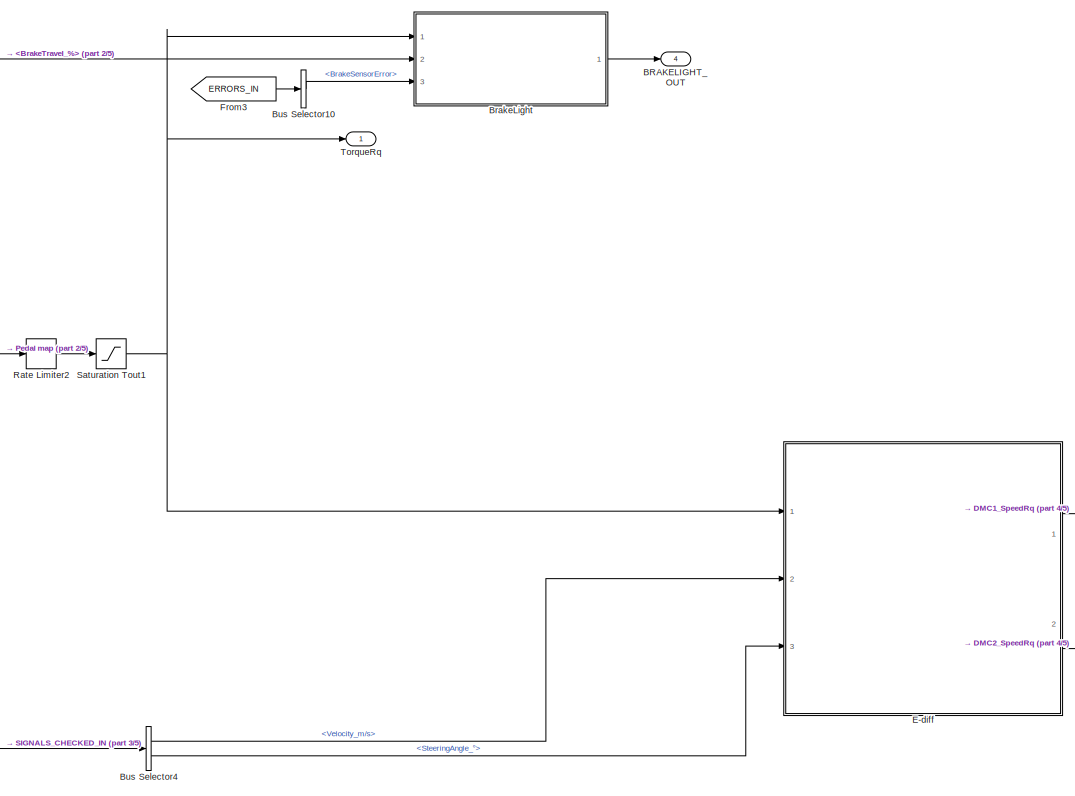
[diagram: PROCESSOR/DRIVE_ALGORITHM - part 1/5, top right region]
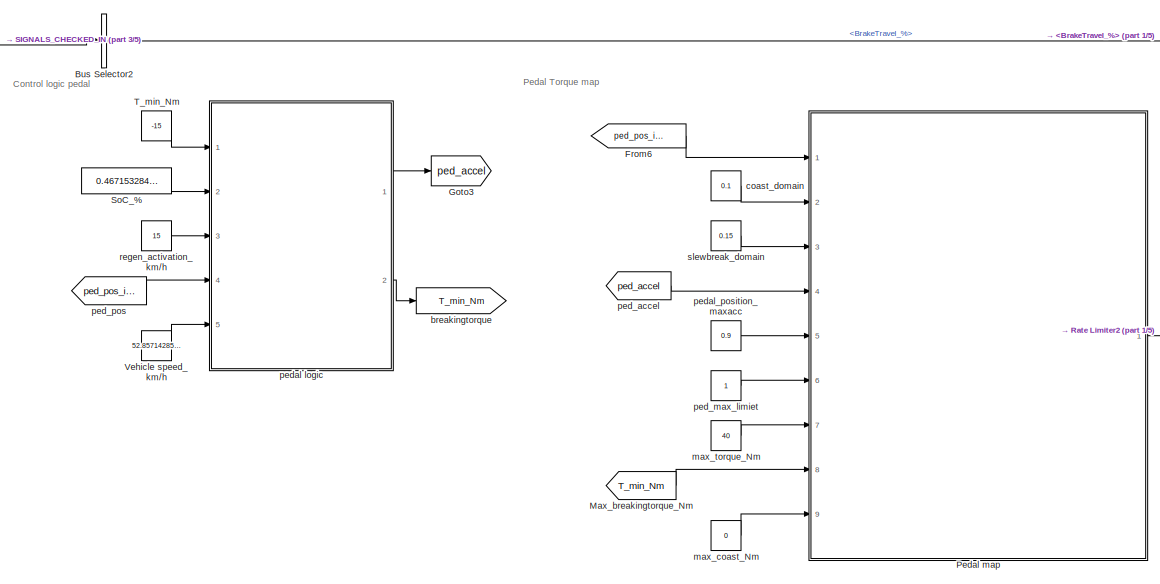
[diagram: PROCESSOR/DRIVE_ALGORITHM - part 2/5, top center region]
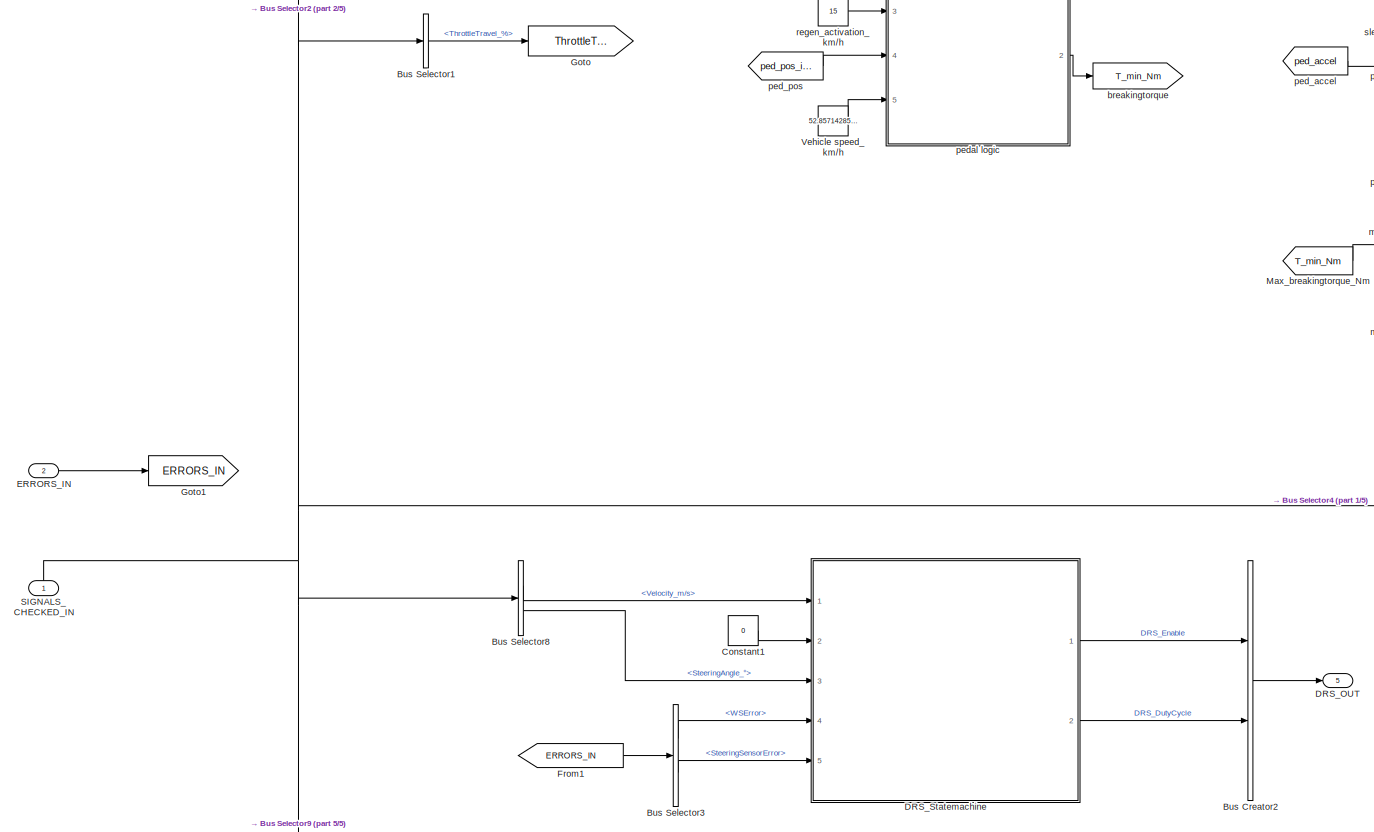
[diagram: PROCESSOR/DRIVE_ALGORITHM - part 3/5, middle left region]
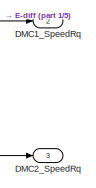
[diagram: PROCESSOR/DRIVE_ALGORITHM - part 4/5, middle right region]
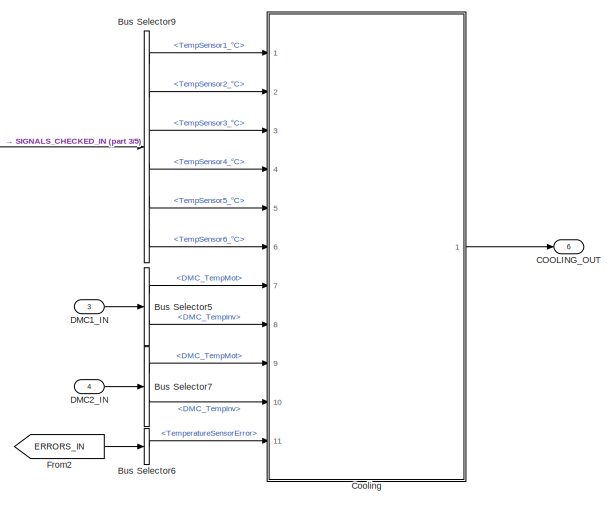
[diagram: PROCESSOR/DRIVE_ALGORITHM - part 5/5, bottom left region]
BLOCK [SubSystem] PROCESSOR/DRIVE_ALGORITHM
  Ports = [4, 6]
  RequestExecContextInheritance = off
BLOCK [Outport] PROCESSOR/DRIVE_ALGORITHM/BRAKELIGHT_OUT
  IconDisplay = Port number
  Port = 4
BLOCK [SubSystem] PROCESSOR/DRIVE_ALGORITHM/BrakeLight
  ErrorFcn = Stateflow.Translate.translate
  PermitHierarchicalResolution = ExplicitOnly
  Ports = [3, 1]
  RequestExecContextInheritance = off
  SFBlockType = MATLAB Function
  TreatAsAtomicUnit = on
BLOCK [Demux] PROCESSOR/DRIVE_ALGORITHM/BrakeLight/ Demux 
  Outputs = 1
  Ports = [1, 1]
BLOCK [S-Function] PROCESSOR/DRIVE_ALGORITHM/BrakeLight/ SFunction 
  EnableBusSupport = on
  FunctionName = sf_sfun
  PortCounts = [3 2]
  Ports = [3, 2]
  Tag = Stateflow S-Function StateMachine_v3 4
BLOCK [Terminator] PROCESSOR/DRIVE_ALGORITHM/BrakeLight/ Terminator 
BLOCK [Outport] PROCESSOR/DRIVE_ALGORITHM/BrakeLight/BrakeLightSignal
  IconDisplay = Port number
BLOCK [Inport] PROCESSOR/DRIVE_ALGORITHM/BrakeLight/BrakeSensorError
  IconDisplay = Port number
  Port = 3
BLOCK [Inport] PROCESSOR/DRIVE_ALGORITHM/BrakeLight/BrakeTravel
  IconDisplay = Port number
  Port = 2
BLOCK [Inport] PROCESSOR/DRIVE_ALGORITHM/BrakeLight/TorqueRq
  IconDisplay = Port number
BLOCK [BusCreator] PROCESSOR/DRIVE_ALGORITHM/Bus Creator2
  DisplayOption = bar
  Inputs = 2
  Ports = [2, 1]
BLOCK [BusSelector] PROCESSOR/DRIVE_ALGORITHM/Bus Selector1
  OutputSignals = ThrottleTravel_%
  Ports = [1, 1]
BLOCK [BusSelector] PROCESSOR/DRIVE_ALGORITHM/Bus Selector10
  OutputSignals = BrakeSensorError
  Ports = [1, 1]
BLOCK [BusSelector] PROCESSOR/DRIVE_ALGORITHM/Bus Selector2
  OutputSignals = BrakeTravel_%
  Ports = [1, 1]
BLOCK [BusSelector] PROCESSOR/DRIVE_ALGORITHM/Bus Selector3
  OutputSignals = WSError,SteeringSensorError
  Ports = [1, 2]
BLOCK [BusSelector] PROCESSOR/DRIVE_ALGORITHM/Bus Selector4
  OutputSignals = Velocity_m/s,SteeringAngle_°
  Ports = [1, 2]
BLOCK [BusSelector] PROCESSOR/DRIVE_ALGORITHM/Bus Selector5
  OutputSignals = DMC_TempMot,DMC_TempInv
  Ports = [1, 2]
BLOCK [BusSelector] PROCESSOR/DRIVE_ALGORITHM/Bus Selector6
  OutputSignals = TemperatureSensorError
  Ports = [1, 1]
BLOCK [BusSelector] PROCESSOR/DRIVE_ALGORITHM/Bus Selector7
  OutputSignals = DMC_TempMot,DMC_TempInv
  Ports = [1, 2]
BLOCK [BusSelector] PROCESSOR/DRIVE_ALGORITHM/Bus Selector8
  OutputSignals = Velocity_m/s,SteeringAngle_°
  Ports = [1, 2]
BLOCK [BusSelector] PROCESSOR/DRIVE_ALGORITHM/Bus Selector9
  OutputSignals = TempSensor1_°C,TempSensor2_°C,TempSensor3_°C,TempSensor4_°C,TempSensor5_°C,TempSensor6_°C
  Ports = [1, 6]
BLOCK [Outport] PROCESSOR/DRIVE_ALGORITHM/COOLING_OUT
  IconDisplay = Port number
  Port = 6
BLOCK [Constant] PROCESSOR/DRIVE_ALGORITHM/Constant1
  Value = 0
BLOCK [SubSystem] PROCESSOR/DRIVE_ALGORITHM/Cooling
  ErrorFcn = Stateflow.Translate.translate
  PermitHierarchicalResolution = ExplicitOnly
  Ports = [11, 1]
  RequestExecContextInheritance = off
  SFBlockType = MATLAB Function
  TreatAsAtomicUnit = on
BLOCK [Demux] PROCESSOR/DRIVE_ALGORITHM/Cooling/ Demux 
  Outputs = 1
  Ports = [1, 1]
BLOCK [S-Function] PROCESSOR/DRIVE_ALGORITHM/Cooling/ SFunction 
  EnableBusSupport = on
  FunctionName = sf_sfun
  PortCounts = [11 2]
  Ports = [11, 2]
  Tag = Stateflow S-Function StateMachine_v3 18
BLOCK [Terminator] PROCESSOR/DRIVE_ALGORITHM/Cooling/ Terminator 
BLOCK [Outport] PROCESSOR/DRIVE_ALGORITHM/Cooling/Cooling_Enable
  IconDisplay = Port number
BLOCK [Inport] PROCESSOR/DRIVE_ALGORITHM/Cooling/T1
  IconDisplay = Port number
BLOCK [Inport] PROCESSOR/DRIVE_ALGORITHM/Cooling/T2
  IconDisplay = Port number
  Port = 2
BLOCK [Inport] PROCESSOR/DRIVE_ALGORITHM/Cooling/T3
  IconDisplay = Port number
  Port = 3
BLOCK [Inport] PROCESSOR/DRIVE_ALGORITHM/Cooling/T4
  IconDisplay = Port number
  Port = 4
BLOCK [Inport] PROCESSOR/DRIVE_ALGORITHM/Cooling/T5
  IconDisplay = Port number
  Port = 5
BLOCK [Inport] PROCESSOR/DRIVE_ALGORITHM/Cooling/T6
  IconDisplay = Port number
  Port = 6
BLOCK [Inport] PROCESSOR/DRIVE_ALGORITHM/Cooling/Tdri_L
  IconDisplay = Port number
  Port = 10
BLOCK [Inport] PROCESSOR/DRIVE_ALGORITHM/Cooling/Tdri_R
  IconDisplay = Port number
  Port = 9
BLOCK [Inport] PROCESSOR/DRIVE_ALGORITHM/Cooling/Terr
  IconDisplay = Port number
  Port = 11
BLOCK [Inport] PROCESSOR/DRIVE_ALGORITHM/Cooling/Tmot_L
  IconDisplay = Port number
  Port = 8
BLOCK [Inport] PROCESSOR/DRIVE_ALGORITHM/Cooling/Tmot_R
  IconDisplay = Port number
  Port = 7
BLOCK [Inport] PROCESSOR/DRIVE_ALGORITHM/DMC1_IN
  IconDisplay = Port number
  Port = 3
BLOCK [Outport] PROCESSOR/DRIVE_ALGORITHM/DMC1_SpeedRq
  IconDisplay = Port number
  Port = 2
BLOCK [Inport] PROCESSOR/DRIVE_ALGORITHM/DMC2_IN
  IconDisplay = Port number
  Port = 4
BLOCK [Outport] PROCESSOR/DRIVE_ALGORITHM/DMC2_SpeedRq
  IconDisplay = Port number
  Port = 3
BLOCK [Outport] PROCESSOR/DRIVE_ALGORITHM/DRS_OUT
  IconDisplay = Port number
  Port = 5
BLOCK [SubSystem] PROCESSOR/DRIVE_ALGORITHM/DRS_Statemachine
  ErrorFcn = Stateflow.Translate.translate
  PermitHierarchicalResolution = ExplicitOnly
  Ports = [5, 2]
  RequestExecContextInheritance = off
  SFBlockType = Chart
  TreatAsAtomicUnit = on
BLOCK [Demux] PROCESSOR/DRIVE_ALGORITHM/DRS_Statemachine/ Demux 
  Outputs = 1
  Ports = [1, 1]
BLOCK [S-Function] PROCESSOR/DRIVE_ALGORITHM/DRS_Statemachine/ SFunction 
  EnableBusSupport = on
  FunctionName = sf_sfun
  PortCounts = [5 3]
  Ports = [5, 3]
  Tag = Stateflow S-Function StateMachine_v3 11
BLOCK [Terminator] PROCESSOR/DRIVE_ALGORITHM/DRS_Statemachine/ Terminator 
BLOCK [Outport] PROCESSOR/DRIVE_ALGORITHM/DRS_Statemachine/DRS
  IconDisplay = Port number
BLOCK [Outport] PROCESSOR/DRIVE_ALGORITHM/DRS_Statemachine/DutyCycle
  IconDisplay = Port number
  Port = 2
BLOCK [Inport] PROCESSOR/DRIVE_ALGORITHM/DRS_Statemachine/EnableDRS
  IconDisplay = Port number
  Port = 2
BLOCK [Inport] PROCESSOR/DRIVE_ALGORITHM/DRS_Statemachine/Speed
  IconDisplay = Port number
BLOCK [Inport] PROCESSOR/DRIVE_ALGORITHM/DRS_Statemachine/SteeringAngle
  IconDisplay = Port number
  Port = 3
BLOCK [Inport] PROCESSOR/DRIVE_ALGORITHM/DRS_Statemachine/SteeringAngleError
  IconDisplay = Port number
  Port = 5
BLOCK [Inport] PROCESSOR/DRIVE_ALGORITHM/DRS_Statemachine/WheelSpeedError
  IconDisplay = Port number
  Port = 4
BLOCK [SubSystem] PROCESSOR/DRIVE_ALGORITHM/E-diff
  Ports = [3, 2]
  RequestExecContextInheritance = off
BLOCK [BusSelector] PROCESSOR/DRIVE_ALGORITHM/E-diff/Bus Selector
  OutputSignals = WSError,SteeringSensorError
  Ports = [1, 2]
BLOCK [Constant] PROCESSOR/DRIVE_ALGORITHM/E-diff/Constant
  Value = 0
BLOCK [Outport] PROCESSOR/DRIVE_ALGORITHM/E-diff/DMC1_SpeedRq
  IconDisplay = Port number
BLOCK [Outport] PROCESSOR/DRIVE_ALGORITHM/E-diff/DMC2_SpeedRq
  IconDisplay = Port number
  Port = 2
BLOCK [SubSystem] PROCESSOR/DRIVE_ALGORITHM/E-diff/Differential_Statemachine
  ErrorFcn = Stateflow.Translate.translate
  PermitHierarchicalResolution = ExplicitOnly
  Ports = [6, 2]
  RequestExecContextInheritance = off
  SFBlockType = Chart
  TreatAsAtomicUnit = on
BLOCK [Demux] PROCESSOR/DRIVE_ALGORITHM/E-diff/Differential_Statemachine/ Demux 
  Outputs = 1
  Ports = [1, 1]
BLOCK [S-Function] PROCESSOR/DRIVE_ALGORITHM/E-diff/Differential_Statemachine/ SFunction 
  EnableBusSupport = on
  FunctionName = sf_sfun
  PortCounts = [6 3]
  Ports = [6, 3]
  Tag = Stateflow S-Function StateMachine_v3 14
BLOCK [Terminator] PROCESSOR/DRIVE_ALGORITHM/E-diff/Differential_Statemachine/ Terminator 
BLOCK [Outport] PROCESSOR/DRIVE_ALGORITHM/E-diff/Differential_Statemachine/DMC1_SpeedRq
  IconDisplay = Port number
BLOCK [Outport] PROCESSOR/DRIVE_ALGORITHM/E-diff/Differential_Statemachine/DMC2_SpeedRq
  IconDisplay = Port number
  Port = 2
BLOCK [Inport] PROCESSOR/DRIVE_ALGORITHM/E-diff/Differential_Statemachine/EnableDifferential
  IconDisplay = Port number
BLOCK [Inport] PROCESSOR/DRIVE_ALGORITHM/E-diff/Differential_Statemachine/SpeedRq1
  IconDisplay = Port number
  Port = 5
BLOCK [Inport] PROCESSOR/DRIVE_ALGORITHM/E-diff/Differential_Statemachine/SpeedRq2
  IconDisplay = Port number
  Port = 6
BLOCK [Inport] PROCESSOR/DRIVE_ALGORITHM/E-diff/Differential_Statemachine/SteeringAngle
  IconDisplay = Port number
  Port = 2
BLOCK [Inport] PROCESSOR/DRIVE_ALGORITHM/E-diff/Differential_Statemachine/SteeringAngleError
  IconDisplay = Port number
  Port = 4
BLOCK [Inport] PROCESSOR/DRIVE_ALGORITHM/E-diff/Differential_Statemachine/WheelSpeedError
  IconDisplay = Port number
  Port = 3
BLOCK [SubSystem] PROCESSOR/DRIVE_ALGORITHM/E-diff/E-Differential
  Ports = [3, 2]
  RequestExecContextInheritance = off
BLOCK [Inport] PROCESSOR/DRIVE_ALGORITHM/E-diff/E-Differential/Accelerating
  IconDisplay = Port number
BLOCK [Constant] PROCESSOR/DRIVE_ALGORITHM/E-diff/E-Differential/Constant
  Value = MaxSteeringAngle
BLOCK [Constant] PROCESSOR/DRIVE_ALGORITHM/E-diff/E-Differential/Constant1
  Value = TrackWidth
BLOCK [Constant] PROCESSOR/DRIVE_ALGORITHM/E-diff/E-Differential/Constant2
  Value = DifferentialFactor
BLOCK [Constant] PROCESSOR/DRIVE_ALGORITHM/E-diff/E-Differential/Constant3
  Value = TrackLength
BLOCK [Constant] PROCESSOR/DRIVE_ALGORITHM/E-diff/E-Differential/Constant4
  Value = GearRatio
BLOCK [Constant] PROCESSOR/DRIVE_ALGORITHM/E-diff/E-Differential/Constant5
  Value = TireRadius
BLOCK [Outport] PROCESSOR/DRIVE_ALGORITHM/E-diff/E-Differential/DMC1_SpeedRq
  IconDisplay = Port number
BLOCK [Outport] PROCESSOR/DRIVE_ALGORITHM/E-diff/E-Differential/DMC2_SpeedRq
  IconDisplay = Port number
  Port = 2
BLOCK [SubSystem] PROCESSOR/DRIVE_ALGORITHM/E-diff/E-Differential/Differential
  ErrorFcn = Stateflow.Translate.translate
  PermitHierarchicalResolution = ExplicitOnly
  Ports = [9, 2]
  RequestExecContextInheritance = off
  SFBlockType = MATLAB Function
  TreatAsAtomicUnit = on
BLOCK [Demux] PROCESSOR/DRIVE_ALGORITHM/E-diff/E-Differential/Differential/ Demux 
  Outputs = 1
  Ports = [1, 1]
BLOCK [S-Function] PROCESSOR/DRIVE_ALGORITHM/E-diff/E-Differential/Differential/ SFunction 
  EnableBusSupport = on
  FunctionName = sf_sfun
  PortCounts = [9 3]
  Ports = [9, 3]
  Tag = Stateflow S-Function StateMachine_v3 15
BLOCK [Terminator] PROCESSOR/DRIVE_ALGORITHM/E-diff/E-Differential/Differential/ Terminator 
BLOCK [Inport] PROCESSOR/DRIVE_ALGORITHM/E-diff/E-Differential/Differential/Accelerating
  IconDisplay = Port number
BLOCK [Inport] PROCESSOR/DRIVE_ALGORITHM/E-diff/E-Differential/Differential/DifferentialFactor
  IconDisplay = Port number
  Port = 4
BLOCK [Inport] PROCESSOR/DRIVE_ALGORITHM/E-diff/E-Differential/Differential/GearRatio
  IconDisplay = Port number
  Port = 8
BLOCK [Outport] PROCESSOR/DRIVE_ALGORITHM/E-diff/E-Differential/Differential/MaxSpeedLeft_rpm
  IconDisplay = Port number
  Port = 2
BLOCK [Outport] PROCESSOR/DRIVE_ALGORITHM/E-diff/E-Differential/Differential/MaxSpeedRight_rpm
  IconDisplay = Port number
BLOCK [Inport] PROCESSOR/DRIVE_ALGORITHM/E-diff/E-Differential/Differential/MaxSteeringAngle
  IconDisplay = Port number
  Port = 5
BLOCK [Inport] PROCESSOR/DRIVE_ALGORITHM/E-diff/E-Differential/Differential/SteeringAngle
  IconDisplay = Port number
  Port = 2
BLOCK [Inport] PROCESSOR/DRIVE_ALGORITHM/E-diff/E-Differential/Differential/TireRadius
  IconDisplay = Port number
  Port = 9
BLOCK [Inport] PROCESSOR/DRIVE_ALGORITHM/E-diff/E-Differential/Differential/TrackLenght
  IconDisplay = Port number
  Port = 7
BLOCK [Inport] PROCESSOR/DRIVE_ALGORITHM/E-diff/E-Differential/Differential/TrackWidth
  IconDisplay = Port number
  Port = 6
BLOCK [Inport] PROCESSOR/DRIVE_ALGORITHM/E-diff/E-Differential/Differential/Velocity
  IconDisplay = Port number
  Port = 3
BLOCK [Inport] PROCESSOR/DRIVE_ALGORITHM/E-diff/E-Differential/SteeringAngle
  IconDisplay = Port number
  Port = 3
BLOCK [Inport] PROCESSOR/DRIVE_ALGORITHM/E-diff/E-Differential/Velocity
  IconDisplay = Port number
  Port = 2
BLOCK [From] PROCESSOR/DRIVE_ALGORITHM/E-diff/From
  GotoTag = ERRORS_IN
BLOCK [Logic] PROCESSOR/DRIVE_ALGORITHM/E-diff/Logical Operator1
  AllPortsSameDT = off
  Operator = OR
  OutDataTypeStr = boolean
  Ports = [2, 1]
BLOCK [Memory] PROCESSOR/DRIVE_ALGORITHM/E-diff/Memory
  InheritSampleTime = on
  X0 = zeros(10,1)
BLOCK [Memory] PROCESSOR/DRIVE_ALGORITHM/E-diff/Memory1
  InheritSampleTime = on
  X0 = zeros(10,1)
BLOCK [Inport] PROCESSOR/DRIVE_ALGORITHM/E-diff/SteeringAngle_°
  IconDisplay = Port number
  Port = 3
BLOCK [SubSystem] PROCESSOR/DRIVE_ALGORITHM/E-diff/ThrottleStatus
  ErrorFcn = Stateflow.Translate.translate
  PermitHierarchicalResolution = ExplicitOnly
  Ports = [2, 2]
  RequestExecContextInheritance = off
  SFBlockType = MATLAB Function
  TreatAsAtomicUnit = on
BLOCK [Demux] PROCESSOR/DRIVE_ALGORITHM/E-diff/ThrottleStatus/ Demux 
  Outputs = 1
  Ports = [1, 1]
BLOCK [S-Function] PROCESSOR/DRIVE_ALGORITHM/E-diff/ThrottleStatus/ SFunction 
  EnableBusSupport = on
  FunctionName = sf_sfun
  PortCounts = [2 3]
  Ports = [2, 3]
  Tag = Stateflow S-Function StateMachine_v3 5
BLOCK [Terminator] PROCESSOR/DRIVE_ALGORITHM/E-diff/ThrottleStatus/ Terminator 
BLOCK [Outport] PROCESSOR/DRIVE_ALGORITHM/E-diff/ThrottleStatus/Accelerating
  IconDisplay = Port number
BLOCK [Outport] PROCESSOR/DRIVE_ALGORITHM/E-diff/ThrottleStatus/ArrayNext
  IconDisplay = Port number
  Port = 2
BLOCK [Inport] PROCESSOR/DRIVE_ALGORITHM/E-diff/ThrottleStatus/ArrayPrevious
  IconDisplay = Port number
  Port = 2
BLOCK [Inport] PROCESSOR/DRIVE_ALGORITHM/E-diff/ThrottleStatus/CurrentTorqueRequest
  IconDisplay = Port number
BLOCK [Inport] PROCESSOR/DRIVE_ALGORITHM/E-diff/Trequest
  IconDisplay = Port number
BLOCK [SubSystem] PROCESSOR/DRIVE_ALGORITHM/E-diff/VelocityStatus
  ErrorFcn = Stateflow.Translate.translate
  PermitHierarchicalResolution = ExplicitOnly
  Ports = [2, 2]
  RequestExecContextInheritance = off
  SFBlockType = MATLAB Function
  TreatAsAtomicUnit = on
BLOCK [Demux] PROCESSOR/DRIVE_ALGORITHM/E-diff/VelocityStatus/ Demux 
  Outputs = 1
  Ports = [1, 1]
BLOCK [S-Function] PROCESSOR/DRIVE_ALGORITHM/E-diff/VelocityStatus/ SFunction 
  EnableBusSupport = on
  FunctionName = sf_sfun
  PortCounts = [2 3]
  Ports = [2, 3]
  Tag = Stateflow S-Function StateMachine_v3 16
BLOCK [Terminator] PROCESSOR/DRIVE_ALGORITHM/E-diff/VelocityStatus/ Terminator 
BLOCK [Outport] PROCESSOR/DRIVE_ALGORITHM/E-diff/VelocityStatus/Accelerating
  IconDisplay = Port number
BLOCK [Outport] PROCESSOR/DRIVE_ALGORITHM/E-diff/VelocityStatus/ArrayNext
  IconDisplay = Port number
  Port = 2
BLOCK [Inport] PROCESSOR/DRIVE_ALGORITHM/E-diff/VelocityStatus/ArrayPrevious
  IconDisplay = Port number
  Port = 2
BLOCK [Inport] PROCESSOR/DRIVE_ALGORITHM/E-diff/VelocityStatus/CurrentVelocity
  IconDisplay = Port number
BLOCK [Inport] PROCESSOR/DRIVE_ALGORITHM/E-diff/Velocity_mps
  IconDisplay = Port number
  Port = 2
BLOCK [Inport] PROCESSOR/DRIVE_ALGORITHM/ERRORS_IN
  IconDisplay = Port number
  Port = 2
BLOCK [From] PROCESSOR/DRIVE_ALGORITHM/From1
  GotoTag = ERRORS_IN
BLOCK [From] PROCESSOR/DRIVE_ALGORITHM/From2
  GotoTag = ERRORS_IN
BLOCK [From] PROCESSOR/DRIVE_ALGORITHM/From3
  GotoTag = ERRORS_IN
BLOCK [From] PROCESSOR/DRIVE_ALGORITHM/From6
  GotoTag = ped_pos_idle
BLOCK [Goto] PROCESSOR/DRIVE_ALGORITHM/Goto
  GotoTag = ThrottleTravel
BLOCK [Goto] PROCESSOR/DRIVE_ALGORITHM/Goto1
  GotoTag = ERRORS_IN
BLOCK [Goto] PROCESSOR/DRIVE_ALGORITHM/Goto3
  GotoTag = ped_accel
BLOCK [From] PROCESSOR/DRIVE_ALGORITHM/Max_breakingtorque_Nm
  GotoTag = T_min_Nm
BLOCK [SubSystem] PROCESSOR/DRIVE_ALGORITHM/Pedal map
  ErrorFcn = Stateflow.Translate.translate
  PermitHierarchicalResolution = ExplicitOnly
  Ports = [9, 1]
  RequestExecContextInheritance = off
  SFBlockType = MATLAB Function
  TreatAsAtomicUnit = on
BLOCK [Demux] PROCESSOR/DRIVE_ALGORITHM/Pedal map/ Demux 
  Outputs = 1
  Ports = [1, 1]
BLOCK [S-Function] PROCESSOR/DRIVE_ALGORITHM/Pedal map/ SFunction 
  EnableBusSupport = on
  FunctionName = sf_sfun
  PortCounts = [9 2]
  Ports = [9, 2]
  Tag = Stateflow S-Function StateMachine_v3 8
BLOCK [Terminator] PROCESSOR/DRIVE_ALGORITHM/Pedal map/ Terminator 
BLOCK [Inport] PROCESSOR/DRIVE_ALGORITHM/Pedal map/T_coast
  IconDisplay = Port number
  Port = 9
BLOCK [Inport] PROCESSOR/DRIVE_ALGORITHM/Pedal map/T_max
  IconDisplay = Port number
  Port = 7
BLOCK [Inport] PROCESSOR/DRIVE_ALGORITHM/Pedal map/T_min
  IconDisplay = Port number
  Port = 8
BLOCK [Outport] PROCESSOR/DRIVE_ALGORITHM/Pedal map/T_out
  IconDisplay = Port number
BLOCK [Inport] PROCESSOR/DRIVE_ALGORITHM/Pedal map/coast_dom
  IconDisplay = Port number
  Port = 2
BLOCK [Inport] PROCESSOR/DRIVE_ALGORITHM/Pedal map/ped_accel
  IconDisplay = Port number
  Port = 4
BLOCK [Inport] PROCESSOR/DRIVE_ALGORITHM/Pedal map/ped_max
  IconDisplay = Port number
  Port = 5
BLOCK [Inport] PROCESSOR/DRIVE_ALGORITHM/Pedal map/ped_max_limit
  IconDisplay = Port number
  Port = 6
BLOCK [Inport] PROCESSOR/DRIVE_ALGORITHM/Pedal map/ped_pos
  IconDisplay = Port number
BLOCK [Inport] PROCESSOR/DRIVE_ALGORITHM/Pedal map/slewbreak_dom
  IconDisplay = Port number
  Port = 3
BLOCK [RateLimiter] PROCESSOR/DRIVE_ALGORITHM/Rate Limiter2
  FallingSlewLimit = -20
  RisingSlewLimit = 20
  SampleTimeMode = inherited
BLOCK [Inport] PROCESSOR/DRIVE_ALGORITHM/SIGNALS_CHECKED_IN
  IconDisplay = Port number
BLOCK [Saturate] PROCESSOR/DRIVE_ALGORITHM/Saturation Tout1
  InputPortMap = u0
  LowerLimit = -39
  Ports = [1, 1]
  UpperLimit = 39
BLOCK [Constant] PROCESSOR/DRIVE_ALGORITHM/SoC_%
  Value = 0.4671532846715328
BLOCK [Constant] PROCESSOR/DRIVE_ALGORITHM/T_min_Nm
  Value = -15
BLOCK [Outport] PROCESSOR/DRIVE_ALGORITHM/TorqueRq
  IconDisplay = Port number
BLOCK [Constant] PROCESSOR/DRIVE_ALGORITHM/Vehicle speed_km//h
  Value = 52.85714285714285
BLOCK [Goto] PROCESSOR/DRIVE_ALGORITHM/breakingtorque
  GotoTag = T_min_Nm
BLOCK [Constant] PROCESSOR/DRIVE_ALGORITHM/coast_domain
  Value = 0.1
BLOCK [Constant] PROCESSOR/DRIVE_ALGORITHM/max_coast_Nm
  Value = 0
BLOCK [Constant] PROCESSOR/DRIVE_ALGORITHM/max_torque_Nm
  Value = 40
BLOCK [From] PROCESSOR/DRIVE_ALGORITHM/ped_accel
  GotoTag = ped_accel
BLOCK [Constant] PROCESSOR/DRIVE_ALGORITHM/ped_max_limiet
BLOCK [From] PROCESSOR/DRIVE_ALGORITHM/ped_pos
  GotoTag = ped_pos_idle
BLOCK [SubSystem] PROCESSOR/DRIVE_ALGORITHM/pedal logic
  ErrorFcn = Stateflow.Translate.translate
  PermitHierarchicalResolution = ExplicitOnly
  Ports = [5, 2]
  RequestExecContextInheritance = off
  SFBlockType = Chart
  TreatAsAtomicUnit = on
BLOCK [Demux] PROCESSOR/DRIVE_ALGORITHM/pedal logic/ Demux 
  Outputs = 1
  Ports = [1, 1]
BLOCK [S-Function] PROCESSOR/DRIVE_ALGORITHM/pedal logic/ SFunction 
  EnableBusSupport = on
  FunctionName = sf_sfun
  PortCounts = [5 3]
  Ports = [5, 3]
  Tag = Stateflow S-Function StateMachine_v3 12
BLOCK [Terminator] PROCESSOR/DRIVE_ALGORITHM/pedal logic/ Terminator 
BLOCK [Inport] PROCESSOR/DRIVE_ALGORITHM/pedal logic/SoC
  IconDisplay = Port number
  Port = 2
BLOCK [Inport] PROCESSOR/DRIVE_ALGORITHM/pedal logic/T_min
  IconDisplay = Port number
BLOCK [Outport] PROCESSOR/DRIVE_ALGORITHM/pedal logic/T_regen
  IconDisplay = Port number
  Port = 2
BLOCK [Outport] PROCESSOR/DRIVE_ALGORITHM/pedal logic/ped_accel
  IconDisplay = Port number
BLOCK [Inport] PROCESSOR/DRIVE_ALGORITHM/pedal logic/ped_pos
  IconDisplay = Port number
  Port = 4
BLOCK [Inport] PROCESSOR/DRIVE_ALGORITHM/pedal logic/v_max
  IconDisplay = Port number
  Port = 3
BLOCK [Inport] PROCESSOR/DRIVE_ALGORITHM/pedal logic/v_vehicle
  IconDisplay = Port number
  Port = 5
BLOCK [Constant] PROCESSOR/DRIVE_ALGORITHM/pedal_position_maxacc
  Value = 0.9
BLOCK [Constant] PROCESSOR/DRIVE_ALGORITHM/regen_activation_km//h
  Value = 15
BLOCK [Constant] PROCESSOR/DRIVE_ALGORITHM/slewbreak_domain
  Value = 0.15
BLOCK [Outport] PROCESSOR/DRS_OUT
  IconDisplay = Port number
  Port = 6
BLOCK [Inport] PROCESSOR/ERRORS_IN
  IconDisplay = Port number
  Port = 4
BLOCK [Outport] PROCESSOR/ERRORS_OUT
  IconDisplay = Port number
  Port = 4
BLOCK [Outport] PROCESSOR/RTDS
  IconDisplay = Port number
  Port = 5
BLOCK [Inport] PROCESSOR/SIGNALS_CHECKED_IN
  IconDisplay = Port number
  Port = 3
BLOCK [Outport] PROCESSOR/SIGNALS_CHECKED_OUT
  IconDisplay = Port number
  Port = 3
BLOCK [SubSystem] RTI Data
  CopyFcn = if exist('rtidc'), try,  rtidc('DataHostBlockClbCopy', gcbh); catch, disp(['Warning: ''CopyFcn'' for RTI Data block failed: ' lasterr]); end, end,
  DeleteFcn = if exist('rtidc'), try,  rtidc('DataHostBlockClbDelete', gcbh); catch, disp(['Warning: ''DeleteFcn'' for RTI Data block failed: ' lasterr]); end, end,
  LoadFcn = if exist('rtidc'), try,  rtidc('DataHostBlockClbLoad', gcbh); catch, disp(['Warning: ''LoadFcn'' for RTI Data block failed: ' lasterr]); end, end,
  ModelCloseFcn = if exist('rtidc'), try,  rtidc('DataHostBlockClbModelClose', gcbh); catch, disp(['Warning: ''ModelCloseFcn'' for RTI Data block failed: ' lasterr]); end, end,
  NameChangeFcn = if exist('rtidc'), try,  rtidc('DataHostBlockClbNameChange', gcbh); catch, disp(['Warning: ''NameChangeFcn'' for RTI Data block failed: ' lasterr]); end, end,
  Ports = []
  PostSaveFcn = if exist('rtidc'), try,  rtidc('DataHostBlockClbPostSave', gcbh); catch, disp(['Warning: ''PostSaveFcn'' for RTI Data block failed: ' lasterr]); end, end,
  PreSaveFcn = if exist('rtidc'), try,  rtidc('DataHostBlockClbPreSave', gcbh); catch, disp(['Warning: ''PreSaveFcn'' for RTI Data block failed: ' lasterr]); end, end,
  RequestExecContextInheritance = off
  Tag = struct('RTIDataServer',struct('RTIDataServerVs','2','RTIModelDescription','struct(''main'',''StateMachine_v3'',''sub'','''',''isMp'',0)'))
BLOCK [SubSystem] RTI Data/RTI Data Store
  Ports = []
  RequestExecContextInheritance = off
  Tag = struct('private',struct('version',struct('dsVer',uint32(2)),'access',struct('modified',['24-May-2016 16:00:26'],'type','Model','isPerm',1)),'public',struct('main',struct('data',[]),'sub',struct('name',{{'StateMachine_v3'}},'data',{{struct('TH',struct('thTaskInfo',struct('taskType',{'TIMER','HWINT','TMRINT','SWINT','GLINT'},'tasksNumOf',{4,0,0,0,0},'srcIds',{{'TIMERA','TIMERA2','TIMERA3','TIMERA4'}...<+1555ch>
BLOCK [SubSystem] RTI Data/RTI Data Store/RTI Data Store
  Ports = []
  RequestExecContextInheritance = off
BLOCK [SubSystem] RTI Data/RTI Data Store/RTI Data Store/RTI Data Store
  Ports = []
  RequestExecContextInheritance = off
BLOCK [SubSystem] RTI Data/RTI Data Store/RTI Data Store/RTI Data Store/RTI Data Store
  Ports = []
  RequestExecContextInheritance = off
ANNOTATION INPUT/INPUT_DMC: DMC1
ANNOTATION INPUT/INPUT_DMC: DMC2
ANNOTATION INPUT/INPUT_SIGNALS: Analog Inputs
ANNOTATION INPUT/INPUT_SIGNALS: CAN Inputs
ANNOTATION INPUT/INPUT_SIGNALS: Digital Inputs
ANNOTATION OUTPUT: ANALOG OUTPUTS
ANNOTATION OUTPUT: CAN OUTPUTS
ANNOTATION OUTPUT: ControlDeskOutputs
ANNOTATION PROCESSOR/DRIVE_ALGORITHM: Control logic pedal
ANNOTATION PROCESSOR/DRIVE_ALGORITHM: Pedal Torque map
LINE INPUT/INPUT_DMC/Bus Creator1:1 -> INPUT/INPUT_DMC/DMC2_ERR:1
LINE INPUT/INPUT_DMC/Bus Creator2:1 -> INPUT/INPUT_DMC/DMC2:1
LINE INPUT/INPUT_DMC/Bus Creator4:1 -> INPUT/INPUT_DMC/DMC1:1
LINE INPUT/INPUT_DMC/Bus Creator:1 -> INPUT/INPUT_DMC/DMC1_ERROR:1
LINE INPUT/INPUT_DMC/DMC2_ACTV:1 -> INPUT/INPUT_DMC/Bus Creator2:23
LINE INPUT/INPUT_DMC/DMC2_ACTV:2 -> INPUT/INPUT_DMC/Bus Creator2:24
LINE INPUT/INPUT_DMC/DMC2_ACTV:3 -> INPUT/INPUT_DMC/Bus Creator2:25
LINE INPUT/INPUT_DMC/DMC2_ACTV:4 -> INPUT/INPUT_DMC/Bus Creator2:26
LINE INPUT/INPUT_DMC/DMC2_ERR1:1 -> INPUT/INPUT_DMC/Bus Creator1:1
LINE INPUT/INPUT_DMC/DMC2_ERR1:10 -> INPUT/INPUT_DMC/Bus Creator1:10
LINE INPUT/INPUT_DMC/DMC2_ERR1:11 -> INPUT/INPUT_DMC/Bus Creator1:11
LINE INPUT/INPUT_DMC/DMC2_ERR1:12 -> INPUT/INPUT_DMC/Bus Creator1:12
LINE INPUT/INPUT_DMC/DMC2_ERR1:13 -> INPUT/INPUT_DMC/Bus Creator1:13
LINE INPUT/INPUT_DMC/DMC2_ERR1:14 -> INPUT/INPUT_DMC/Bus Creator1:14
LINE INPUT/INPUT_DMC/DMC2_ERR1:15 -> INPUT/INPUT_DMC/Bus Creator1:15
LINE INPUT/INPUT_DMC/DMC2_ERR1:16 -> INPUT/INPUT_DMC/Bus Creator1:16
LINE INPUT/INPUT_DMC/DMC2_ERR1:17 -> INPUT/INPUT_DMC/Bus Creator1:17
LINE INPUT/INPUT_DMC/DMC2_ERR1:18 -> INPUT/INPUT_DMC/Bus Creator1:18
LINE INPUT/INPUT_DMC/DMC2_ERR1:19 -> INPUT/INPUT_DMC/Bus Creator1:19
LINE INPUT/INPUT_DMC/DMC2_ERR1:2 -> INPUT/INPUT_DMC/Bus Creator1:2
LINE INPUT/INPUT_DMC/DMC2_ERR1:20 -> INPUT/INPUT_DMC/Bus Creator1:20
LINE INPUT/INPUT_DMC/DMC2_ERR1:21 -> INPUT/INPUT_DMC/Bus Creator1:21
LINE INPUT/INPUT_DMC/DMC2_ERR1:22 -> INPUT/INPUT_DMC/Bus Creator1:22
LINE INPUT/INPUT_DMC/DMC2_ERR1:23 -> INPUT/INPUT_DMC/Bus Creator1:23
LINE INPUT/INPUT_DMC/DMC2_ERR1:24 -> INPUT/INPUT_DMC/Bus Creator1:24
LINE INPUT/INPUT_DMC/DMC2_ERR1:25 -> INPUT/INPUT_DMC/Bus Creator1:25
LINE INPUT/INPUT_DMC/DMC2_ERR1:26 -> INPUT/INPUT_DMC/Bus Creator1:26
LINE INPUT/INPUT_DMC/DMC2_ERR1:27 -> INPUT/INPUT_DMC/Bus Creator1:27
LINE INPUT/INPUT_DMC/DMC2_ERR1:28 -> INPUT/INPUT_DMC/Bus Creator1:28
LINE INPUT/INPUT_DMC/DMC2_ERR1:29 -> INPUT/INPUT_DMC/Bus Creator1:29
LINE INPUT/INPUT_DMC/DMC2_ERR1:3 -> INPUT/INPUT_DMC/Bus Creator1:3
LINE INPUT/INPUT_DMC/DMC2_ERR1:30 -> INPUT/INPUT_DMC/Bus Creator1:30
LINE INPUT/INPUT_DMC/DMC2_ERR1:31 -> INPUT/INPUT_DMC/Bus Creator1:31
LINE INPUT/INPUT_DMC/DMC2_ERR1:32 -> INPUT/INPUT_DMC/Bus Creator1:32
LINE INPUT/INPUT_DMC/DMC2_ERR1:33 -> INPUT/INPUT_DMC/Bus Creator1:33
LINE INPUT/INPUT_DMC/DMC2_ERR1:34 -> INPUT/INPUT_DMC/Bus Creator1:34
LINE INPUT/INPUT_DMC/DMC2_ERR1:35 -> INPUT/INPUT_DMC/Bus Creator1:35
LINE INPUT/INPUT_DMC/DMC2_ERR1:36 -> INPUT/INPUT_DMC/Bus Creator1:36
LINE INPUT/INPUT_DMC/DMC2_ERR1:37 -> INPUT/INPUT_DMC/Bus Creator1:37
LINE INPUT/INPUT_DMC/DMC2_ERR1:38 -> INPUT/INPUT_DMC/Bus Creator1:38
LINE INPUT/INPUT_DMC/DMC2_ERR1:4 -> INPUT/INPUT_DMC/Bus Creator1:4
LINE INPUT/INPUT_DMC/DMC2_ERR1:5 -> INPUT/INPUT_DMC/Bus Creator1:5
LINE INPUT/INPUT_DMC/DMC2_ERR1:6 -> INPUT/INPUT_DMC/Bus Creator1:6
LINE INPUT/INPUT_DMC/DMC2_ERR1:7 -> INPUT/INPUT_DMC/Bus Creator1:7
LINE INPUT/INPUT_DMC/DMC2_ERR1:8 -> INPUT/INPUT_DMC/Bus Creator1:8
LINE INPUT/INPUT_DMC/DMC2_ERR1:9 -> INPUT/INPUT_DMC/Bus Creator1:9
LINE INPUT/INPUT_DMC/DMC2_TEMP:1 -> INPUT/INPUT_DMC/Bus Creator2:20
LINE INPUT/INPUT_DMC/DMC2_TEMP:2 -> INPUT/INPUT_DMC/Bus Creator2:21
LINE INPUT/INPUT_DMC/DMC2_TEMP:3 -> INPUT/INPUT_DMC/Bus Creator2:22
LINE INPUT/INPUT_DMC/DMC2_TRQS2:1 -> INPUT/INPUT_DMC/Bus Creator2:27
LINE INPUT/INPUT_DMC/DMC2_TRQS2:2 -> INPUT/INPUT_DMC/Bus Creator2:28
LINE INPUT/INPUT_DMC/DMC2_TRQS2:3 -> INPUT/INPUT_DMC/Bus Creator2:29
LINE INPUT/INPUT_DMC/DMC2_TRQS:1 -> INPUT/INPUT_DMC/Bus Creator2:1
LINE INPUT/INPUT_DMC/DMC2_TRQS:10 -> INPUT/INPUT_DMC/Bus Creator2:10
LINE INPUT/INPUT_DMC/DMC2_TRQS:11 -> INPUT/INPUT_DMC/Bus Creator2:11
LINE INPUT/INPUT_DMC/DMC2_TRQS:12 -> INPUT/INPUT_DMC/Bus Creator2:12
LINE INPUT/INPUT_DMC/DMC2_TRQS:13 -> INPUT/INPUT_DMC/Bus Creator2:13
LINE INPUT/INPUT_DMC/DMC2_TRQS:14 -> INPUT/INPUT_DMC/Bus Creator2:14
LINE INPUT/INPUT_DMC/DMC2_TRQS:15 -> INPUT/INPUT_DMC/Bus Creator2:15
LINE INPUT/INPUT_DMC/DMC2_TRQS:16 -> INPUT/INPUT_DMC/Bus Creator2:16
LINE INPUT/INPUT_DMC/DMC2_TRQS:17 -> INPUT/INPUT_DMC/Bus Creator2:17
LINE INPUT/INPUT_DMC/DMC2_TRQS:18 -> INPUT/INPUT_DMC/Bus Creator2:18
LINE INPUT/INPUT_DMC/DMC2_TRQS:19 -> INPUT/INPUT_DMC/Bus Creator2:19
LINE INPUT/INPUT_DMC/DMC2_TRQS:2 -> INPUT/INPUT_DMC/Bus Creator2:2
LINE INPUT/INPUT_DMC/DMC2_TRQS:3 -> INPUT/INPUT_DMC/Bus Creator2:3
LINE INPUT/INPUT_DMC/DMC2_TRQS:4 -> INPUT/INPUT_DMC/Bus Creator2:4
LINE INPUT/INPUT_DMC/DMC2_TRQS:5 -> INPUT/INPUT_DMC/Bus Creator2:5
LINE INPUT/INPUT_DMC/DMC2_TRQS:6 -> INPUT/INPUT_DMC/Bus Creator2:6
LINE INPUT/INPUT_DMC/DMC2_TRQS:7 -> INPUT/INPUT_DMC/Bus Creator2:7
LINE INPUT/INPUT_DMC/DMC2_TRQS:8 -> INPUT/INPUT_DMC/Bus Creator2:8
LINE INPUT/INPUT_DMC/DMC2_TRQS:9 -> INPUT/INPUT_DMC/Bus Creator2:9
LINE INPUT/INPUT_DMC/DMC_ACTV:1 -> INPUT/INPUT_DMC/Bus Creator4:23
LINE INPUT/INPUT_DMC/DMC_ACTV:2 -> INPUT/INPUT_DMC/Bus Creator4:24
LINE INPUT/INPUT_DMC/DMC_ACTV:3 -> INPUT/INPUT_DMC/Bus Creator4:25
LINE INPUT/INPUT_DMC/DMC_ACTV:4 -> INPUT/INPUT_DMC/Bus Creator4:26
LINE INPUT/INPUT_DMC/DMC_ERR:1 -> INPUT/INPUT_DMC/Bus Creator:1
LINE INPUT/INPUT_DMC/DMC_ERR:10 -> INPUT/INPUT_DMC/Bus Creator:10
LINE INPUT/INPUT_DMC/DMC_ERR:11 -> INPUT/INPUT_DMC/Bus Creator:11
LINE INPUT/INPUT_DMC/DMC_ERR:12 -> INPUT/INPUT_DMC/Bus Creator:12
LINE INPUT/INPUT_DMC/DMC_ERR:13 -> INPUT/INPUT_DMC/Bus Creator:13
LINE INPUT/INPUT_DMC/DMC_ERR:14 -> INPUT/INPUT_DMC/Bus Creator:14
LINE INPUT/INPUT_DMC/DMC_ERR:15 -> INPUT/INPUT_DMC/Bus Creator:15
LINE INPUT/INPUT_DMC/DMC_ERR:16 -> INPUT/INPUT_DMC/Bus Creator:16
LINE INPUT/INPUT_DMC/DMC_ERR:17 -> INPUT/INPUT_DMC/Bus Creator:17
LINE INPUT/INPUT_DMC/DMC_ERR:18 -> INPUT/INPUT_DMC/Bus Creator:18
LINE INPUT/INPUT_DMC/DMC_ERR:19 -> INPUT/INPUT_DMC/Bus Creator:19
LINE INPUT/INPUT_DMC/DMC_ERR:2 -> INPUT/INPUT_DMC/Bus Creator:2
LINE INPUT/INPUT_DMC/DMC_ERR:20 -> INPUT/INPUT_DMC/Bus Creator:20
LINE INPUT/INPUT_DMC/DMC_ERR:21 -> INPUT/INPUT_DMC/Bus Creator:21
LINE INPUT/INPUT_DMC/DMC_ERR:22 -> INPUT/INPUT_DMC/Bus Creator:22
LINE INPUT/INPUT_DMC/DMC_ERR:23 -> INPUT/INPUT_DMC/Bus Creator:23
LINE INPUT/INPUT_DMC/DMC_ERR:24 -> INPUT/INPUT_DMC/Bus Creator:24
LINE INPUT/INPUT_DMC/DMC_ERR:25 -> INPUT/INPUT_DMC/Bus Creator:25
LINE INPUT/INPUT_DMC/DMC_ERR:26 -> INPUT/INPUT_DMC/Bus Creator:26
LINE INPUT/INPUT_DMC/DMC_ERR:27 -> INPUT/INPUT_DMC/Bus Creator:27
LINE INPUT/INPUT_DMC/DMC_ERR:28 -> INPUT/INPUT_DMC/Bus Creator:28
LINE INPUT/INPUT_DMC/DMC_ERR:29 -> INPUT/INPUT_DMC/Bus Creator:29
LINE INPUT/INPUT_DMC/DMC_ERR:3 -> INPUT/INPUT_DMC/Bus Creator:3
LINE INPUT/INPUT_DMC/DMC_ERR:30 -> INPUT/INPUT_DMC/Bus Creator:30
LINE INPUT/INPUT_DMC/DMC_ERR:31 -> INPUT/INPUT_DMC/Bus Creator:31
LINE INPUT/INPUT_DMC/DMC_ERR:32 -> INPUT/INPUT_DMC/Bus Creator:32
LINE INPUT/INPUT_DMC/DMC_ERR:33 -> INPUT/INPUT_DMC/Bus Creator:33
LINE INPUT/INPUT_DMC/DMC_ERR:34 -> INPUT/INPUT_DMC/Bus Creator:34
LINE INPUT/INPUT_DMC/DMC_ERR:35 -> INPUT/INPUT_DMC/Bus Creator:35
LINE INPUT/INPUT_DMC/DMC_ERR:36 -> INPUT/INPUT_DMC/Bus Creator:36
LINE INPUT/INPUT_DMC/DMC_ERR:37 -> INPUT/INPUT_DMC/Bus Creator:37
LINE INPUT/INPUT_DMC/DMC_ERR:38 -> INPUT/INPUT_DMC/Bus Creator:38
LINE INPUT/INPUT_DMC/DMC_ERR:4 -> INPUT/INPUT_DMC/Bus Creator:4
LINE INPUT/INPUT_DMC/DMC_ERR:5 -> INPUT/INPUT_DMC/Bus Creator:5
LINE INPUT/INPUT_DMC/DMC_ERR:6 -> INPUT/INPUT_DMC/Bus Creator:6
LINE INPUT/INPUT_DMC/DMC_ERR:7 -> INPUT/INPUT_DMC/Bus Creator:7
LINE INPUT/INPUT_DMC/DMC_ERR:8 -> INPUT/INPUT_DMC/Bus Creator:8
LINE INPUT/INPUT_DMC/DMC_ERR:9 -> INPUT/INPUT_DMC/Bus Creator:9
LINE INPUT/INPUT_DMC/DMC_TEMP:1 -> INPUT/INPUT_DMC/Bus Creator4:20
LINE INPUT/INPUT_DMC/DMC_TEMP:2 -> INPUT/INPUT_DMC/Bus Creator4:21
LINE INPUT/INPUT_DMC/DMC_TEMP:3 -> INPUT/INPUT_DMC/Bus Creator4:22
LINE INPUT/INPUT_DMC/DMC_TRQS1:1 -> INPUT/INPUT_DMC/Bus Creator4:1
LINE INPUT/INPUT_DMC/DMC_TRQS1:10 -> INPUT/INPUT_DMC/Bus Creator4:10
LINE INPUT/INPUT_DMC/DMC_TRQS1:11 -> INPUT/INPUT_DMC/Bus Creator4:11
LINE INPUT/INPUT_DMC/DMC_TRQS1:12 -> INPUT/INPUT_DMC/Bus Creator4:12
LINE INPUT/INPUT_DMC/DMC_TRQS1:13 -> INPUT/INPUT_DMC/Bus Creator4:13
LINE INPUT/INPUT_DMC/DMC_TRQS1:14 -> INPUT/INPUT_DMC/Bus Creator4:14
LINE INPUT/INPUT_DMC/DMC_TRQS1:15 -> INPUT/INPUT_DMC/Bus Creator4:15
LINE INPUT/INPUT_DMC/DMC_TRQS1:16 -> INPUT/INPUT_DMC/Bus Creator4:16
LINE INPUT/INPUT_DMC/DMC_TRQS1:17 -> INPUT/INPUT_DMC/Bus Creator4:17
LINE INPUT/INPUT_DMC/DMC_TRQS1:18 -> INPUT/INPUT_DMC/Bus Creator4:18
LINE INPUT/INPUT_DMC/DMC_TRQS1:19 -> INPUT/INPUT_DMC/Bus Creator4:19
LINE INPUT/INPUT_DMC/DMC_TRQS1:2 -> INPUT/INPUT_DMC/Bus Creator4:2
LINE INPUT/INPUT_DMC/DMC_TRQS1:3 -> INPUT/INPUT_DMC/Bus Creator4:3
LINE INPUT/INPUT_DMC/DMC_TRQS1:4 -> INPUT/INPUT_DMC/Bus Creator4:4
LINE INPUT/INPUT_DMC/DMC_TRQS1:5 -> INPUT/INPUT_DMC/Bus Creator4:5
LINE INPUT/INPUT_DMC/DMC_TRQS1:6 -> INPUT/INPUT_DMC/Bus Creator4:6
LINE INPUT/INPUT_DMC/DMC_TRQS1:7 -> INPUT/INPUT_DMC/Bus Creator4:7
LINE INPUT/INPUT_DMC/DMC_TRQS1:8 -> INPUT/INPUT_DMC/Bus Creator4:8
LINE INPUT/INPUT_DMC/DMC_TRQS1:9 -> INPUT/INPUT_DMC/Bus Creator4:9
LINE INPUT/INPUT_DMC/DMC_TRQS2:1 -> INPUT/INPUT_DMC/Bus Creator4:27
LINE INPUT/INPUT_DMC/DMC_TRQS2:2 -> INPUT/INPUT_DMC/Bus Creator4:28
LINE INPUT/INPUT_DMC/DMC_TRQS2:3 -> INPUT/INPUT_DMC/Bus Creator4:29
LINE INPUT/INPUT_DMC:1 -> INPUT/DMC1:1
LINE INPUT/INPUT_DMC:2 -> INPUT/DMC2:1
LINE INPUT/INPUT_DMC:3 -> INPUT/DMC1_ERROR:1
LINE INPUT/INPUT_DMC:4 -> INPUT/DMC2_ERROR:1
LINE INPUT/INPUT_SIGNALS/BrakeSensor1:1 -> INPUT/INPUT_SIGNALS/Bus Creator2:8
LINE INPUT/INPUT_SIGNALS/BrakeSensor2:1 -> INPUT/INPUT_SIGNALS/Bus Creator2:9
LINE INPUT/INPUT_SIGNALS/Bus Creator1:1 -> INPUT/INPUT_SIGNALS/Bus Creator:1
LINE INPUT/INPUT_SIGNALS/Bus Creator2:1 -> INPUT/INPUT_SIGNALS/Bus Creator:2
LINE INPUT/INPUT_SIGNALS/Bus Creator4:1 -> INPUT/INPUT_SIGNALS/Bus Creator:3
LINE INPUT/INPUT_SIGNALS/Bus Creator:1 -> INPUT/INPUT_SIGNALS/SIGNALS:1
LINE INPUT/INPUT_SIGNALS/EM_A:1 -> INPUT/INPUT_SIGNALS/Bus Creator4:1
LINE INPUT/INPUT_SIGNALS/EM_V1:1 -> INPUT/INPUT_SIGNALS/Bus Creator4:2
LINE INPUT/INPUT_SIGNALS/EM_W:1 -> INPUT/INPUT_SIGNALS/Bus Creator4:3
LINE INPUT/INPUT_SIGNALS/FlowSensor1:1 -> INPUT/INPUT_SIGNALS/Bus Creator1:7
LINE INPUT/INPUT_SIGNALS/FlowSensor2:1 -> INPUT/INPUT_SIGNALS/Bus Creator1:8
LINE INPUT/INPUT_SIGNALS/GreenButton_Inv:1 -> INPUT/INPUT_SIGNALS/Logical Operator:1
LINE INPUT/INPUT_SIGNALS/Hall_FL:1 -> INPUT/INPUT_SIGNALS/Bus Creator1:2
LINE INPUT/INPUT_SIGNALS/Hall_FR:1 -> INPUT/INPUT_SIGNALS/Bus Creator1:1
LINE INPUT/INPUT_SIGNALS/Hall_RL:1 -> INPUT/INPUT_SIGNALS/Bus Creator1:4
LINE INPUT/INPUT_SIGNALS/Hall_RR:1 -> INPUT/INPUT_SIGNALS/Bus Creator1:3
LINE INPUT/INPUT_SIGNALS/LinearSensor1:1 -> INPUT/INPUT_SIGNALS/Bus Creator2:12
LINE INPUT/INPUT_SIGNALS/LinearSensor2:1 -> INPUT/INPUT_SIGNALS/Bus Creator2:13
LINE INPUT/INPUT_SIGNALS/LinearSensor3:1 -> INPUT/INPUT_SIGNALS/Bus Creator2:14
LINE INPUT/INPUT_SIGNALS/LinearSensor4:1 -> INPUT/INPUT_SIGNALS/Bus Creator2:15
LINE INPUT/INPUT_SIGNALS/Logical Operator1:1 -> INPUT/INPUT_SIGNALS/Bus Creator1:6
LINE INPUT/INPUT_SIGNALS/Logical Operator:1 -> INPUT/INPUT_SIGNALS/Bus Creator1:5
LINE INPUT/INPUT_SIGNALS/RedButton_Inv:1 -> INPUT/INPUT_SIGNALS/Logical Operator1:1
LINE INPUT/INPUT_SIGNALS/SteeringAngle:1 -> INPUT/INPUT_SIGNALS/Bus Creator2:16
LINE INPUT/INPUT_SIGNALS/TSensor1:1 -> INPUT/INPUT_SIGNALS/Bus Creator2:2
LINE INPUT/INPUT_SIGNALS/TSensor2:1 -> INPUT/INPUT_SIGNALS/Bus Creator2:3
LINE INPUT/INPUT_SIGNALS/TSensor3:1 -> INPUT/INPUT_SIGNALS/Bus Creator2:4
LINE INPUT/INPUT_SIGNALS/TSensor4:1 -> INPUT/INPUT_SIGNALS/Bus Creator2:5
LINE INPUT/INPUT_SIGNALS/TSensor5:1 -> INPUT/INPUT_SIGNALS/Bus Creator2:6
LINE INPUT/INPUT_SIGNALS/TSensor6:1 -> INPUT/INPUT_SIGNALS/Bus Creator2:7
LINE INPUT/INPUT_SIGNALS/ThrottleSensor1:1 -> INPUT/INPUT_SIGNALS/Bus Creator2:10
LINE INPUT/INPUT_SIGNALS/ThrottleSensor2:1 -> INPUT/INPUT_SIGNALS/Bus Creator2:11
LINE INPUT/INPUT_SIGNALS/Timing/Bus Creator:1 -> INPUT/INPUT_SIGNALS/Timing/Timing:1
LINE INPUT/INPUT_SIGNALS/Timing/Data Store Read1:1 -> INPUT/INPUT_SIGNALS/Timing/Bus Creator:2
LINE INPUT/INPUT_SIGNALS/Timing/Data Store Read2:1 -> INPUT/INPUT_SIGNALS/Timing/Bus Creator:3
LINE INPUT/INPUT_SIGNALS/Timing/Data Store Read3:1 -> INPUT/INPUT_SIGNALS/Timing/Bus Creator:4
LINE INPUT/INPUT_SIGNALS/Timing/Data Store Read4:1 -> INPUT/INPUT_SIGNALS/Timing/Bus Creator:5
LINE INPUT/INPUT_SIGNALS/Timing/Data Store Read5:1 -> INPUT/INPUT_SIGNALS/Timing/Bus Creator:6
LINE INPUT/INPUT_SIGNALS/Timing/Data Store Read6:1 -> INPUT/INPUT_SIGNALS/Timing/Bus Creator:7
LINE INPUT/INPUT_SIGNALS/Timing/Data Store Read:1 -> INPUT/INPUT_SIGNALS/Timing/Bus Creator:1
LINE INPUT/INPUT_SIGNALS/Timing:1 -> INPUT/INPUT_SIGNALS/Bus Creator:4
LINE INPUT/INPUT_SIGNALS/VSense:1 -> INPUT/INPUT_SIGNALS/Bus Creator2:1
LINE INPUT/INPUT_SIGNALS/YRS_CTRL2:1 -> INPUT/INPUT_SIGNALS/Bus Creator4:6
LINE INPUT/INPUT_SIGNALS/YRS_CTRL2:2 -> INPUT/INPUT_SIGNALS/Bus Creator4:7
LINE INPUT/INPUT_SIGNALS/YRS_CTRL:1 -> INPUT/INPUT_SIGNALS/Bus Creator4:4
LINE INPUT/INPUT_SIGNALS/YRS_CTRL:2 -> INPUT/INPUT_SIGNALS/Bus Creator4:5
LINE INPUT/INPUT_SIGNALS:1 -> INPUT/SIGNALS:1
LINE INPUT:1 -> PROCESSOR:1
LINE INPUT:2 -> PROCESSOR:2
LINE INPUT:3 -> PRE-PROCESSOR:1
LINE INPUT:4 -> OUTPUT:9
LINE INPUT:5 -> OUTPUT:10
LINE OUTPUT/BRAKE_LIGHT_IN:1 -> OUTPUT/DIGTIAL_OUTPUTS:3
LINE OUTPUT/COOLING_IN:1 -> OUTPUT/DIGTIAL_OUTPUTS:4
LINE OUTPUT/DIGTIAL_OUTPUTS/BRAKE_LIGHT_IN:1 -> OUTPUT/DIGTIAL_OUTPUTS/BrakeLight:1
LINE OUTPUT/DIGTIAL_OUTPUTS/Bus Selector2:1 -> OUTPUT/DIGTIAL_OUTPUTS/DRS:enable
LINE OUTPUT/DIGTIAL_OUTPUTS/Bus Selector2:2 -> OUTPUT/DIGTIAL_OUTPUTS/DRS:1
LINE OUTPUT/DIGTIAL_OUTPUTS/COOLING_IN:1 -> OUTPUT/DIGTIAL_OUTPUTS/Cooling:enable
NET OUTPUT/DIGTIAL_OUTPUTS/Cooling/DutyCycleFan:1 -> OUTPUT/DIGTIAL_OUTPUTS/Cooling/Fan1:2, OUTPUT/DIGTIAL_OUTPUTS/Cooling/Fan2:2
NET OUTPUT/DIGTIAL_OUTPUTS/Cooling/DutyCyclePomp:1 -> OUTPUT/DIGTIAL_OUTPUTS/Cooling/Pump1:2, OUTPUT/DIGTIAL_OUTPUTS/Cooling/Pump2:2
NET OUTPUT/DIGTIAL_OUTPUTS/Cooling/PeriodFan:1 -> OUTPUT/DIGTIAL_OUTPUTS/Cooling/Fan1:1, OUTPUT/DIGTIAL_OUTPUTS/Cooling/Fan2:1
NET OUTPUT/DIGTIAL_OUTPUTS/Cooling/PeriodPomp:1 -> OUTPUT/DIGTIAL_OUTPUTS/Cooling/Pump1:1, OUTPUT/DIGTIAL_OUTPUTS/Cooling/Pump2:1
NET OUTPUT/DIGTIAL_OUTPUTS/DRS/Divide:1 -> OUTPUT/DIGTIAL_OUTPUTS/DRS/PWM DRS1:2, OUTPUT/DIGTIAL_OUTPUTS/DRS/PWM DRS:2
LINE OUTPUT/DIGTIAL_OUTPUTS/DRS/Gain:1 -> OUTPUT/DIGTIAL_OUTPUTS/DRS/Divide:1
NET OUTPUT/DIGTIAL_OUTPUTS/DRS/PeriodDRS:1 -> OUTPUT/DIGTIAL_OUTPUTS/DRS/Divide:2, OUTPUT/DIGTIAL_OUTPUTS/DRS/PWM DRS1:1, OUTPUT/DIGTIAL_OUTPUTS/DRS/PWM DRS:1
LINE OUTPUT/DIGTIAL_OUTPUTS/DRS/ServoFrequency:1 -> OUTPUT/DIGTIAL_OUTPUTS/DRS/Gain:1
LINE OUTPUT/DIGTIAL_OUTPUTS/DRS_IN:1 -> OUTPUT/DIGTIAL_OUTPUTS/Bus Selector2:1
LINE OUTPUT/DIGTIAL_OUTPUTS/RTDS_IN:1 -> OUTPUT/DIGTIAL_OUTPUTS/RTDS:1
LINE OUTPUT/DMC1_ERROR_IN:1 -> OUTPUT/Terminator:1
LINE OUTPUT/DMC1_IN:1 -> OUTPUT/DMC_CONTROL:1
LINE OUTPUT/DMC2_ERROR_IN1:1 -> OUTPUT/Terminator1:1
LINE OUTPUT/DMC2_IN:1 -> OUTPUT/DMC_CONTROL:2
LINE OUTPUT/DMC_CONTROL/Bus Selector1:1 -> OUTPUT/DMC_CONTROL/Saturation:1
LINE OUTPUT/DMC_CONTROL/Bus Selector1:2 -> OUTPUT/DMC_CONTROL/Saturation1:1
LINE OUTPUT/DMC_CONTROL/Bus Selector1:3 -> OUTPUT/DMC_CONTROL/DMC2_CTRL:5
LINE OUTPUT/DMC_CONTROL/Bus Selector1:4 -> OUTPUT/DMC_CONTROL/DMC2_CTRL:8
LINE OUTPUT/DMC_CONTROL/Bus Selector:1 -> OUTPUT/DMC_CONTROL/Saturation2:1
LINE OUTPUT/DMC_CONTROL/Bus Selector:2 -> OUTPUT/DMC_CONTROL/Saturation3:1
LINE OUTPUT/DMC_CONTROL/Bus Selector:3 -> OUTPUT/DMC_CONTROL/DMC_CTRL:5
LINE OUTPUT/DMC_CONTROL/Bus Selector:4 -> OUTPUT/DMC_CONTROL/DMC_CTRL:8
LINE OUTPUT/DMC_CONTROL/Constant10:1 -> OUTPUT/DMC_CONTROL/DMC_CTRL2:3
LINE OUTPUT/DMC_CONTROL/Constant11:1 -> OUTPUT/DMC_CONTROL/DMC_CTRL2:4
LINE OUTPUT/DMC_CONTROL/Constant12:1 -> OUTPUT/DMC_CONTROL/DMC2_LIM:1
LINE OUTPUT/DMC_CONTROL/Constant13:1 -> OUTPUT/DMC_CONTROL/DMC2_LIM:2
LINE OUTPUT/DMC_CONTROL/Constant14:1 -> OUTPUT/DMC_CONTROL/DMC2_LIM:3
LINE OUTPUT/DMC_CONTROL/Constant15:1 -> OUTPUT/DMC_CONTROL/DMC2_LIM:4
LINE OUTPUT/DMC_CONTROL/Constant16:1 -> OUTPUT/DMC_CONTROL/DMC2_CTRL2:1
LINE OUTPUT/DMC_CONTROL/Constant17:1 -> OUTPUT/DMC_CONTROL/DMC2_CTRL2:2
LINE OUTPUT/DMC_CONTROL/Constant18:1 -> OUTPUT/DMC_CONTROL/DMC2_CTRL2:3
LINE OUTPUT/DMC_CONTROL/Constant19:1 -> OUTPUT/DMC_CONTROL/DMC2_CTRL2:4
NET OUTPUT/DMC_CONTROL/Constant1:1 -> OUTPUT/DMC_CONTROL/DMC2_CTRL:4, OUTPUT/DMC_CONTROL/DMC2_CTRL:6, OUTPUT/DMC_CONTROL/DMC2_CTRL:7
LINE OUTPUT/DMC_CONTROL/Constant2:1 -> OUTPUT/DMC_CONTROL/DMC_CTRL:3
NET OUTPUT/DMC_CONTROL/Constant3:1 -> OUTPUT/DMC_CONTROL/DMC_CTRL:4, OUTPUT/DMC_CONTROL/DMC_CTRL:6, OUTPUT/DMC_CONTROL/DMC_CTRL:7
LINE OUTPUT/DMC_CONTROL/Constant4:1 -> OUTPUT/DMC_CONTROL/DMC_LIM:1
LINE OUTPUT/DMC_CONTROL/Constant5:1 -> OUTPUT/DMC_CONTROL/DMC_LIM:2
LINE OUTPUT/DMC_CONTROL/Constant6:1 -> OUTPUT/DMC_CONTROL/DMC_LIM:3
LINE OUTPUT/DMC_CONTROL/Constant7:1 -> OUTPUT/DMC_CONTROL/DMC_LIM:4
LINE OUTPUT/DMC_CONTROL/Constant8:1 -> OUTPUT/DMC_CONTROL/DMC_CTRL2:1
LINE OUTPUT/DMC_CONTROL/Constant9:1 -> OUTPUT/DMC_CONTROL/DMC_CTRL2:2
LINE OUTPUT/DMC_CONTROL/Constant:1 -> OUTPUT/DMC_CONTROL/DMC2_CTRL:3
LINE OUTPUT/DMC_CONTROL/DMC1_IN:1 -> OUTPUT/DMC_CONTROL/Bus Selector:1
LINE OUTPUT/DMC_CONTROL/DMC2_IN:1 -> OUTPUT/DMC_CONTROL/Bus Selector1:1
LINE OUTPUT/DMC_CONTROL/Saturation1:1 -> OUTPUT/DMC_CONTROL/DMC2_CTRL:2
LINE OUTPUT/DMC_CONTROL/Saturation2:1 -> OUTPUT/DMC_CONTROL/DMC_CTRL:1
LINE OUTPUT/DMC_CONTROL/Saturation3:1 -> OUTPUT/DMC_CONTROL/DMC_CTRL:2
LINE OUTPUT/DMC_CONTROL/Saturation:1 -> OUTPUT/DMC_CONTROL/DMC2_CTRL:1
LINE OUTPUT/DRS_IN:1 -> OUTPUT/DIGTIAL_OUTPUTS:2
LINE OUTPUT/ERRORS_IN:1 -> OUTPUT/Terminator2:1
LINE OUTPUT/RTDS_IN:1 -> OUTPUT/DIGTIAL_OUTPUTS:1
LINE OUTPUT/SIGNALS_CHECKED_IN:1 -> OUTPUT/Terminator3:1
NET PRE-PROCESSOR/BrakeSensorCalculation:1 -> PRE-PROCESSOR/Bus Creator1:8, PRE-PROCESSOR/TorqueBrakePlausibilityCheck:1
LINE PRE-PROCESSOR/BrakeSensorCalculation:2 -> PRE-PROCESSOR/Logical Operator:1
LINE PRE-PROCESSOR/BrakeSensorCalculation:3 -> PRE-PROCESSOR/Logical Operator:2
LINE PRE-PROCESSOR/Bus Creator1:1 -> PRE-PROCESSOR/SIGNALS_CHECKED:1
LINE PRE-PROCESSOR/Bus Creator:1 -> PRE-PROCESSOR/ERRORS:1
LINE PRE-PROCESSOR/Bus Selector1:1 -> PRE-PROCESSOR/BrakeSensorCalculation:1
LINE PRE-PROCESSOR/Bus Selector1:2 -> PRE-PROCESSOR/BrakeSensorCalculation:2
LINE PRE-PROCESSOR/Bus Selector1:3 -> PRE-PROCESSOR/ThrottleSensorCalcuation:1
LINE PRE-PROCESSOR/Bus Selector1:4 -> PRE-PROCESSOR/ThrottleSensorCalcuation:2
LINE PRE-PROCESSOR/Bus Selector2:1 -> PRE-PROCESSOR/Gain2:1
LINE PRE-PROCESSOR/Bus Selector2:2 -> PRE-PROCESSOR/Gain3:1
LINE PRE-PROCESSOR/Bus Selector2:3 -> PRE-PROCESSOR/Gain4:1
LINE PRE-PROCESSOR/Bus Selector2:4 -> PRE-PROCESSOR/Gain5:1
LINE PRE-PROCESSOR/Bus Selector2:5 -> PRE-PROCESSOR/Gain6:1
LINE PRE-PROCESSOR/Bus Selector2:6 -> PRE-PROCESSOR/Gain7:1
LINE PRE-PROCESSOR/Bus Selector2:7 -> PRE-PROCESSOR/Gain8:1
LINE PRE-PROCESSOR/Bus Selector3:1 -> PRE-PROCESSOR/LinearSensorCalculation:1
LINE PRE-PROCESSOR/Bus Selector3:2 -> PRE-PROCESSOR/LinearSensorCalculation:2
LINE PRE-PROCESSOR/Bus Selector3:3 -> PRE-PROCESSOR/LinearSensorCalculation:3
LINE PRE-PROCESSOR/Bus Selector3:4 -> PRE-PROCESSOR/LinearSensorCalculation:4
LINE PRE-PROCESSOR/Bus Selector4:1 -> PRE-PROCESSOR/MovingAverage:2
LINE PRE-PROCESSOR/Bus Selector5:1 -> PRE-PROCESSOR/SteeringAngleCalculation:1
NET PRE-PROCESSOR/Bus Selector6:1 -> PRE-PROCESSOR/CalculationTimeDiff_sec:1, PRE-PROCESSOR/WriteTime:1
NET PRE-PROCESSOR/Bus Selector6:2 -> PRE-PROCESSOR/CalculationTimeDiff_sec:2, PRE-PROCESSOR/WriteTime:2
NET PRE-PROCESSOR/Bus Selector6:3 -> PRE-PROCESSOR/CalculationTimeDiff_sec:3, PRE-PROCESSOR/WriteTime:3
LINE PRE-PROCESSOR/Bus Selector8:1 -> PRE-PROCESSOR/WSConverter:1
LINE PRE-PROCESSOR/Bus Selector8:2 -> PRE-PROCESSOR/WSConverter:2
LINE PRE-PROCESSOR/Bus Selector8:3 -> PRE-PROCESSOR/WSConverter:3
LINE PRE-PROCESSOR/Bus Selector8:4 -> PRE-PROCESSOR/WSConverter:4
LINE PRE-PROCESSOR/CalculationTimeDiff_sec/Add3:1 -> PRE-PROCESSOR/CalculationTimeDiff_sec/Relational Operator1:2
LINE PRE-PROCESSOR/CalculationTimeDiff_sec/Add4:1 -> PRE-PROCESSOR/CalculationTimeDiff_sec/TimeDifference_min:1
LINE PRE-PROCESSOR/CalculationTimeDiff_sec/Add5:1 -> PRE-PROCESSOR/CalculationTimeDiff_sec/Switch1:1
LINE PRE-PROCESSOR/CalculationTimeDiff_sec/Add6:1 -> PRE-PROCESSOR/CalculationTimeDiff_sec/Add5:1
NET PRE-PROCESSOR/CalculationTimeDiff_sec/Add7:1 -> PRE-PROCESSOR/CalculationTimeDiff_sec/Add6:1, PRE-PROCESSOR/CalculationTimeDiff_sec/Add:1
NET PRE-PROCESSOR/CalculationTimeDiff_sec/Add8:1 -> PRE-PROCESSOR/CalculationTimeDiff_sec/Add6:2, PRE-PROCESSOR/CalculationTimeDiff_sec/Add:2, PRE-PROCESSOR/CalculationTimeDiff_sec/Relational Operator2:1
NET PRE-PROCESSOR/CalculationTimeDiff_sec/Add:1 -> PRE-PROCESSOR/CalculationTimeDiff_sec/Switch2:1, PRE-PROCESSOR/CalculationTimeDiff_sec/Switch2:2
LINE PRE-PROCESSOR/CalculationTimeDiff_sec/Constant1:1 -> PRE-PROCESSOR/CalculationTimeDiff_sec/Switch2:3
LINE PRE-PROCESSOR/CalculationTimeDiff_sec/Constant2:1 -> PRE-PROCESSOR/CalculationTimeDiff_sec/Switch1:3
LINE PRE-PROCESSOR/CalculationTimeDiff_sec/Constant3:1 -> PRE-PROCESSOR/CalculationTimeDiff_sec/Add5:2
LINE PRE-PROCESSOR/CalculationTimeDiff_sec/Constant4:1 -> PRE-PROCESSOR/CalculationTimeDiff_sec/Relational Operator2:2
LINE PRE-PROCESSOR/CalculationTimeDiff_sec/Constant5:1 -> PRE-PROCESSOR/CalculationTimeDiff_sec/Switch:3
LINE PRE-PROCESSOR/CalculationTimeDiff_sec/Constant:1 -> PRE-PROCESSOR/CalculationTimeDiff_sec/Add3:2
NET PRE-PROCESSOR/CalculationTimeDiff_sec/Day:1 -> PRE-PROCESSOR/CalculationTimeDiff_sec/Relational Operator1:1, PRE-PROCESSOR/CalculationTimeDiff_sec/Relational Operator:2
NET PRE-PROCESSOR/CalculationTimeDiff_sec/Day_prev:1 -> PRE-PROCESSOR/CalculationTimeDiff_sec/Add3:1, PRE-PROCESSOR/CalculationTimeDiff_sec/Relational Operator:1
LINE PRE-PROCESSOR/CalculationTimeDiff_sec/Gain1:1 -> PRE-PROCESSOR/CalculationTimeDiff_sec/Add8:1
LINE PRE-PROCESSOR/CalculationTimeDiff_sec/Gain:1 -> PRE-PROCESSOR/CalculationTimeDiff_sec/Add7:1
LINE PRE-PROCESSOR/CalculationTimeDiff_sec/Hour:1 -> PRE-PROCESSOR/CalculationTimeDiff_sec/Gain1:1
LINE PRE-PROCESSOR/CalculationTimeDiff_sec/Hour_prev:1 -> PRE-PROCESSOR/CalculationTimeDiff_sec/Gain:1
LINE PRE-PROCESSOR/CalculationTimeDiff_sec/Logical Operator:1 -> PRE-PROCESSOR/CalculationTimeDiff_sec/Switch1:2
LINE PRE-PROCESSOR/CalculationTimeDiff_sec/Min:1 -> PRE-PROCESSOR/CalculationTimeDiff_sec/Add8:2
LINE PRE-PROCESSOR/CalculationTimeDiff_sec/Min_prev:1 -> PRE-PROCESSOR/CalculationTimeDiff_sec/Add7:2
LINE PRE-PROCESSOR/CalculationTimeDiff_sec/Relational Operator1:1 -> PRE-PROCESSOR/CalculationTimeDiff_sec/Logical Operator:2
LINE PRE-PROCESSOR/CalculationTimeDiff_sec/Relational Operator2:1 -> PRE-PROCESSOR/CalculationTimeDiff_sec/Logical Operator:1
LINE PRE-PROCESSOR/CalculationTimeDiff_sec/Relational Operator:1 -> PRE-PROCESSOR/CalculationTimeDiff_sec/Switch:2
LINE PRE-PROCESSOR/CalculationTimeDiff_sec/Switch1:1 -> PRE-PROCESSOR/CalculationTimeDiff_sec/Add4:2
LINE PRE-PROCESSOR/CalculationTimeDiff_sec/Switch2:1 -> PRE-PROCESSOR/CalculationTimeDiff_sec/Switch:1
LINE PRE-PROCESSOR/CalculationTimeDiff_sec/Switch:1 -> PRE-PROCESSOR/CalculationTimeDiff_sec/Add4:1
LINE PRE-PROCESSOR/CalculationTimeDiff_sec:1 -> PRE-PROCESSOR/Bus Creator1:22
LINE PRE-PROCESSOR/Constant1:1 -> PRE-PROCESSOR/ThrottleSensorCalcuation:3
LINE PRE-PROCESSOR/Constant2:1 -> PRE-PROCESSOR/SteeringAngleCalculation:2
LINE PRE-PROCESSOR/Constant5:1 -> PRE-PROCESSOR/BrakeSensorCalculation:3
LINE PRE-PROCESSOR/Constant9:1 -> PRE-PROCESSOR/LinearSensorCalculation:5
LINE PRE-PROCESSOR/Constant:1 -> PRE-PROCESSOR/MovingAverage:1
LINE PRE-PROCESSOR/DS1401_RAM_READ1:1 -> PRE-PROCESSOR/CalculationTimeDiff_sec:4
LINE PRE-PROCESSOR/DS1401_RAM_READ2:1 -> PRE-PROCESSOR/CalculationTimeDiff_sec:5
LINE PRE-PROCESSOR/DS1401_RAM_READ3:1 -> PRE-PROCESSOR/CalculationTimeDiff_sec:6
LINE PRE-PROCESSOR/From1:1 -> PRE-PROCESSOR/Bus Creator:2
LINE PRE-PROCESSOR/From2:1 -> PRE-PROCESSOR/Bus Creator:4
LINE PRE-PROCESSOR/From3:1 -> PRE-PROCESSOR/Bus Creator:3
LINE PRE-PROCESSOR/From4:1 -> PRE-PROCESSOR/Bus Creator:5
LINE PRE-PROCESSOR/From5:1 -> PRE-PROCESSOR/Bus Creator:6
LINE PRE-PROCESSOR/From6:1 -> PRE-PROCESSOR/Bus Creator:7
LINE PRE-PROCESSOR/From7:1 -> PRE-PROCESSOR/Bus Creator:8
LINE PRE-PROCESSOR/From8:1 -> PRE-PROCESSOR/Bus Creator:9
LINE PRE-PROCESSOR/From:1 -> PRE-PROCESSOR/Bus Creator:1
LINE PRE-PROCESSOR/Gain2:1 -> PRE-PROCESSOR/TemperatureConverter:1
LINE PRE-PROCESSOR/Gain3:1 -> PRE-PROCESSOR/TemperatureConverter:2
LINE PRE-PROCESSOR/Gain4:1 -> PRE-PROCESSOR/TemperatureConverter:3
LINE PRE-PROCESSOR/Gain5:1 -> PRE-PROCESSOR/TemperatureConverter:4
LINE PRE-PROCESSOR/Gain6:1 -> PRE-PROCESSOR/TemperatureConverter:5
LINE PRE-PROCESSOR/Gain7:1 -> PRE-PROCESSOR/TemperatureConverter:6
LINE PRE-PROCESSOR/Gain8:1 -> PRE-PROCESSOR/TemperatureConverter:7
LINE PRE-PROCESSOR/LinearSensorCalculation:1 -> PRE-PROCESSOR/Bus Creator1:16
LINE PRE-PROCESSOR/LinearSensorCalculation:2 -> PRE-PROCESSOR/Bus Creator1:17
LINE PRE-PROCESSOR/LinearSensorCalculation:3 -> PRE-PROCESSOR/Bus Creator1:18
LINE PRE-PROCESSOR/LinearSensorCalculation:4 -> PRE-PROCESSOR/Bus Creator1:19
LINE PRE-PROCESSOR/LinearSensorCalculation:5 -> PRE-PROCESSOR/Logical Operator2:1
LINE PRE-PROCESSOR/LinearSensorCalculation:6 -> PRE-PROCESSOR/Logical Operator2:2
LINE PRE-PROCESSOR/LinearSensorCalculation:7 -> PRE-PROCESSOR/Logical Operator2:3
LINE PRE-PROCESSOR/LinearSensorCalculation:8 -> PRE-PROCESSOR/Logical Operator2:4
LINE PRE-PROCESSOR/Logical Operator1:1 -> PRE-PROCESSOR/Goto1:1
LINE PRE-PROCESSOR/Logical Operator2:1 -> PRE-PROCESSOR/Goto4:1
LINE PRE-PROCESSOR/Logical Operator3:1 -> PRE-PROCESSOR/Goto6:1
LINE PRE-PROCESSOR/Logical Operator:1 -> PRE-PROCESSOR/Goto:1
LINE PRE-PROCESSOR/Memory:1 -> PRE-PROCESSOR/MovingAverage:3
LINE PRE-PROCESSOR/MovingAverage:1 -> PRE-PROCESSOR/Bus Creator1:21
LINE PRE-PROCESSOR/MovingAverage:2 -> PRE-PROCESSOR/Goto2:1
LINE PRE-PROCESSOR/MovingAverage:3 -> PRE-PROCESSOR/Goto3:1
LINE PRE-PROCESSOR/MovingAverage:4 -> PRE-PROCESSOR/Memory:1
NET PRE-PROCESSOR/SIGNALS:1 -> PRE-PROCESSOR/Bus Creator1:1, PRE-PROCESSOR/Bus Selector1:1, PRE-PROCESSOR/Bus Selector2:1, PRE-PROCESSOR/Bus Selector3:1, PRE-PROCESSOR/Bus Selector4:1, PRE-PROCESSOR/Bus Selector5:1, PRE-PROCESSOR/Bus Selector6:1, PRE-PROCESSOR/Bus Selector8:1
LINE PRE-PROCESSOR/SteeringAngleCalculation/1-D Lookup Table:1 -> PRE-PROCESSOR/SteeringAngleCalculation/SteeringAngle_°:1
LINE PRE-PROCESSOR/SteeringAngleCalculation/Constant:1 -> PRE-PROCESSOR/SteeringAngleCalculation/MATLAB Function:2
LINE PRE-PROCESSOR/SteeringAngleCalculation/MATLAB Function:1 -> PRE-PROCESSOR/SteeringAngleCalculation/1-D Lookup Table:1
LINE PRE-PROCESSOR/SteeringAngleCalculation/MATLAB Function:2 -> PRE-PROCESSOR/SteeringAngleCalculation/SteeringAngleSensorError:1
LINE PRE-PROCESSOR/SteeringAngleCalculation/SteeringAngleTravel_%:1 -> PRE-PROCESSOR/SteeringAngleCalculation/MATLAB Function:1
LINE PRE-PROCESSOR/SteeringAngleCalculation/limits:1 -> PRE-PROCESSOR/SteeringAngleCalculation/MATLAB Function:3
LINE PRE-PROCESSOR/SteeringAngleCalculation:1 -> PRE-PROCESSOR/Bus Creator1:20
LINE PRE-PROCESSOR/SteeringAngleCalculation:2 -> PRE-PROCESSOR/Goto5:1
LINE PRE-PROCESSOR/TemperatureConverter:1 -> PRE-PROCESSOR/Bus Creator1:10
LINE PRE-PROCESSOR/TemperatureConverter:10 -> PRE-PROCESSOR/Logical Operator3:4
LINE PRE-PROCESSOR/TemperatureConverter:11 -> PRE-PROCESSOR/Logical Operator3:5
LINE PRE-PROCESSOR/TemperatureConverter:12 -> PRE-PROCESSOR/Logical Operator3:6
LINE PRE-PROCESSOR/TemperatureConverter:2 -> PRE-PROCESSOR/Bus Creator1:11
LINE PRE-PROCESSOR/TemperatureConverter:3 -> PRE-PROCESSOR/Bus Creator1:12
LINE PRE-PROCESSOR/TemperatureConverter:4 -> PRE-PROCESSOR/Bus Creator1:13
LINE PRE-PROCESSOR/TemperatureConverter:5 -> PRE-PROCESSOR/Bus Creator1:14
LINE PRE-PROCESSOR/TemperatureConverter:6 -> PRE-PROCESSOR/Bus Creator1:15
LINE PRE-PROCESSOR/TemperatureConverter:7 -> PRE-PROCESSOR/Logical Operator3:1
LINE PRE-PROCESSOR/TemperatureConverter:8 -> PRE-PROCESSOR/Logical Operator3:2
LINE PRE-PROCESSOR/TemperatureConverter:9 -> PRE-PROCESSOR/Logical Operator3:3
LINE PRE-PROCESSOR/ThrottleSensorCalcuation:1 -> PRE-PROCESSOR/Logical Operator1:1
LINE PRE-PROCESSOR/ThrottleSensorCalcuation:2 -> PRE-PROCESSOR/Logical Operator1:2
NET PRE-PROCESSOR/ThrottleSensorCalcuation:3 -> PRE-PROCESSOR/Bus Creator1:9, PRE-PROCESSOR/TorqueBrakePlausibilityCheck:2
LINE PRE-PROCESSOR/TimingStates:1 -> PRE-PROCESSOR/CalculationTimeDiff_sec:enable
LINE PRE-PROCESSOR/TimingStates:2 -> PRE-PROCESSOR/WriteTime:enable
LINE PRE-PROCESSOR/TorqueBrakePlausibilityCheck:1 -> PRE-PROCESSOR/Goto8:1
LINE PRE-PROCESSOR/WSConverter:1 -> PRE-PROCESSOR/Bus Creator1:2
LINE PRE-PROCESSOR/WSConverter:2 -> PRE-PROCESSOR/Bus Creator1:3
LINE PRE-PROCESSOR/WSConverter:3 -> PRE-PROCESSOR/Bus Creator1:4
LINE PRE-PROCESSOR/WSConverter:4 -> PRE-PROCESSOR/Bus Creator1:5
LINE PRE-PROCESSOR/WSConverter:5 -> PRE-PROCESSOR/Bus Creator1:6
LINE PRE-PROCESSOR/WSConverter:6 -> PRE-PROCESSOR/Bus Creator1:7
LINE PRE-PROCESSOR/WSConverter:7 -> PRE-PROCESSOR/Goto7:1
LINE PRE-PROCESSOR/WriteTime/Day:1 -> PRE-PROCESSOR/WriteTime/DS1401_RAM_WRITE1:1
LINE PRE-PROCESSOR/WriteTime/Hour:1 -> PRE-PROCESSOR/WriteTime/DS1401_RAM_WRITE2:1
LINE PRE-PROCESSOR/WriteTime/Min:1 -> PRE-PROCESSOR/WriteTime/DS1401_RAM_WRITE3:1
LINE PRE-PROCESSOR:1 -> PROCESSOR:3
LINE PRE-PROCESSOR:2 -> PROCESSOR:4
NET PROCESSOR/DMC1_IN:1 -> PROCESSOR/DMC_CONTROL:1, PROCESSOR/DRIVE_ALGORITHM:3
NET PROCESSOR/DMC2_IN:1 -> PROCESSOR/DMC_CONTROL:3, PROCESSOR/DRIVE_ALGORITHM:4
LINE PROCESSOR/DMC_CONTROL/Bus Creator1:1 -> PROCESSOR/DMC_CONTROL/DMC2_OUT:1
LINE PROCESSOR/DMC_CONTROL/Bus Creator:1 -> PROCESSOR/DMC_CONTROL/DMC1_OUT:1
LINE PROCESSOR/DMC_CONTROL/Bus Selector10:1 -> PROCESSOR/DMC_CONTROL/Logical Operator2:1
LINE PROCESSOR/DMC_CONTROL/Bus Selector10:2 -> PROCESSOR/DMC_CONTROL/Logical Operator2:2
LINE PROCESSOR/DMC_CONTROL/Bus Selector1:1 -> PROCESSOR/DMC_CONTROL/DMC2_Left:1
LINE PROCESSOR/DMC_CONTROL/Bus Selector1:2 -> PROCESSOR/DMC_CONTROL/DMC2_Left:2
LINE PROCESSOR/DMC_CONTROL/Bus Selector1:3 -> PROCESSOR/DMC_CONTROL/DMC2_Left:3
LINE PROCESSOR/DMC_CONTROL/Bus Selector1:4 -> PROCESSOR/DMC_CONTROL/DMC2_Left:4
LINE PROCESSOR/DMC_CONTROL/Bus Selector2:1 -> PROCESSOR/DMC_CONTROL/DMC2_Left:6
LINE PROCESSOR/DMC_CONTROL/Bus Selector2:2 -> PROCESSOR/DMC_CONTROL/DMC2_Left:7
LINE PROCESSOR/DMC_CONTROL/Bus Selector2:3 -> PROCESSOR/DMC_CONTROL/DMC2_Left:8
LINE PROCESSOR/DMC_CONTROL/Bus Selector3:1 -> PROCESSOR/DMC_CONTROL/DMC1_Right:6
LINE PROCESSOR/DMC_CONTROL/Bus Selector3:2 -> PROCESSOR/DMC_CONTROL/DMC1_Right:7
LINE PROCESSOR/DMC_CONTROL/Bus Selector3:3 -> PROCESSOR/DMC_CONTROL/DMC1_Right:8
LINE PROCESSOR/DMC_CONTROL/Bus Selector9:1 -> PROCESSOR/DMC_CONTROL/Logical Operator1:1
LINE PROCESSOR/DMC_CONTROL/Bus Selector9:2 -> PROCESSOR/DMC_CONTROL/Logical Operator1:2
LINE PROCESSOR/DMC_CONTROL/Bus Selector:1 -> PROCESSOR/DMC_CONTROL/DMC1_Right:1
LINE PROCESSOR/DMC_CONTROL/Bus Selector:2 -> PROCESSOR/DMC_CONTROL/DMC1_Right:2
LINE PROCESSOR/DMC_CONTROL/Bus Selector:3 -> PROCESSOR/DMC_CONTROL/DMC1_Right:3
LINE PROCESSOR/DMC_CONTROL/Bus Selector:4 -> PROCESSOR/DMC_CONTROL/DMC1_Right:4
LINE PROCESSOR/DMC_CONTROL/Constant1:1 -> PROCESSOR/DMC_CONTROL/DMC2_Left:5
LINE PROCESSOR/DMC_CONTROL/Constant:1 -> PROCESSOR/DMC_CONTROL/DMC1_Right:5
NET PROCESSOR/DMC_CONTROL/DMC1_IN:1 -> PROCESSOR/DMC_CONTROL/Bus Creator:1, PROCESSOR/DMC_CONTROL/Bus Selector:1
LINE PROCESSOR/DMC_CONTROL/DMC1_Right:1 -> PROCESSOR/DMC_CONTROL/Bus Creator:2
LINE PROCESSOR/DMC_CONTROL/DMC1_Right:2 -> PROCESSOR/DMC_CONTROL/Bus Creator:3
LINE PROCESSOR/DMC_CONTROL/DMC1_Right:3 -> PROCESSOR/DMC_CONTROL/Bus Creator:4
NET PROCESSOR/DMC_CONTROL/DMC1_Right:4 -> PROCESSOR/DMC_CONTROL/Bus Creator:5, PROCESSOR/DMC_CONTROL/Logical Operator:1
LINE PROCESSOR/DMC_CONTROL/DMC1_SpeedRq:1 -> PROCESSOR/DMC_CONTROL/Bus Creator:7
NET PROCESSOR/DMC_CONTROL/DMC2_IN:1 -> PROCESSOR/DMC_CONTROL/Bus Creator1:1, PROCESSOR/DMC_CONTROL/Bus Selector1:1
LINE PROCESSOR/DMC_CONTROL/DMC2_Left:1 -> PROCESSOR/DMC_CONTROL/Bus Creator1:2
LINE PROCESSOR/DMC_CONTROL/DMC2_Left:2 -> PROCESSOR/DMC_CONTROL/Bus Creator1:3
LINE PROCESSOR/DMC_CONTROL/DMC2_Left:3 -> PROCESSOR/DMC_CONTROL/Bus Creator1:4
NET PROCESSOR/DMC_CONTROL/DMC2_Left:4 -> PROCESSOR/DMC_CONTROL/Bus Creator1:5, PROCESSOR/DMC_CONTROL/Logical Operator:2
LINE PROCESSOR/DMC_CONTROL/DMC2_SpeedRq:1 -> PROCESSOR/DMC_CONTROL/Bus Creator1:7
NET PROCESSOR/DMC_CONTROL/ERRORS_IN:1 -> PROCESSOR/DMC_CONTROL/Bus Selector10:1, PROCESSOR/DMC_CONTROL/Bus Selector9:1
LINE PROCESSOR/DMC_CONTROL/Logical Operator1:1 -> PROCESSOR/DMC_CONTROL/DMC1_Right:9
LINE PROCESSOR/DMC_CONTROL/Logical Operator2:1 -> PROCESSOR/DMC_CONTROL/DMC2_Left:9
LINE PROCESSOR/DMC_CONTROL/Logical Operator:1 -> PROCESSOR/DMC_CONTROL/RTDS_OUT:1
NET PROCESSOR/DMC_CONTROL/SIGNALS_CHECKED_IN:1 -> PROCESSOR/DMC_CONTROL/Bus Selector2:1, PROCESSOR/DMC_CONTROL/Bus Selector3:1
NET PROCESSOR/DMC_CONTROL/TorqueRq:1 -> PROCESSOR/DMC_CONTROL/Bus Creator1:6, PROCESSOR/DMC_CONTROL/Bus Creator:6
LINE PROCESSOR/DMC_CONTROL:1 -> PROCESSOR/DMC1_OUT:1
LINE PROCESSOR/DMC_CONTROL:2 -> PROCESSOR/RTDS:1
LINE PROCESSOR/DMC_CONTROL:3 -> PROCESSOR/DMC2_OUT:1
LINE PROCESSOR/DRIVE_ALGORITHM/BrakeLight:1 -> PROCESSOR/DRIVE_ALGORITHM/BRAKELIGHT_OUT:1
LINE PROCESSOR/DRIVE_ALGORITHM/Bus Creator2:1 -> PROCESSOR/DRIVE_ALGORITHM/DRS_OUT:1
LINE PROCESSOR/DRIVE_ALGORITHM/Bus Selector10:1 -> PROCESSOR/DRIVE_ALGORITHM/BrakeLight:3
LINE PROCESSOR/DRIVE_ALGORITHM/Bus Selector1:1 -> PROCESSOR/DRIVE_ALGORITHM/Goto:1
LINE PROCESSOR/DRIVE_ALGORITHM/Bus Selector2:1 -> PROCESSOR/DRIVE_ALGORITHM/BrakeLight:2
LINE PROCESSOR/DRIVE_ALGORITHM/Bus Selector3:1 -> PROCESSOR/DRIVE_ALGORITHM/DRS_Statemachine:4
LINE PROCESSOR/DRIVE_ALGORITHM/Bus Selector3:2 -> PROCESSOR/DRIVE_ALGORITHM/DRS_Statemachine:5
LINE PROCESSOR/DRIVE_ALGORITHM/Bus Selector4:1 -> PROCESSOR/DRIVE_ALGORITHM/E-diff:2
LINE PROCESSOR/DRIVE_ALGORITHM/Bus Selector4:2 -> PROCESSOR/DRIVE_ALGORITHM/E-diff:3
LINE PROCESSOR/DRIVE_ALGORITHM/Bus Selector5:1 -> PROCESSOR/DRIVE_ALGORITHM/Cooling:7
LINE PROCESSOR/DRIVE_ALGORITHM/Bus Selector5:2 -> PROCESSOR/DRIVE_ALGORITHM/Cooling:8
LINE PROCESSOR/DRIVE_ALGORITHM/Bus Selector6:1 -> PROCESSOR/DRIVE_ALGORITHM/Cooling:11
LINE PROCESSOR/DRIVE_ALGORITHM/Bus Selector7:1 -> PROCESSOR/DRIVE_ALGORITHM/Cooling:9
LINE PROCESSOR/DRIVE_ALGORITHM/Bus Selector7:2 -> PROCESSOR/DRIVE_ALGORITHM/Cooling:10
LINE PROCESSOR/DRIVE_ALGORITHM/Bus Selector8:1 -> PROCESSOR/DRIVE_ALGORITHM/DRS_Statemachine:1
LINE PROCESSOR/DRIVE_ALGORITHM/Bus Selector8:2 -> PROCESSOR/DRIVE_ALGORITHM/DRS_Statemachine:3
LINE PROCESSOR/DRIVE_ALGORITHM/Bus Selector9:1 -> PROCESSOR/DRIVE_ALGORITHM/Cooling:1
LINE PROCESSOR/DRIVE_ALGORITHM/Bus Selector9:2 -> PROCESSOR/DRIVE_ALGORITHM/Cooling:2
LINE PROCESSOR/DRIVE_ALGORITHM/Bus Selector9:3 -> PROCESSOR/DRIVE_ALGORITHM/Cooling:3
LINE PROCESSOR/DRIVE_ALGORITHM/Bus Selector9:4 -> PROCESSOR/DRIVE_ALGORITHM/Cooling:4
LINE PROCESSOR/DRIVE_ALGORITHM/Bus Selector9:5 -> PROCESSOR/DRIVE_ALGORITHM/Cooling:5
LINE PROCESSOR/DRIVE_ALGORITHM/Bus Selector9:6 -> PROCESSOR/DRIVE_ALGORITHM/Cooling:6
LINE PROCESSOR/DRIVE_ALGORITHM/Constant1:1 -> PROCESSOR/DRIVE_ALGORITHM/DRS_Statemachine:2
LINE PROCESSOR/DRIVE_ALGORITHM/Cooling:1 -> PROCESSOR/DRIVE_ALGORITHM/COOLING_OUT:1
LINE PROCESSOR/DRIVE_ALGORITHM/DMC1_IN:1 -> PROCESSOR/DRIVE_ALGORITHM/Bus Selector5:1
LINE PROCESSOR/DRIVE_ALGORITHM/DMC2_IN:1 -> PROCESSOR/DRIVE_ALGORITHM/Bus Selector7:1
LINE PROCESSOR/DRIVE_ALGORITHM/DRS_Statemachine:1 -> PROCESSOR/DRIVE_ALGORITHM/Bus Creator2:1
LINE PROCESSOR/DRIVE_ALGORITHM/DRS_Statemachine:2 -> PROCESSOR/DRIVE_ALGORITHM/Bus Creator2:2
LINE PROCESSOR/DRIVE_ALGORITHM/E-diff/Bus Selector:1 -> PROCESSOR/DRIVE_ALGORITHM/E-diff/Differential_Statemachine:3
LINE PROCESSOR/DRIVE_ALGORITHM/E-diff/Bus Selector:2 -> PROCESSOR/DRIVE_ALGORITHM/E-diff/Differential_Statemachine:4
LINE PROCESSOR/DRIVE_ALGORITHM/E-diff/Constant:1 -> PROCESSOR/DRIVE_ALGORITHM/E-diff/Differential_Statemachine:1
LINE PROCESSOR/DRIVE_ALGORITHM/E-diff/Differential_Statemachine:1 -> PROCESSOR/DRIVE_ALGORITHM/E-diff/DMC1_SpeedRq:1
LINE PROCESSOR/DRIVE_ALGORITHM/E-diff/Differential_Statemachine:2 -> PROCESSOR/DRIVE_ALGORITHM/E-diff/DMC2_SpeedRq:1
LINE PROCESSOR/DRIVE_ALGORITHM/E-diff/E-Differential/Accelerating:1 -> PROCESSOR/DRIVE_ALGORITHM/E-diff/E-Differential/Differential:1
LINE PROCESSOR/DRIVE_ALGORITHM/E-diff/E-Differential/Constant1:1 -> PROCESSOR/DRIVE_ALGORITHM/E-diff/E-Differential/Differential:6
LINE PROCESSOR/DRIVE_ALGORITHM/E-diff/E-Differential/Constant2:1 -> PROCESSOR/DRIVE_ALGORITHM/E-diff/E-Differential/Differential:4
LINE PROCESSOR/DRIVE_ALGORITHM/E-diff/E-Differential/Constant3:1 -> PROCESSOR/DRIVE_ALGORITHM/E-diff/E-Differential/Differential:7
LINE PROCESSOR/DRIVE_ALGORITHM/E-diff/E-Differential/Constant4:1 -> PROCESSOR/DRIVE_ALGORITHM/E-diff/E-Differential/Differential:8
LINE PROCESSOR/DRIVE_ALGORITHM/E-diff/E-Differential/Constant5:1 -> PROCESSOR/DRIVE_ALGORITHM/E-diff/E-Differential/Differential:9
LINE PROCESSOR/DRIVE_ALGORITHM/E-diff/E-Differential/Constant:1 -> PROCESSOR/DRIVE_ALGORITHM/E-diff/E-Differential/Differential:5
LINE PROCESSOR/DRIVE_ALGORITHM/E-diff/E-Differential/Differential:1 -> PROCESSOR/DRIVE_ALGORITHM/E-diff/E-Differential/DMC1_SpeedRq:1
LINE PROCESSOR/DRIVE_ALGORITHM/E-diff/E-Differential/Differential:2 -> PROCESSOR/DRIVE_ALGORITHM/E-diff/E-Differential/DMC2_SpeedRq:1
LINE PROCESSOR/DRIVE_ALGORITHM/E-diff/E-Differential/SteeringAngle:1 -> PROCESSOR/DRIVE_ALGORITHM/E-diff/E-Differential/Differential:2
LINE PROCESSOR/DRIVE_ALGORITHM/E-diff/E-Differential/Velocity:1 -> PROCESSOR/DRIVE_ALGORITHM/E-diff/E-Differential/Differential:3
LINE PROCESSOR/DRIVE_ALGORITHM/E-diff/E-Differential:1 -> PROCESSOR/DRIVE_ALGORITHM/E-diff/Differential_Statemachine:5
LINE PROCESSOR/DRIVE_ALGORITHM/E-diff/E-Differential:2 -> PROCESSOR/DRIVE_ALGORITHM/E-diff/Differential_Statemachine:6
LINE PROCESSOR/DRIVE_ALGORITHM/E-diff/From:1 -> PROCESSOR/DRIVE_ALGORITHM/E-diff/Bus Selector:1
LINE PROCESSOR/DRIVE_ALGORITHM/E-diff/Logical Operator1:1 -> PROCESSOR/DRIVE_ALGORITHM/E-diff/E-Differential:1
LINE PROCESSOR/DRIVE_ALGORITHM/E-diff/Memory1:1 -> PROCESSOR/DRIVE_ALGORITHM/E-diff/VelocityStatus:2
LINE PROCESSOR/DRIVE_ALGORITHM/E-diff/Memory:1 -> PROCESSOR/DRIVE_ALGORITHM/E-diff/ThrottleStatus:2
NET PROCESSOR/DRIVE_ALGORITHM/E-diff/SteeringAngle_°:1 -> PROCESSOR/DRIVE_ALGORITHM/E-diff/Differential_Statemachine:2, PROCESSOR/DRIVE_ALGORITHM/E-diff/E-Differential:3
LINE PROCESSOR/DRIVE_ALGORITHM/E-diff/ThrottleStatus:1 -> PROCESSOR/DRIVE_ALGORITHM/E-diff/Logical Operator1:1
LINE PROCESSOR/DRIVE_ALGORITHM/E-diff/ThrottleStatus:2 -> PROCESSOR/DRIVE_ALGORITHM/E-diff/Memory:1
LINE PROCESSOR/DRIVE_ALGORITHM/E-diff/Trequest:1 -> PROCESSOR/DRIVE_ALGORITHM/E-diff/ThrottleStatus:1
LINE PROCESSOR/DRIVE_ALGORITHM/E-diff/VelocityStatus:1 -> PROCESSOR/DRIVE_ALGORITHM/E-diff/Logical Operator1:2
LINE PROCESSOR/DRIVE_ALGORITHM/E-diff/VelocityStatus:2 -> PROCESSOR/DRIVE_ALGORITHM/E-diff/Memory1:1
NET PROCESSOR/DRIVE_ALGORITHM/E-diff/Velocity_mps:1 -> PROCESSOR/DRIVE_ALGORITHM/E-diff/E-Differential:2, PROCESSOR/DRIVE_ALGORITHM/E-diff/VelocityStatus:1
LINE PROCESSOR/DRIVE_ALGORITHM/E-diff:1 -> PROCESSOR/DRIVE_ALGORITHM/DMC1_SpeedRq:1
LINE PROCESSOR/DRIVE_ALGORITHM/E-diff:2 -> PROCESSOR/DRIVE_ALGORITHM/DMC2_SpeedRq:1
LINE PROCESSOR/DRIVE_ALGORITHM/ERRORS_IN:1 -> PROCESSOR/DRIVE_ALGORITHM/Goto1:1
LINE PROCESSOR/DRIVE_ALGORITHM/From1:1 -> PROCESSOR/DRIVE_ALGORITHM/Bus Selector3:1
LINE PROCESSOR/DRIVE_ALGORITHM/From2:1 -> PROCESSOR/DRIVE_ALGORITHM/Bus Selector6:1
LINE PROCESSOR/DRIVE_ALGORITHM/From3:1 -> PROCESSOR/DRIVE_ALGORITHM/Bus Selector10:1
LINE PROCESSOR/DRIVE_ALGORITHM/From6:1 -> PROCESSOR/DRIVE_ALGORITHM/Pedal map:1
LINE PROCESSOR/DRIVE_ALGORITHM/Max_breakingtorque_Nm:1 -> PROCESSOR/DRIVE_ALGORITHM/Pedal map:8
LINE PROCESSOR/DRIVE_ALGORITHM/Pedal map:1 -> PROCESSOR/DRIVE_ALGORITHM/Rate Limiter2:1
LINE PROCESSOR/DRIVE_ALGORITHM/Rate Limiter2:1 -> PROCESSOR/DRIVE_ALGORITHM/Saturation Tout1:1
NET PROCESSOR/DRIVE_ALGORITHM/SIGNALS_CHECKED_IN:1 -> PROCESSOR/DRIVE_ALGORITHM/Bus Selector1:1, PROCESSOR/DRIVE_ALGORITHM/Bus Selector2:1, PROCESSOR/DRIVE_ALGORITHM/Bus Selector4:1, PROCESSOR/DRIVE_ALGORITHM/Bus Selector8:1, PROCESSOR/DRIVE_ALGORITHM/Bus Selector9:1
NET PROCESSOR/DRIVE_ALGORITHM/Saturation Tout1:1 -> PROCESSOR/DRIVE_ALGORITHM/BrakeLight:1, PROCESSOR/DRIVE_ALGORITHM/E-diff:1, PROCESSOR/DRIVE_ALGORITHM/TorqueRq:1
LINE PROCESSOR/DRIVE_ALGORITHM/SoC_%:1 -> PROCESSOR/DRIVE_ALGORITHM/pedal logic:2
LINE PROCESSOR/DRIVE_ALGORITHM/T_min_Nm:1 -> PROCESSOR/DRIVE_ALGORITHM/pedal logic:1
LINE PROCESSOR/DRIVE_ALGORITHM/Vehicle speed_km//h:1 -> PROCESSOR/DRIVE_ALGORITHM/pedal logic:5
LINE PROCESSOR/DRIVE_ALGORITHM/coast_domain:1 -> PROCESSOR/DRIVE_ALGORITHM/Pedal map:2
LINE PROCESSOR/DRIVE_ALGORITHM/max_coast_Nm:1 -> PROCESSOR/DRIVE_ALGORITHM/Pedal map:9
LINE PROCESSOR/DRIVE_ALGORITHM/max_torque_Nm:1 -> PROCESSOR/DRIVE_ALGORITHM/Pedal map:7
LINE PROCESSOR/DRIVE_ALGORITHM/ped_accel:1 -> PROCESSOR/DRIVE_ALGORITHM/Pedal map:4
LINE PROCESSOR/DRIVE_ALGORITHM/ped_max_limiet:1 -> PROCESSOR/DRIVE_ALGORITHM/Pedal map:6
LINE PROCESSOR/DRIVE_ALGORITHM/ped_pos:1 -> PROCESSOR/DRIVE_ALGORITHM/pedal logic:4
LINE PROCESSOR/DRIVE_ALGORITHM/pedal logic:1 -> PROCESSOR/DRIVE_ALGORITHM/Goto3:1
LINE PROCESSOR/DRIVE_ALGORITHM/pedal logic:2 -> PROCESSOR/DRIVE_ALGORITHM/breakingtorque:1
LINE PROCESSOR/DRIVE_ALGORITHM/pedal_position_maxacc:1 -> PROCESSOR/DRIVE_ALGORITHM/Pedal map:5
LINE PROCESSOR/DRIVE_ALGORITHM/regen_activation_km//h:1 -> PROCESSOR/DRIVE_ALGORITHM/pedal logic:3
LINE PROCESSOR/DRIVE_ALGORITHM/slewbreak_domain:1 -> PROCESSOR/DRIVE_ALGORITHM/Pedal map:3
LINE PROCESSOR/DRIVE_ALGORITHM:1 -> PROCESSOR/DMC_CONTROL:5
LINE PROCESSOR/DRIVE_ALGORITHM:2 -> PROCESSOR/DMC_CONTROL:6
LINE PROCESSOR/DRIVE_ALGORITHM:3 -> PROCESSOR/DMC_CONTROL:7
LINE PROCESSOR/DRIVE_ALGORITHM:4 -> PROCESSOR/BRAKELIGHT_OUT:1
LINE PROCESSOR/DRIVE_ALGORITHM:5 -> PROCESSOR/DRS_OUT:1
LINE PROCESSOR/DRIVE_ALGORITHM:6 -> PROCESSOR/COOLING_OUT:1
NET PROCESSOR/ERRORS_IN:1 -> PROCESSOR/DMC_CONTROL:4, PROCESSOR/DRIVE_ALGORITHM:2, PROCESSOR/ERRORS_OUT:1
NET PROCESSOR/SIGNALS_CHECKED_IN:1 -> PROCESSOR/DMC_CONTROL:2, PROCESSOR/DRIVE_ALGORITHM:1, PROCESSOR/SIGNALS_CHECKED_OUT:1
LINE PROCESSOR:1 -> OUTPUT:1
LINE PROCESSOR:2 -> OUTPUT:2
LINE PROCESSOR:3 -> OUTPUT:3
LINE PROCESSOR:4 -> OUTPUT:4
LINE PROCESSOR:5 -> OUTPUT:5
LINE PROCESSOR:6 -> OUTPUT:6
LINE PROCESSOR:7 -> OUTPUT:7
LINE PROCESSOR:8 -> OUTPUT:8
note: NET lines group one-source signal fan-out (src -> all destinations, sorted); 1:1 wires keep LINE
CHART PROCESSOR/DMC_CONTROL/DMC1_Right states=15 transitions=14
  STATE_LABEL 'dSpace en DMC krijgen stroom doordat LV switch wordt omgedraaid'
  STATE_LABEL 'CheckCAN\nentry: status = 0;\nentry: EnableRq = 0;\nentry: ClrErr = 0;\nentry: RTDS = 0;\n'
  STATE_LABEL 'Juiste bericht wordt opgesteld en voor de eerste keer verzonden door de dSpace\nDMC zendt voor de eerste keer zijn berichten'
  STATE_LABEL 'dSpace kijkt of hoe alle CAN berichten voor de eerste keer heeft ontvangen'
  STATE_LABEL 'InitialErrorClearing\nentry: status = 1;\nentry: EnableRq = 0;\nentry: ClrErr = 1;\n'
  STATE_LABEL 'Alle berichten eens ontvangen, dus error clearen door van 0 -> 1 te zetten'
  STATE_LABEL 'Error\nentry: status = 2;\nentry: EnableRq = 0;\nentry: ClrErr = 0;\nentry: RTDS = 0;'
  STATE_LABEL 'Reset\nentry: status = 3;\nentry: EnableRq = 0;\nentry: ClrErr = 1;\n'
  STATE_LABEL 'Conditie dat beide AIRs zijn gesloten'
  STATE_LABEL 'ErrorFreeFrame'
  STATE_LABEL 'Offline\nentry: status = 4;\nentry: EnableRq = 0;\nentry: ClrErr = 0;'
  STATE_LABEL 'TimerOn\n'
  STATE_LABEL 'TimerOff\n'
  STATE_LABEL 'InitialisationRTD\nentry: status = 5;\nentry: EnableRq = 1;\nentry: ClrErr = 0;\nentry: RTDS = 1;'
  STATE_LABEL 'RTD\nentry: status = 6;\nentry: EnableRq = 1;\nentry: RTDS = 0;'
  STATE_LABEL 'after(1,sec)'
  STATE_LABEL '[ReadyBit == 1 && GreenButton == 1 && Brake > 50]'
  STATE_LABEL '[GreenButton == 0 || Brake < 50]'
  STATE_LABEL 'after (2,sec)'
  STATE_LABEL '[RedButton == 1]'
  STATE_LABEL '[RedButton == 0]'
  STATE_LABEL '[RunningBit == 1 && after(2,sec)]'
  STATE_LABEL 'Offline\nentry: status = 4;\nentry: EnableRq = 0;\nentry: ClrErr = 0;'
  STATE_LABEL 'TimerOn\n'
  STATE_LABEL 'TimerOff\n'
  STATE_LABEL 'InitialisationRTD\nentry: status = 5;\nentry: EnableRq = 1;\nentry: ClrErr = 0;\nentry: RTDS = 1;'
  STATE_LABEL 'RTD\nentry: status = 6;\nentry: EnableRq = 1;\nentry: RTDS = 0;'
CHART PRE-PROCESSOR/TemperatureConverter states=1 transitions=1
  STATE_LABEL 'eML_blk_kernel()'
  STATE_LABEL 'SCRIPT:\nfunction [y1,y2,y3,y4,y5,y6,e1,e2,e3,e4,e5,e6] = TemperatureConverter(Vin,u1,u2,u3,u4,u5,u6)\n\n% Calculation in °C\ny1 = 3435/(log((u1*0.1)/(Vin-u1))+11.521046)-273.15;\ny2 = 3435/(log((u2*0.1)/(Vin-u2))+11.521046)-273.15;\ny3 = 3435/(log((u3*0.1)/(Vin-u3))+11.521046)-273.15;\ny4 = 3435/(log((u4*0.1)/(Vin-u4))+11.521046)-273.15;\ny5 = 3435/(log((u5*0.1)/(Vin-u5))+11.521046)-273.15;\ny6 = 3435/(lo...<+380ch>'
CHART PROCESSOR/DMC_CONTROL/DMC2_Left states=15 transitions=14
  STATE_LABEL 'dSpace en DMC krijgen stroom doordat LV switch wordt omgedraaid'
  STATE_LABEL 'CheckCAN\nentry: status = 0;\nentry: EnableRq = 0;\nentry: ClrErr = 0;\nentry: RTDS = 0;\n'
  STATE_LABEL 'Juiste bericht wordt opgesteld en voor de eerste keer verzonden door de dSpace\nDMC zendt voor de eerste keer zijn berichten'
  STATE_LABEL 'dSpace kijkt of hoe alle CAN berichten voor de eerste keer heeft ontvangen'
  STATE_LABEL 'InitialErrorClearing\nentry: status = 1;\nentry: EnableRq = 0;\nentry: ClrErr = 1;\n'
  STATE_LABEL 'Alle berichten eens ontvangen, dus error clearen door van 0 -> 1 te zetten'
  STATE_LABEL 'Error\nentry: status = 2;\nentry: EnableRq = 0;\nentry: ClrErr = 0;\nentry: RTDS = 0;'
  STATE_LABEL 'Reset\nentry: status = 3;\nentry: EnableRq = 0;\nentry: ClrErr = 1;\n'
  STATE_LABEL 'Conditie dat beide AIRs zijn gesloten'
  STATE_LABEL 'ErrorFreeFrame'
  STATE_LABEL 'Offline\nentry: status = 4;\nentry: EnableRq = 0;\nentry: ClrErr = 0;'
  STATE_LABEL 'TimerOff\n'
  STATE_LABEL 'TimerOn\n'
  STATE_LABEL 'InitialisationRTD\nentry: status = 5;\nentry: EnableRq = 1;\nentry: ClrErr = 0;\nentry: RTDS = 1;'
  STATE_LABEL 'RTD\nentry: status = 6;\nentry: EnableRq = 1;\nentry: RTDS = 0;'
  STATE_LABEL 'after(1,sec)'
  STATE_LABEL '[ReadyBit == 1 && GreenButton == 1 && Brake > 50]'
  STATE_LABEL '[GreenButton == 0 || Brake < 50]'
  STATE_LABEL '[RedButton == 1]'
  STATE_LABEL '[RedButton == 0]'
  STATE_LABEL 'after (2,sec)'
  STATE_LABEL '[RunningBit == 1 && after(2,sec)]'
  STATE_LABEL 'Offline\nentry: status = 4;\nentry: EnableRq = 0;\nentry: ClrErr = 0;'
  STATE_LABEL 'TimerOff\n'
  STATE_LABEL 'TimerOn\n'
  STATE_LABEL 'InitialisationRTD\nentry: status = 5;\nentry: EnableRq = 1;\nentry: ClrErr = 0;\nentry: RTDS = 1;'
  STATE_LABEL 'RTD\nentry: status = 6;\nentry: EnableRq = 1;\nentry: RTDS = 0;'
CHART PROCESSOR/DRIVE_ALGORITHM/BrakeLight states=1 transitions=1
  STATE_LABEL 'eML_blk_kernel()'
  STATE_LABEL 'SCRIPT:\nfunction BrakeLightSignal = BrakeLight(TorqueRq,BrakeTravel, BrakeSensorError)\n\nif BrakeTravel > 0 || TorqueRq < 0 || BrakeSensorError == 1\n    BrakeLightSignal = true;\nelse\n    BrakeLightSignal = false;\nend'
CHART PROCESSOR/DRIVE_ALGORITHM/E-diff/ThrottleStatus states=1 transitions=1
  STATE_LABEL 'eML_blk_kernel()'
  STATE_LABEL 'SCRIPT:\nfunction [Accelerating, ArrayNext] = MovingAverage(CurrentTorqueRequest, ArrayPrevious)\n% Calculates the moving average of the matrix defined in the memory block\n\n% Calculation of moving average\nTorqueAverage = mean(ArrayPrevious);\nArrayNext = circshift(ArrayPrevious,1);\nArrayNext(1) = CurrentTorqueRequest;\n\n% Looks whether the current torque request exceeds the mean of the previous 100ms ...<+137ch>'
CHART PRE-PROCESSOR/SteeringAngleCalculation/MATLAB Function states=1 transitions=1
  STATE_LABEL 'eML_blk_kernel()'
  STATE_LABEL 'SCRIPT:\nfunction [SteeringDisplacement, e] = SteeringConverter(SteeringAngleTravel, MaxDisplacementSteeringRack, limits)\n% Positive SteeringDisplacement is used for a right corner\n\n% Variables\nlowerlim = limits(1);\nupperlim = limits(2);\nzerolim = limits(3);\n\n% SteeringSensor\nif SteeringAngleTravel < lowerlim\n    SteeringDisplacement = -MaxDisplacementSteeringRack;\nelseif SteeringAngleTravel > uppe...<+537ch>'
CHART PRE-PROCESSOR/WSConverter states=1 transitions=1
  STATE_LABEL 'eML_blk_kernel()'
  STATE_LABEL 'SCRIPT:\nfunction [WS_FR_rpm, WS_FL_rpm, WS_RR_rpm, WS_RL_rpm, Velocity_mps, LongitudinalSlip, e] = WSConverter(WS_FR, WS_FL, WS_RR, WS_RL)\n\n% Calculation\nNumberOfPulses = 46;\nTireRadius = 0.4572/2;\n\nWS_FR_rpm = WS_FR/NumberOfPulses*60;\nWS_FL_rpm = WS_FL/NumberOfPulses*60;\nWS_RR_rpm = WS_RR/NumberOfPulses*60;\nWS_RL_rpm = WS_RL/NumberOfPulses*60;\n\nWS_FR_mps = WS_FR_rpm*2*pi/60*TireRadius;\nWS_FL_mps ...<+1356ch>'
CHART PROCESSOR/DRIVE_ALGORITHM/Pedal map states=1 transitions=1
  STATE_LABEL 'eML_blk_kernel()'
  STATE_LABEL 'SCRIPT:\nfunction T_out = Pedalmap_eq(ped_pos,coast_dom,slewbreak_dom,ped_accel,ped_max,ped_max_limit,T_max,T_min,T_coast)\n%%Accelerator pedal mapping:\n\nped_regen=ped_accel-coast_dom; %pedal postion - start regen - variable in function of velocity\nped_zero=ped_regen-slewbreak_dom; %pedal postion - start max regen - variable in function of velocity\n\nslewrate_acc=(T_max-T_coast)/(ped_max-ped_accel); ...<+503ch>'
CHART PRE-PROCESSOR/ThrottleSensorCalcuation states=1 transitions=1
  STATE_LABEL 'eML_blk_kernel()'
  STATE_LABEL 'SCRIPT:\nfunction [e2,e1,y] = ThrottleSensorCalculation(u1, u2, limits)\n\n% Variables\nlowerlim1 = limits(1);\nupperlim1 = limits(2);\nlowerlim2 = limits(3);\nupperlim2 = limits(4);\n\n% ThrottleSensor1\nt1 = 1-u1;\nif t1 < lowerlim1\n    y1 = 0;\nelseif t1 > upperlim1\n    y1 = 1;   \nelse\n    y1 = (1/(upperlim1-lowerlim1))*(t1-lowerlim1);\nend\n\n% ThrottleSensor2\nt2 = (1-u2);\nif t2 < lowerlim2\n    y2 = 0;\nelsei...<+621ch>'
CHART PRE-PROCESSOR/BrakeSensorCalculation states=1 transitions=1
  STATE_LABEL 'eML_blk_kernel()'
  STATE_LABEL 'SCRIPT:\nfunction [y,e1,e2] = BrakeSensorCalculation(u1, u2,limits)\n\n% Variables\nlowerlim1 = limits(1);\nupperlim1 = limits(2);\nlowerlim2 = limits(3);\nupperlim2 = limits(4);\n\n% BrakeeSensor1\nt1 = (1-u1);\nif t1 < lowerlim1\n    y1 = 0;\nelseif t1 > upperlim1\n    y1 = 1;   \nelse\n    y1 = (1/(upperlim1-lowerlim1))*(t1-lowerlim1);\nend\n\n% BrakeSensor2\nt2 = (1-u2);\nif t2 < lowerlim2\n    y2 = 0;\nelseif t2 > ...<+624ch>'
CHART PROCESSOR/DRIVE_ALGORITHM/DRS_Statemachine states=3 transitions=6
  STATE_LABEL 'Offline\nentry: DRS = 0;'
  STATE_LABEL 'Dicht\nentry:\nDRS = 1;\nDutyCycle = 2100;'
  STATE_LABEL 'Open\nentry:\nDRS = 1;\nDutyCycle = 1000;'
CHART PROCESSOR/DRIVE_ALGORITHM/pedal logic states=4 transitions=6
  STATE_LABEL 'Driving'
  STATE_LABEL 'Disable_regen %SoC is to high.\nentry:\nped_accel=0.45;\nT_regen=0;'
  STATE_LABEL 'Activate_regen\nentry:\nped_accel=0.45;\nT0= -5; %Regentorque at v_max [Nm]\nduring:\n% velocity dependant braking torque\nif v_vehicle<15\n    T_regen=T_min/15\nelseif v_vehicle<50\n    T_regen=T_min\nelse\n    T_regen=(T_min-T0)/(50-100)*(v_vehicle-100)+T0\nend\n'
  STATE_LABEL '[SoC<0.95]'
  STATE_LABEL '[SoC>0.95]'
  STATE_LABEL 'Disable_regen %SoC is to high.\nentry:\nped_accel=0.45;\nT_regen=0;'
  STATE_LABEL 'Activate_regen\nentry:\nped_accel=0.45;\nT0= -5; %Regentorque at v_max [Nm]\nduring:\n% velocity dependant braking torque\nif v_vehicle<15\n    T_regen=T_min/15\nelseif v_vehicle<50\n    T_regen=T_min\nelse\n    T_regen=(T_min-T0)/(50-100)*(v_vehicle-100)+T0\nend\n'
  STATE_LABEL 'Standstill\nentry:\nT_regen=0;\nped_accel=0.1; %\nduring:\n%velocity dependent coasting until v_max\nif ped_pos>0.1\n    ped_accel=min(ped_pos* (v_vehicle/v_max),0.45); %Offset of 0.1\nend\nexit:\nped_accel=0.45;\n'
CHART PRE-PROCESSOR/MovingAverage states=1 transitions=1
  STATE_LABEL 'eML_blk_kernel()'
  STATE_LABEL 'SCRIPT:\nfunction [PowerAverage_W, PowerWarning, PowerError, ArrayNext] = MovingAverage(PowerLim_W, CurrentPower, ArrayPrevious)\n% Calculates the moving average of the matrix defined in the memory block\n\n% Calculation of moving average\nArrayNext = circshift(ArrayPrevious,1);\nArrayNext(1) = CurrentPower;\nPowerAverage_W = mean(ArrayNext);\n\n% Warning function that warns if a 300ms moving average or a ...<+517ch>'
CHART PROCESSOR/DRIVE_ALGORITHM/E-diff/Differential_Statemachine states=3 transitions=7
  STATE_LABEL 'Offline\nentry:\nDMC1_SpeedRq = 14000;\nDMC2_SpeedRq = 14000;'
  STATE_LABEL 'Standby\nentry:\nDMC1_SpeedRq = 14000;\nDMC2_SpeedRq = 14000;'
  STATE_LABEL 'Online\nentry:\nDMC1_SpeedRq = SpeedRq1;\nDMC2_SpeedRq = SpeedRq2;'
CHART PROCESSOR/DRIVE_ALGORITHM/E-diff/E-Differential/Differential states=1 transitions=1
  STATE_LABEL 'eML_blk_kernel()'
  STATE_LABEL 'SCRIPT:\nfunction [MaxSpeedRight_rpm,MaxSpeedLeft_rpm] = Differential(Accelerating,SteeringAngle, Velocity, DifferentialFactor,MaxSteeringAngle,TrackWidth,TrackLenght,GearRatio,TireRadius)\n% Positive Turn = Right Turn\n% Negative Turn = Left Turn\n\nTurnRadius =  TrackLength/tan(SteeringAngle*pi/180); % R in m\nif Accelerating == 1\n    TurnSpeed = (Velocity + DifferentialFactor*(MaxSteeringAngle-abs(St...<+436ch>'
CHART PROCESSOR/DRIVE_ALGORITHM/E-diff/VelocityStatus states=1 transitions=1
  STATE_LABEL 'eML_blk_kernel()'
  STATE_LABEL 'SCRIPT:\nfunction [Accelerating, ArrayNext] = MovingAverage(CurrentVelocity, ArrayPrevious)\n% Calculates the moving average of the matrix defined in the memory block\n\n% Calculation of moving average\nVelocityAverage = mean(ArrayPrevious);\nArrayNext = circshift(ArrayPrevious,1);\nArrayNext(1) = CurrentVelocity;\n\n% Looks whether the current torque request exceeds the mean of the previous 100ms torque c...<+121ch>'
CHART PRE-PROCESSOR/LinearSensorCalculation states=1 transitions=1
  STATE_LABEL 'eML_blk_kernel()'
  STATE_LABEL 'SCRIPT:\nfunction [y1,y2,y3,y4,e1,e2,e3,e4] = LinearSensorCalculation(u1, u2, u3, u4, limits)\n\nlowerlim1 = limits(1);\nupperlim1 = limits(2);\nlowerlim2 = limits(3);\nupperlim2 = limits(4);\nlowerlim3 = limits(5);\nupperlim3 = limits(6);\nlowerlim4 = limits(7);\nupperlim4 = limits(8);\n\n% LinearSensor1\nif u1 < lowerlim1\n    y1 = 0;\nelseif u1 > upperlim1\n    y1 = 1;   \nelse\n    y1 = (1/(upperlim1-lowerlim1)...<+716ch>'
CHART PROCESSOR/DRIVE_ALGORITHM/Cooling states=1 transitions=1
  STATE_LABEL 'eML_blk_kernel()'
  STATE_LABEL 'SCRIPT:\nfunction Cooling_Enable = Cooling(T1,T2,T3,T4,T5,T6,Tmot_R,Tmot_L,Tdri_R,Tdri_L,Terr)\n% Determines whether the cooling needs to be turned on or off\n\nif Terr == 1 || T1 > 25 || T2 > 25 || T3 > 25 || T4 > 25 || T5 > 25 || T6 > 25 || Tmot_R > 40 || Tmot_L > 40 || Tdri_R > 30 || Tdri_L > 30\n    Cooling_Enable = 1;\nelse\n    Cooling_Enable = 0;\nend'
CHART PRE-PROCESSOR/TimingStates states=2 transitions=2
  STATE_LABEL 'Initial\nduring:\nRead = true;\nWrite = false;'
  STATE_LABEL 'During\nduring:\nRead = false;\nWrite = true;'
CHART PRE-PROCESSOR/TorqueBrakePlausibilityCheck states=2 transitions=3
  STATE_LABEL 'NoError\nentry: error = 0;\n'
  STATE_LABEL 'Error\nentry: error = 1;\n'
note: 21 file-system paths scrubbed to <path> (not preserved elsewhere — flat text is the only slx artifact)
